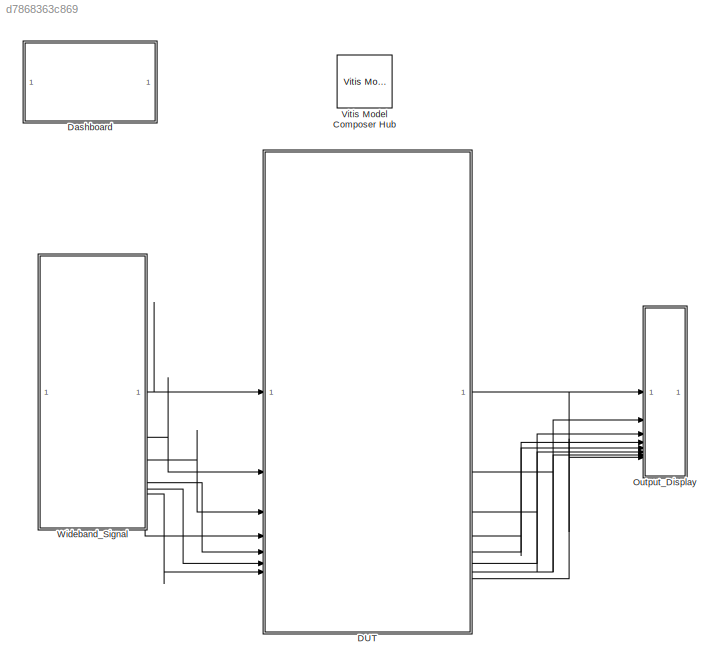
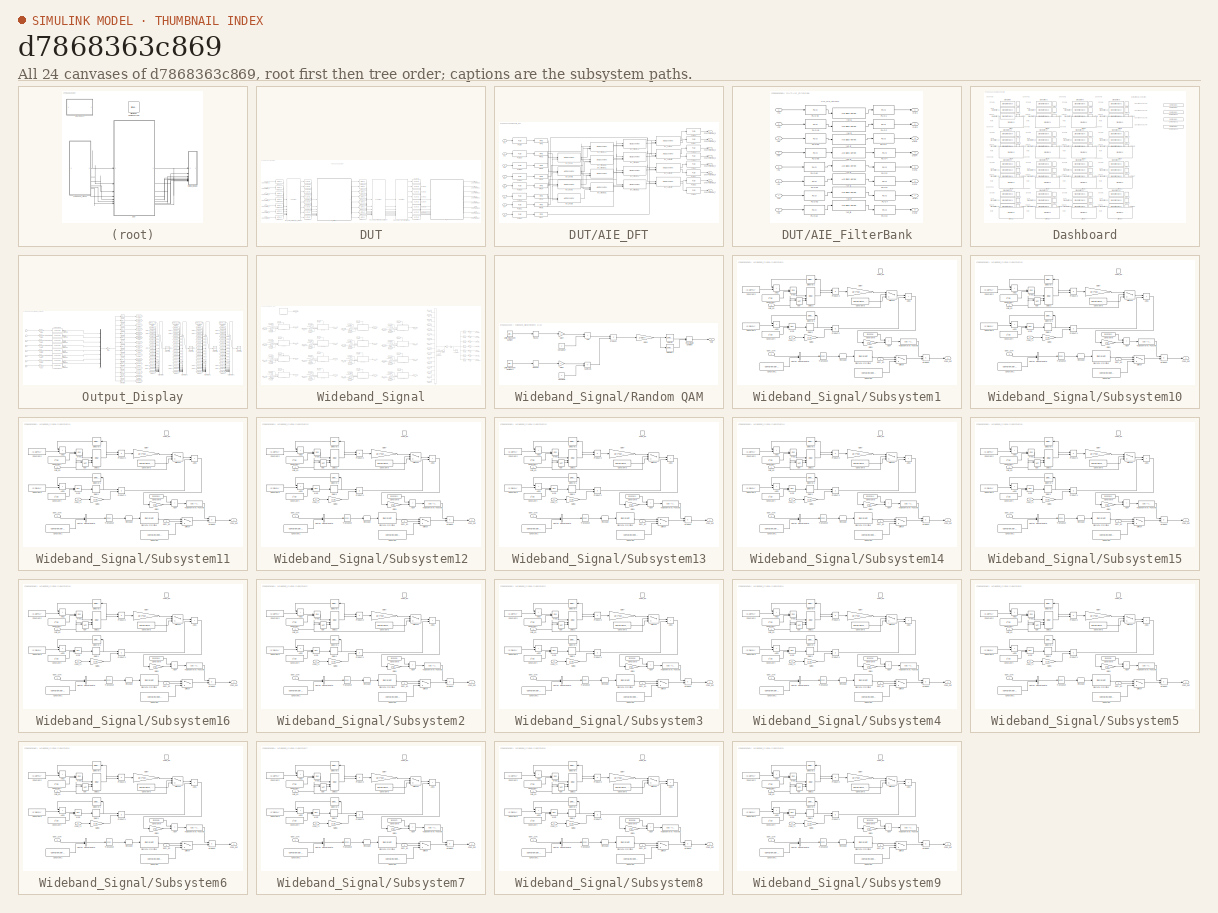
[diagram: thumbnail index - all 24 canvases of the model, root first then tree order]
MODEL slx_d7868363c869
KIND model
CONFIG AbsTol = auto
CONFIG EnableMultiTasking = off
CONFIG FixedStep = auto
CONFIG InitFcn = init;
CONFIG MaxStep = auto
CONFIG MinStep = auto
CONFIG RelTol = 1e-3
CONFIG SampleTimeConstraint = Unconstrained
CONFIG SolverName = VariableStepAuto
CONFIG StartTime = 0.0
CONFIG StopTime = 8192
BLOCK [SubSystem] DUT
BLOCK [Reference] DUT/AIE to HLS  REF=aieUtilities/AIE to HLS
  SourceBlock = aieUtilities/AIE to HLS
  SourceType = AIE to HLS
BLOCK [Reference] DUT/AIE to HLS1  REF=aieUtilities/AIE to HLS
  SourceBlock = aieUtilities/AIE to HLS
  SourceType = AIE to HLS
BLOCK [Reference] DUT/AIE to HLS10  REF=aieUtilities/AIE to HLS
  SourceBlock = aieUtilities/AIE to HLS
  SourceType = AIE to HLS
BLOCK [Reference] DUT/AIE to HLS11  REF=aieUtilities/AIE to HLS
  SourceBlock = aieUtilities/AIE to HLS
  SourceType = AIE to HLS
BLOCK [Reference] DUT/AIE to HLS12  REF=aieUtilities/AIE to HLS
  SourceBlock = aieUtilities/AIE to HLS
  SourceType = AIE to HLS
BLOCK [Reference] DUT/AIE to HLS13  REF=aieUtilities/AIE to HLS
  SourceBlock = aieUtilities/AIE to HLS
  SourceType = AIE to HLS
BLOCK [Reference] DUT/AIE to HLS14  REF=aieUtilities/AIE to HLS
  SourceBlock = aieUtilities/AIE to HLS
  SourceType = AIE to HLS
BLOCK [Reference] DUT/AIE to HLS2  REF=aieUtilities/AIE to HLS
  SourceBlock = aieUtilities/AIE to HLS
  SourceType = AIE to HLS
BLOCK [Reference] DUT/AIE to HLS3  REF=aieUtilities/AIE to HLS
  SourceBlock = aieUtilities/AIE to HLS
  SourceType = AIE to HLS
BLOCK [Reference] DUT/AIE to HLS4  REF=aieUtilities/AIE to HLS
  SourceBlock = aieUtilities/AIE to HLS
  SourceType = AIE to HLS
BLOCK [Reference] DUT/AIE to HLS5  REF=aieUtilities/AIE to HLS
  SourceBlock = aieUtilities/AIE to HLS
  SourceType = AIE to HLS
BLOCK [Reference] DUT/AIE to HLS6  REF=aieUtilities/AIE to HLS
  SourceBlock = aieUtilities/AIE to HLS
  SourceType = AIE to HLS
BLOCK [Reference] DUT/AIE to HLS7  REF=aieUtilities/AIE to HLS
  SourceBlock = aieUtilities/AIE to HLS
  SourceType = AIE to HLS
BLOCK [Reference] DUT/AIE to HLS8  REF=aieUtilities/AIE to HLS
  SourceBlock = aieUtilities/AIE to HLS
  SourceType = AIE to HLS
BLOCK [Reference] DUT/AIE to HLS9  REF=aieUtilities/AIE to HLS
  SourceBlock = aieUtilities/AIE to HLS
  SourceType = AIE to HLS
BLOCK [SubSystem] DUT/AIE_DFT
BLOCK [Outport] DUT/AIE_DFT/ChannelizerOut_0
BLOCK [Outport] DUT/AIE_DFT/ChannelizerOut_1
  Port = 2
BLOCK [Outport] DUT/AIE_DFT/ChannelizerOut_2
  Port = 3
BLOCK [Outport] DUT/AIE_DFT/ChannelizerOut_3
  Port = 4
BLOCK [Outport] DUT/AIE_DFT/ChannelizerOut_4
  Port = 5
BLOCK [Outport] DUT/AIE_DFT/ChannelizerOut_5
  Port = 6
BLOCK [Outport] DUT/AIE_DFT/ChannelizerOut_6
  Port = 7
BLOCK [Outport] DUT/AIE_DFT/ChannelizerOut_7
  Port = 8
BLOCK [Reference] DUT/AIE_DFT/FIFO  REF=aieBasic/FIFO
  SourceBlock = aieBasic/FIFO
  SourceType = FIFO
BLOCK [Reference] DUT/AIE_DFT/FIFO1  REF=aieBasic/FIFO
  SourceBlock = aieBasic/FIFO
  SourceType = FIFO
BLOCK [Reference] DUT/AIE_DFT/FIFO2  REF=aieBasic/FIFO
  SourceBlock = aieBasic/FIFO
  SourceType = FIFO
BLOCK [Reference] DUT/AIE_DFT/FIFO3  REF=aieBasic/FIFO
  SourceBlock = aieBasic/FIFO
  SourceType = FIFO
BLOCK [Reference] DUT/AIE_DFT/FIFO4  REF=aieBasic/FIFO
  SourceBlock = aieBasic/FIFO
  SourceType = FIFO
BLOCK [Reference] DUT/AIE_DFT/FIFO5  REF=aieBasic/FIFO
  SourceBlock = aieBasic/FIFO
  SourceType = FIFO
BLOCK [Reference] DUT/AIE_DFT/FIFO6  REF=aieBasic/FIFO
  SourceBlock = aieBasic/FIFO
  SourceType = FIFO
BLOCK [Reference] DUT/AIE_DFT/FIFO7  REF=aieBasic/FIFO
  SourceBlock = aieBasic/FIFO
  SourceType = FIFO
BLOCK [Inport] DUT/AIE_DFT/In1
BLOCK [Inport] DUT/AIE_DFT/In2
  Port = 2
BLOCK [Inport] DUT/AIE_DFT/In3
  Port = 3
BLOCK [Inport] DUT/AIE_DFT/In4
  Port = 4
BLOCK [Inport] DUT/AIE_DFT/In5
  Port = 5
BLOCK [Inport] DUT/AIE_DFT/In6
  Port = 6
BLOCK [Inport] DUT/AIE_DFT/In7
  Port = 7
BLOCK [Inport] DUT/AIE_DFT/In8
  Port = 8
BLOCK [Reference] DUT/AIE_DFT/PLIO10  REF=aieBasic/PLIO
  SourceBlock = aieBasic/PLIO
  SourceType = PLIO
BLOCK [Reference] DUT/AIE_DFT/PLIO11  REF=aieBasic/PLIO
  SourceBlock = aieBasic/PLIO
  SourceType = PLIO
BLOCK [Reference] DUT/AIE_DFT/PLIO12  REF=aieBasic/PLIO
  SourceBlock = aieBasic/PLIO
  SourceType = PLIO
BLOCK [Reference] DUT/AIE_DFT/PLIO13  REF=aieBasic/PLIO
  SourceBlock = aieBasic/PLIO
  SourceType = PLIO
BLOCK [Reference] DUT/AIE_DFT/PLIO14  REF=aieBasic/PLIO
  SourceBlock = aieBasic/PLIO
  SourceType = PLIO
BLOCK [Reference] DUT/AIE_DFT/PLIO15  REF=aieBasic/PLIO
  SourceBlock = aieBasic/PLIO
  SourceType = PLIO
BLOCK [Reference] DUT/AIE_DFT/PLIO16  REF=aieBasic/PLIO
  SourceBlock = aieBasic/PLIO
  SourceType = PLIO
BLOCK [Reference] DUT/AIE_DFT/PLIO17  REF=aieBasic/PLIO
  SourceBlock = aieBasic/PLIO
  SourceType = PLIO
BLOCK [Reference] DUT/AIE_DFT/PLIO18  REF=aieBasic/PLIO
  SourceBlock = aieBasic/PLIO
  SourceType = PLIO
BLOCK [Reference] DUT/AIE_DFT/PLIO19  REF=aieBasic/PLIO
  SourceBlock = aieBasic/PLIO
  SourceType = PLIO
BLOCK [Reference] DUT/AIE_DFT/PLIO20  REF=aieBasic/PLIO
  SourceBlock = aieBasic/PLIO
  SourceType = PLIO
BLOCK [Reference] DUT/AIE_DFT/PLIO21  REF=aieBasic/PLIO
  SourceBlock = aieBasic/PLIO
  SourceType = PLIO
BLOCK [Reference] DUT/AIE_DFT/PLIO22  REF=aieBasic/PLIO
  SourceBlock = aieBasic/PLIO
  SourceType = PLIO
BLOCK [Reference] DUT/AIE_DFT/PLIO23  REF=aieBasic/PLIO
  SourceBlock = aieBasic/PLIO
  SourceType = PLIO
BLOCK [Reference] DUT/AIE_DFT/PLIO24  REF=aieBasic/PLIO
  SourceBlock = aieBasic/PLIO
  SourceType = PLIO
BLOCK [Reference] DUT/AIE_DFT/PLIO9  REF=aieBasic/PLIO
  SourceBlock = aieBasic/PLIO
  SourceType = PLIO
BLOCK [Reference] DUT/AIE_DFT/run_inputA  REF=aieBasic/AIE Class Kernel
  SourceBlock = aieBasic/AIE Class Kernel
  SourceType = AIE Class Kernel Function
BLOCK [Reference] DUT/AIE_DFT/run_inputB  REF=aieBasic/AIE Class Kernel
  SourceBlock = aieBasic/AIE Class Kernel
  SourceType = AIE Class Kernel Function
BLOCK [Reference] DUT/AIE_DFT/run_inputC  REF=aieBasic/AIE Class Kernel
  SourceBlock = aieBasic/AIE Class Kernel
  SourceType = AIE Class Kernel Function
BLOCK [Reference] DUT/AIE_DFT/run_inputD  REF=aieBasic/AIE Class Kernel
  SourceBlock = aieBasic/AIE Class Kernel
  SourceType = AIE Class Kernel Function
BLOCK [Reference] DUT/AIE_DFT/run_middleA1  REF=aieBasic/AIE Class Kernel
  SourceBlock = aieBasic/AIE Class Kernel
  SourceType = AIE Class Kernel Function
BLOCK [Reference] DUT/AIE_DFT/run_middleA2  REF=aieBasic/AIE Class Kernel
  SourceBlock = aieBasic/AIE Class Kernel
  SourceType = AIE Class Kernel Function
BLOCK [Reference] DUT/AIE_DFT/run_middleB1  REF=aieBasic/AIE Class Kernel
  SourceBlock = aieBasic/AIE Class Kernel
  SourceType = AIE Class Kernel Function
BLOCK [Reference] DUT/AIE_DFT/run_middleB2  REF=aieBasic/AIE Class Kernel
  SourceBlock = aieBasic/AIE Class Kernel
  SourceType = AIE Class Kernel Function
BLOCK [Reference] DUT/AIE_DFT/run_middleC1  REF=aieBasic/AIE Class Kernel
  SourceBlock = aieBasic/AIE Class Kernel
  SourceType = AIE Class Kernel Function
BLOCK [Reference] DUT/AIE_DFT/run_middleC2  REF=aieBasic/AIE Class Kernel
  SourceBlock = aieBasic/AIE Class Kernel
  SourceType = AIE Class Kernel Function
BLOCK [Reference] DUT/AIE_DFT/run_middleD1  REF=aieBasic/AIE Class Kernel
  SourceBlock = aieBasic/AIE Class Kernel
  SourceType = AIE Class Kernel Function
BLOCK [Reference] DUT/AIE_DFT/run_middleD2  REF=aieBasic/AIE Class Kernel
  SourceBlock = aieBasic/AIE Class Kernel
  SourceType = AIE Class Kernel Function
BLOCK [Reference] DUT/AIE_DFT/run_outputA  REF=aieBasic/AIE Class Kernel
  SourceBlock = aieBasic/AIE Class Kernel
  SourceType = AIE Class Kernel Function
BLOCK [Reference] DUT/AIE_DFT/run_outputB  REF=aieBasic/AIE Class Kernel
  SourceBlock = aieBasic/AIE Class Kernel
  SourceType = AIE Class Kernel Function
BLOCK [Reference] DUT/AIE_DFT/run_outputC  REF=aieBasic/AIE Class Kernel
  SourceBlock = aieBasic/AIE Class Kernel
  SourceType = AIE Class Kernel Function
BLOCK [Reference] DUT/AIE_DFT/run_outputD  REF=aieBasic/AIE Class Kernel
  SourceBlock = aieBasic/AIE Class Kernel
  SourceType = AIE Class Kernel Function
BLOCK [SubSystem] DUT/AIE_FilterBank
BLOCK [Inport] DUT/AIE_FilterBank/In1
BLOCK [Inport] DUT/AIE_FilterBank/In2
  Port = 2
BLOCK [Inport] DUT/AIE_FilterBank/In3
  Port = 3
BLOCK [Inport] DUT/AIE_FilterBank/In4
  Port = 4
BLOCK [Inport] DUT/AIE_FilterBank/In5
  Port = 5
BLOCK [Inport] DUT/AIE_FilterBank/In6
  Port = 6
BLOCK [Inport] DUT/AIE_FilterBank/In7
  Port = 7
BLOCK [Inport] DUT/AIE_FilterBank/In8
  Port = 8
BLOCK [Outport] DUT/AIE_FilterBank/Out1
BLOCK [Outport] DUT/AIE_FilterBank/Out2
  Port = 2
BLOCK [Outport] DUT/AIE_FilterBank/Out3
  Port = 3
BLOCK [Outport] DUT/AIE_FilterBank/Out4
  Port = 4
BLOCK [Outport] DUT/AIE_FilterBank/Out5
  Port = 5
BLOCK [Outport] DUT/AIE_FilterBank/Out6
  Port = 6
BLOCK [Outport] DUT/AIE_FilterBank/Out7
  Port = 7
BLOCK [Outport] DUT/AIE_FilterBank/Out8
  Port = 8
BLOCK [Reference] DUT/AIE_FilterBank/PLIO1  REF=aieBasic/PLIO
  SourceBlock = aieBasic/PLIO
  SourceType = PLIO
BLOCK [Reference] DUT/AIE_FilterBank/PLIO2  REF=aieBasic/PLIO
  SourceBlock = aieBasic/PLIO
  SourceType = PLIO
BLOCK [Reference] DUT/AIE_FilterBank/PLIO3  REF=aieBasic/PLIO
  SourceBlock = aieBasic/PLIO
  SourceType = PLIO
BLOCK [Reference] DUT/AIE_FilterBank/PLIO4  REF=aieBasic/PLIO
  SourceBlock = aieBasic/PLIO
  SourceType = PLIO
BLOCK [Reference] DUT/AIE_FilterBank/PLIO48  REF=aieBasic/PLIO
  SourceBlock = aieBasic/PLIO
  SourceType = PLIO
BLOCK [Reference] DUT/AIE_FilterBank/PLIO49  REF=aieBasic/PLIO
  SourceBlock = aieBasic/PLIO
  SourceType = PLIO
BLOCK [Reference] DUT/AIE_FilterBank/PLIO5  REF=aieBasic/PLIO
  SourceBlock = aieBasic/PLIO
  SourceType = PLIO
BLOCK [Reference] DUT/AIE_FilterBank/PLIO52  REF=aieBasic/PLIO
  SourceBlock = aieBasic/PLIO
  SourceType = PLIO
BLOCK [Reference] DUT/AIE_FilterBank/PLIO59  REF=aieBasic/PLIO
  SourceBlock = aieBasic/PLIO
  SourceType = PLIO
BLOCK [Reference] DUT/AIE_FilterBank/PLIO6  REF=aieBasic/PLIO
  SourceBlock = aieBasic/PLIO
  SourceType = PLIO
BLOCK [Reference] DUT/AIE_FilterBank/PLIO60  REF=aieBasic/PLIO
  SourceBlock = aieBasic/PLIO
  SourceType = PLIO
BLOCK [Reference] DUT/AIE_FilterBank/PLIO61  REF=aieBasic/PLIO
  SourceBlock = aieBasic/PLIO
  SourceType = PLIO
BLOCK [Reference] DUT/AIE_FilterBank/PLIO62  REF=aieBasic/PLIO
  SourceBlock = aieBasic/PLIO
  SourceType = PLIO
BLOCK [Reference] DUT/AIE_FilterBank/PLIO63  REF=aieBasic/PLIO
  SourceBlock = aieBasic/PLIO
  SourceType = PLIO
BLOCK [Reference] DUT/AIE_FilterBank/PLIO7  REF=aieBasic/PLIO
  SourceBlock = aieBasic/PLIO
  SourceType = PLIO
BLOCK [Reference] DUT/AIE_FilterBank/PLIO8  REF=aieBasic/PLIO
  SourceBlock = aieBasic/PLIO
  SourceType = PLIO
BLOCK [Reference] DUT/AIE_FilterBank/run_i1  REF=aieBasic/AIE Class Kernel
  SourceBlock = aieBasic/AIE Class Kernel
  SourceType = AIE Class Kernel Function
BLOCK [Reference] DUT/AIE_FilterBank/run_i2  REF=aieBasic/AIE Class Kernel
  SourceBlock = aieBasic/AIE Class Kernel
  SourceType = AIE Class Kernel Function
BLOCK [Reference] DUT/AIE_FilterBank/run_i3  REF=aieBasic/AIE Class Kernel
  SourceBlock = aieBasic/AIE Class Kernel
  SourceType = AIE Class Kernel Function
BLOCK [Reference] DUT/AIE_FilterBank/run_i4  REF=aieBasic/AIE Class Kernel
  SourceBlock = aieBasic/AIE Class Kernel
  SourceType = AIE Class Kernel Function
BLOCK [Reference] DUT/AIE_FilterBank/run_i5  REF=aieBasic/AIE Class Kernel
  SourceBlock = aieBasic/AIE Class Kernel
  SourceType = AIE Class Kernel Function
BLOCK [Reference] DUT/AIE_FilterBank/run_i6  REF=aieBasic/AIE Class Kernel
  SourceBlock = aieBasic/AIE Class Kernel
  SourceType = AIE Class Kernel Function
BLOCK [Reference] DUT/AIE_FilterBank/run_i7  REF=aieBasic/AIE Class Kernel
  SourceBlock = aieBasic/AIE Class Kernel
  SourceType = AIE Class Kernel Function
BLOCK [Reference] DUT/AIE_FilterBank/run_i8  REF=aieBasic/AIE Class Kernel
  SourceBlock = aieBasic/AIE Class Kernel
  SourceType = AIE Class Kernel Function
BLOCK [Inport] DUT/ChannelizerIn_0
BLOCK [Inport] DUT/ChannelizerIn_1
  Port = 2
BLOCK [Inport] DUT/ChannelizerIn_2
  Port = 3
BLOCK [Inport] DUT/ChannelizerIn_3
  Port = 4
BLOCK [Inport] DUT/ChannelizerIn_4
  Port = 5
BLOCK [Inport] DUT/ChannelizerIn_5
  Port = 6
BLOCK [Inport] DUT/ChannelizerIn_6
  Port = 7
BLOCK [Outport] DUT/ChannelizerOut_0
BLOCK [Outport] DUT/ChannelizerOut_1
  Port = 2
BLOCK [Outport] DUT/ChannelizerOut_2
  Port = 3
BLOCK [Outport] DUT/ChannelizerOut_3
  Port = 4
BLOCK [Outport] DUT/ChannelizerOut_4
  Port = 5
BLOCK [Outport] DUT/ChannelizerOut_5
  Port = 6
BLOCK [Outport] DUT/ChannelizerOut_6
  Port = 7
BLOCK [Outport] DUT/ChannelizerOut_7
  Port = 8
BLOCK [Reference] DUT/HLS to AIE  REF=aieUtilities/HLS to AIE
  SourceBlock = aieUtilities/HLS to AIE
  SourceType = HLS to AIE
BLOCK [Reference] DUT/HLS to AIE1  REF=aieUtilities/HLS to AIE
  SourceBlock = aieUtilities/HLS to AIE
  SourceType = HLS to AIE
BLOCK [Reference] DUT/HLS to AIE10  REF=aieUtilities/HLS to AIE
  SourceBlock = aieUtilities/HLS to AIE
  SourceType = HLS to AIE
BLOCK [Reference] DUT/HLS to AIE11  REF=aieUtilities/HLS to AIE
  SourceBlock = aieUtilities/HLS to AIE
  SourceType = HLS to AIE
BLOCK [Reference] DUT/HLS to AIE12  REF=aieUtilities/HLS to AIE
  SourceBlock = aieUtilities/HLS to AIE
  SourceType = HLS to AIE
BLOCK [Reference] DUT/HLS to AIE13  REF=aieUtilities/HLS to AIE
  SourceBlock = aieUtilities/HLS to AIE
  SourceType = HLS to AIE
BLOCK [Reference] DUT/HLS to AIE14  REF=aieUtilities/HLS to AIE
  SourceBlock = aieUtilities/HLS to AIE
  SourceType = HLS to AIE
BLOCK [Reference] DUT/HLS to AIE15  REF=aieUtilities/HLS to AIE
  SourceBlock = aieUtilities/HLS to AIE
  SourceType = HLS to AIE
BLOCK [Reference] DUT/HLS to AIE2  REF=aieUtilities/HLS to AIE
  SourceBlock = aieUtilities/HLS to AIE
  SourceType = HLS to AIE
BLOCK [Reference] DUT/HLS to AIE3  REF=aieUtilities/HLS to AIE
  SourceBlock = aieUtilities/HLS to AIE
  SourceType = HLS to AIE
BLOCK [Reference] DUT/HLS to AIE4  REF=aieUtilities/HLS to AIE
  SourceBlock = aieUtilities/HLS to AIE
  SourceType = HLS to AIE
BLOCK [Reference] DUT/HLS to AIE5  REF=aieUtilities/HLS to AIE
  SourceBlock = aieUtilities/HLS to AIE
  SourceType = HLS to AIE
BLOCK [Reference] DUT/HLS to AIE6  REF=aieUtilities/HLS to AIE
  SourceBlock = aieUtilities/HLS to AIE
  SourceType = HLS to AIE
BLOCK [Reference] DUT/HLS to AIE7  REF=aieUtilities/HLS to AIE
  SourceBlock = aieUtilities/HLS to AIE
  SourceType = HLS to AIE
BLOCK [Reference] DUT/HLS to AIE8  REF=aieUtilities/HLS to AIE
  SourceBlock = aieUtilities/HLS to AIE
  SourceType = HLS to AIE
BLOCK [Reference] DUT/HLS to AIE9  REF=aieUtilities/HLS to AIE
  SourceBlock = aieUtilities/HLS to AIE
  SourceType = HLS to AIE
BLOCK [Reference] DUT/m16_ssr8_cyclic_shift_wrapper  REF=hlsBasic/HLS Kernel
  SourceBlock = hlsBasic/HLS Kernel
  SourceType = HLS Kernel Function
BLOCK [Reference] DUT/m16_ssr8_permute_fb_i_wrapper  REF=hlsBasic/HLS Kernel
  SourceBlock = hlsBasic/HLS Kernel
  SourceType = HLS Kernel Function
BLOCK [Reference] DUT/m16_ssr8_permute_fb_o_wrapper  REF=hlsBasic/HLS Kernel
  SourceBlock = hlsBasic/HLS Kernel
  SourceType = HLS Kernel Function
BLOCK [SubSystem] Dashboard
  Permissions = ReadOnly
BLOCK [ComboBox] Dashboard/Combo Box
  LabelPosition = Hide
  SelectedLabel = Channel 1
BLOCK [ComboBox] Dashboard/Combo Box1
  LabelPosition = Hide
  SelectedLabel = Channel 2
BLOCK [ComboBox] Dashboard/Combo Box2
  LabelPosition = Hide
  SelectedLabel = Channel 5
BLOCK [ComboBox] Dashboard/Combo Box3
  LabelPosition = Hide
  SelectedLabel = Channel 6
BLOCK [LampBlock] Dashboard/Lamp
  LabelPosition = Hide
BLOCK [LampBlock] Dashboard/Lamp1
  LabelPosition = Hide
BLOCK [LampBlock] Dashboard/Lamp10
  LabelPosition = Hide
BLOCK [LampBlock] Dashboard/Lamp11
  LabelPosition = Hide
BLOCK [LampBlock] Dashboard/Lamp12
  LabelPosition = Hide
BLOCK [LampBlock] Dashboard/Lamp13
  LabelPosition = Hide
BLOCK [LampBlock] Dashboard/Lamp14
  LabelPosition = Hide
BLOCK [LampBlock] Dashboard/Lamp15
  LabelPosition = Hide
BLOCK [LampBlock] Dashboard/Lamp16
  LabelPosition = Hide
BLOCK [LampBlock] Dashboard/Lamp17
  LabelPosition = Hide
BLOCK [LampBlock] Dashboard/Lamp18
  LabelPosition = Hide
BLOCK [LampBlock] Dashboard/Lamp19
  LabelPosition = Hide
BLOCK [LampBlock] Dashboard/Lamp2
  LabelPosition = Hide
BLOCK [LampBlock] Dashboard/Lamp20
  LabelPosition = Hide
BLOCK [LampBlock] Dashboard/Lamp21
  LabelPosition = Hide
BLOCK [LampBlock] Dashboard/Lamp22
  LabelPosition = Hide
BLOCK [LampBlock] Dashboard/Lamp23
  LabelPosition = Hide
BLOCK [LampBlock] Dashboard/Lamp24
  LabelPosition = Hide
BLOCK [LampBlock] Dashboard/Lamp25
  LabelPosition = Hide
BLOCK [LampBlock] Dashboard/Lamp26
  LabelPosition = Hide
BLOCK [LampBlock] Dashboard/Lamp27
  LabelPosition = Hide
BLOCK [LampBlock] Dashboard/Lamp28
  LabelPosition = Hide
BLOCK [LampBlock] Dashboard/Lamp29
  LabelPosition = Hide
BLOCK [LampBlock] Dashboard/Lamp3
  LabelPosition = Hide
BLOCK [LampBlock] Dashboard/Lamp30
  LabelPosition = Hide
BLOCK [LampBlock] Dashboard/Lamp31
  LabelPosition = Hide
BLOCK [LampBlock] Dashboard/Lamp32
  LabelPosition = Hide
BLOCK [LampBlock] Dashboard/Lamp33
  LabelPosition = Hide
BLOCK [LampBlock] Dashboard/Lamp34
  LabelPosition = Hide
BLOCK [LampBlock] Dashboard/Lamp35
  LabelPosition = Hide
BLOCK [LampBlock] Dashboard/Lamp36
  LabelPosition = Hide
BLOCK [LampBlock] Dashboard/Lamp37
  LabelPosition = Hide
BLOCK [LampBlock] Dashboard/Lamp38
  LabelPosition = Hide
BLOCK [LampBlock] Dashboard/Lamp39
  LabelPosition = Hide
BLOCK [LampBlock] Dashboard/Lamp4
  LabelPosition = Hide
BLOCK [LampBlock] Dashboard/Lamp40
  LabelPosition = Hide
BLOCK [LampBlock] Dashboard/Lamp41
  LabelPosition = Hide
BLOCK [LampBlock] Dashboard/Lamp42
  LabelPosition = Hide
BLOCK [LampBlock] Dashboard/Lamp43
  LabelPosition = Hide
BLOCK [LampBlock] Dashboard/Lamp44
  LabelPosition = Hide
BLOCK [LampBlock] Dashboard/Lamp45
  LabelPosition = Hide
BLOCK [LampBlock] Dashboard/Lamp46
  LabelPosition = Hide
BLOCK [LampBlock] Dashboard/Lamp47
  LabelPosition = Hide
BLOCK [LampBlock] Dashboard/Lamp5
  LabelPosition = Hide
BLOCK [LampBlock] Dashboard/Lamp6
  LabelPosition = Hide
BLOCK [LampBlock] Dashboard/Lamp7
  LabelPosition = Hide
BLOCK [LampBlock] Dashboard/Lamp8
  LabelPosition = Hide
BLOCK [LampBlock] Dashboard/Lamp9
  LabelPosition = Hide
BLOCK [SliderBlock] Dashboard/Slider
  LabelPosition = Hide
  ScaleMax = 1
  ScaleMin = -1
BLOCK [SliderSwitchBlock] Dashboard/Slider Switch
  LabelPosition = Hide
BLOCK [SliderSwitchBlock] Dashboard/Slider Switch1
  LabelPosition = Hide
BLOCK [SliderSwitchBlock] Dashboard/Slider Switch10
  LabelPosition = Hide
BLOCK [SliderSwitchBlock] Dashboard/Slider Switch11
  LabelPosition = Hide
BLOCK [SliderSwitchBlock] Dashboard/Slider Switch12
  LabelPosition = Hide
BLOCK [SliderSwitchBlock] Dashboard/Slider Switch13
  LabelPosition = Hide
BLOCK [SliderSwitchBlock] Dashboard/Slider Switch14
  LabelPosition = Hide
BLOCK [SliderSwitchBlock] Dashboard/Slider Switch15
  LabelPosition = Hide
BLOCK [SliderSwitchBlock] Dashboard/Slider Switch16
  LabelPosition = Hide
BLOCK [SliderSwitchBlock] Dashboard/Slider Switch17
  LabelPosition = Hide
BLOCK [SliderSwitchBlock] Dashboard/Slider Switch18
  LabelPosition = Hide
BLOCK [SliderSwitchBlock] Dashboard/Slider Switch19
  LabelPosition = Hide
BLOCK [SliderSwitchBlock] Dashboard/Slider Switch2
  LabelPosition = Hide
BLOCK [SliderSwitchBlock] Dashboard/Slider Switch20
  LabelPosition = Hide
BLOCK [SliderSwitchBlock] Dashboard/Slider Switch21
  LabelPosition = Hide
BLOCK [SliderSwitchBlock] Dashboard/Slider Switch22
  LabelPosition = Hide
BLOCK [SliderSwitchBlock] Dashboard/Slider Switch23
  LabelPosition = Hide
BLOCK [SliderSwitchBlock] Dashboard/Slider Switch24
  LabelPosition = Hide
BLOCK [SliderSwitchBlock] Dashboard/Slider Switch25
  LabelPosition = Hide
BLOCK [SliderSwitchBlock] Dashboard/Slider Switch26
  LabelPosition = Hide
BLOCK [SliderSwitchBlock] Dashboard/Slider Switch27
  LabelPosition = Hide
BLOCK [SliderSwitchBlock] Dashboard/Slider Switch28
  LabelPosition = Hide
BLOCK [SliderSwitchBlock] Dashboard/Slider Switch29
  LabelPosition = Hide
BLOCK [SliderSwitchBlock] Dashboard/Slider Switch3
  LabelPosition = Hide
BLOCK [SliderSwitchBlock] Dashboard/Slider Switch30
  LabelPosition = Hide
BLOCK [SliderSwitchBlock] Dashboard/Slider Switch31
  LabelPosition = Hide
BLOCK [SliderSwitchBlock] Dashboard/Slider Switch32
  LabelPosition = Hide
BLOCK [SliderSwitchBlock] Dashboard/Slider Switch33
  LabelPosition = Hide
BLOCK [SliderSwitchBlock] Dashboard/Slider Switch34
  LabelPosition = Hide
BLOCK [SliderSwitchBlock] Dashboard/Slider Switch35
  LabelPosition = Hide
BLOCK [SliderSwitchBlock] Dashboard/Slider Switch36
  LabelPosition = Hide
BLOCK [SliderSwitchBlock] Dashboard/Slider Switch37
  LabelPosition = Hide
BLOCK [SliderSwitchBlock] Dashboard/Slider Switch38
  LabelPosition = Hide
BLOCK [SliderSwitchBlock] Dashboard/Slider Switch39
  LabelPosition = Hide
BLOCK [SliderSwitchBlock] Dashboard/Slider Switch4
  LabelPosition = Hide
BLOCK [SliderSwitchBlock] Dashboard/Slider Switch40
  LabelPosition = Hide
BLOCK [SliderSwitchBlock] Dashboard/Slider Switch41
  LabelPosition = Hide
BLOCK [SliderSwitchBlock] Dashboard/Slider Switch42
  LabelPosition = Hide
BLOCK [SliderSwitchBlock] Dashboard/Slider Switch43
  LabelPosition = Hide
BLOCK [SliderSwitchBlock] Dashboard/Slider Switch44
  LabelPosition = Hide
BLOCK [SliderSwitchBlock] Dashboard/Slider Switch45
  LabelPosition = Hide
BLOCK [SliderSwitchBlock] Dashboard/Slider Switch46
  LabelPosition = Hide
BLOCK [SliderSwitchBlock] Dashboard/Slider Switch47
  LabelPosition = Hide
BLOCK [SliderSwitchBlock] Dashboard/Slider Switch5
  LabelPosition = Hide
BLOCK [SliderSwitchBlock] Dashboard/Slider Switch6
  LabelPosition = Hide
BLOCK [SliderSwitchBlock] Dashboard/Slider Switch7
  LabelPosition = Hide
BLOCK [SliderSwitchBlock] Dashboard/Slider Switch8
  LabelPosition = Hide
BLOCK [SliderSwitchBlock] Dashboard/Slider Switch9
  LabelPosition = Hide
BLOCK [SliderBlock] Dashboard/Slider1
  LabelPosition = Hide
  ScaleMax = 1
  ScaleMin = -1
BLOCK [SliderBlock] Dashboard/Slider10
  LabelPosition = Hide
  ScaleMax = 1
  ScaleMin = -1
BLOCK [SliderBlock] Dashboard/Slider11
  LabelPosition = Hide
  ScaleMax = 1
  ScaleMin = -1
BLOCK [SliderBlock] Dashboard/Slider12
  LabelPosition = Hide
  ScaleMax = 1
  ScaleMin = -1
BLOCK [SliderBlock] Dashboard/Slider13
  LabelPosition = Hide
  ScaleMax = 1
  ScaleMin = -1
BLOCK [SliderBlock] Dashboard/Slider14
  LabelPosition = Hide
  ScaleMax = 1
  ScaleMin = -1
BLOCK [SliderBlock] Dashboard/Slider15
  LabelPosition = Hide
  ScaleMax = 1
  ScaleMin = -1
BLOCK [SliderBlock] Dashboard/Slider2
  LabelPosition = Hide
  ScaleMax = 1
  ScaleMin = -1
BLOCK [SliderBlock] Dashboard/Slider3
  LabelPosition = Hide
  ScaleMax = 1
  ScaleMin = -1
BLOCK [SliderBlock] Dashboard/Slider4
  LabelPosition = Hide
  ScaleMax = 1
  ScaleMin = -1
BLOCK [SliderBlock] Dashboard/Slider5
  LabelPosition = Hide
  ScaleMax = 1
  ScaleMin = -1
BLOCK [SliderBlock] Dashboard/Slider6
  LabelPosition = Hide
  ScaleMax = 1
  ScaleMin = -1
BLOCK [SliderBlock] Dashboard/Slider7
  LabelPosition = Hide
  ScaleMax = 1
  ScaleMin = -1
BLOCK [SliderBlock] Dashboard/Slider8
  LabelPosition = Hide
  ScaleMax = 1
  ScaleMin = -1
BLOCK [SliderBlock] Dashboard/Slider9
  LabelPosition = Hide
  ScaleMax = 1
  ScaleMin = -1
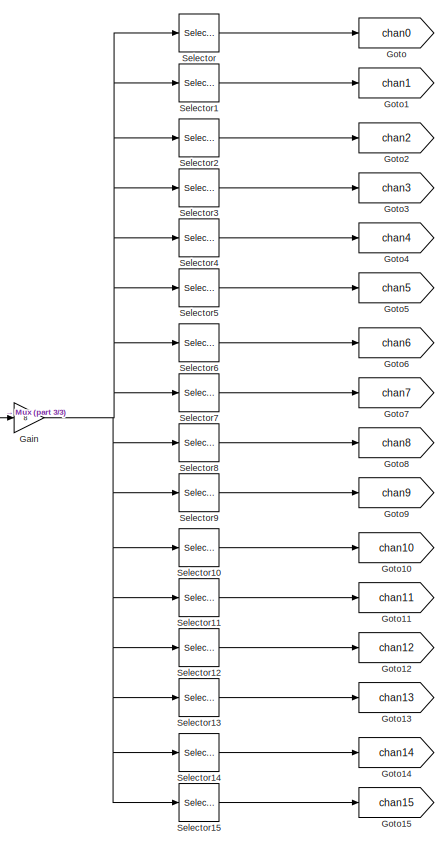
[diagram: Output_Display - part 1/3, center side, full height]
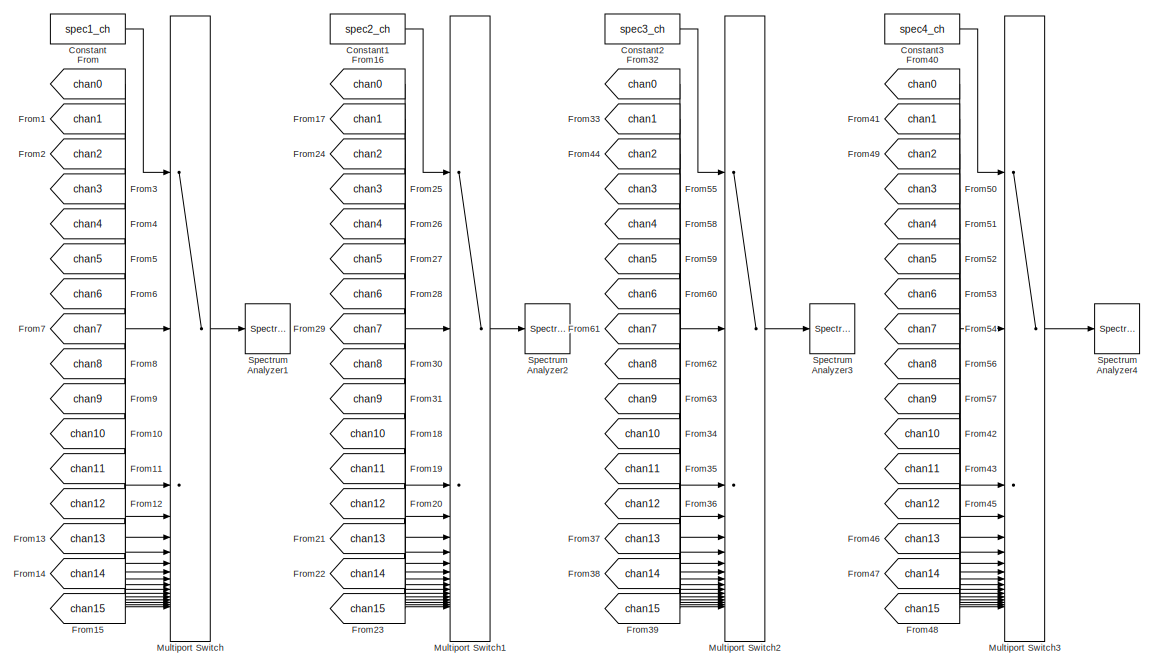
[diagram: Output_Display - part 2/3, right side, full height]
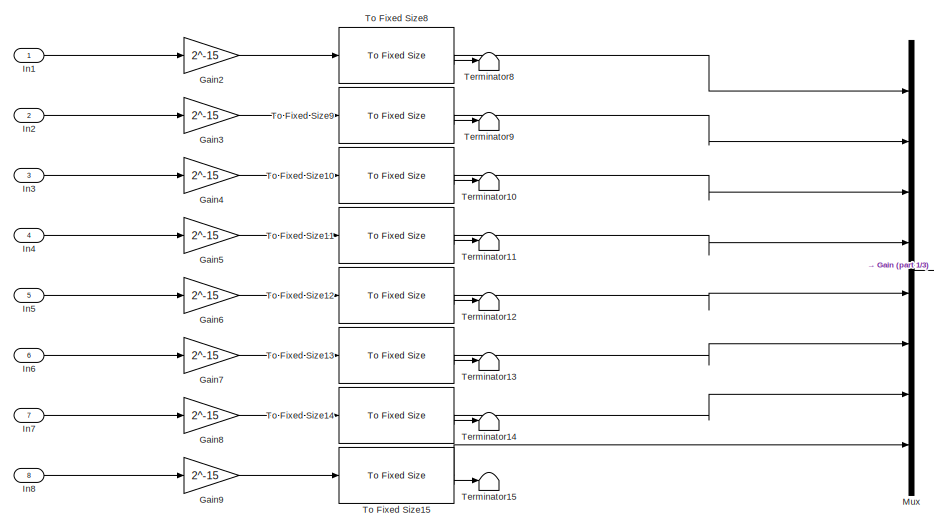
[diagram: Output_Display - part 3/3, middle left region]
BLOCK [SubSystem] Output_Display
BLOCK [Constant] Output_Display/Constant
  SampleTime = -1
  Value = spec1_ch
BLOCK [Constant] Output_Display/Constant1
  SampleTime = -1
  Value = spec2_ch
BLOCK [Constant] Output_Display/Constant2
  SampleTime = -1
  Value = spec3_ch
BLOCK [Constant] Output_Display/Constant3
  SampleTime = -1
  Value = spec4_ch
BLOCK [From] Output_Display/From
  GotoTag = chan0
BLOCK [From] Output_Display/From1
  GotoTag = chan1
BLOCK [From] Output_Display/From10
  GotoTag = chan10
BLOCK [From] Output_Display/From11
  GotoTag = chan11
BLOCK [From] Output_Display/From12
  GotoTag = chan12
BLOCK [From] Output_Display/From13
  GotoTag = chan13
BLOCK [From] Output_Display/From14
  GotoTag = chan14
BLOCK [From] Output_Display/From15
  GotoTag = chan15
BLOCK [From] Output_Display/From16
  GotoTag = chan0
BLOCK [From] Output_Display/From17
  GotoTag = chan1
BLOCK [From] Output_Display/From18
  GotoTag = chan10
BLOCK [From] Output_Display/From19
  GotoTag = chan11
BLOCK [From] Output_Display/From2
  GotoTag = chan2
BLOCK [From] Output_Display/From20
  GotoTag = chan12
BLOCK [From] Output_Display/From21
  GotoTag = chan13
BLOCK [From] Output_Display/From22
  GotoTag = chan14
BLOCK [From] Output_Display/From23
  GotoTag = chan15
BLOCK [From] Output_Display/From24
  GotoTag = chan2
BLOCK [From] Output_Display/From25
  GotoTag = chan3
BLOCK [From] Output_Display/From26
  GotoTag = chan4
BLOCK [From] Output_Display/From27
  GotoTag = chan5
BLOCK [From] Output_Display/From28
  GotoTag = chan6
BLOCK [From] Output_Display/From29
  GotoTag = chan7
BLOCK [From] Output_Display/From3
  GotoTag = chan3
BLOCK [From] Output_Display/From30
  GotoTag = chan8
BLOCK [From] Output_Display/From31
  GotoTag = chan9
BLOCK [From] Output_Display/From32
  GotoTag = chan0
BLOCK [From] Output_Display/From33
  GotoTag = chan1
BLOCK [From] Output_Display/From34
  GotoTag = chan10
BLOCK [From] Output_Display/From35
  GotoTag = chan11
BLOCK [From] Output_Display/From36
  GotoTag = chan12
BLOCK [From] Output_Display/From37
  GotoTag = chan13
BLOCK [From] Output_Display/From38
  GotoTag = chan14
BLOCK [From] Output_Display/From39
  GotoTag = chan15
BLOCK [From] Output_Display/From4
  GotoTag = chan4
BLOCK [From] Output_Display/From40
  GotoTag = chan0
BLOCK [From] Output_Display/From41
  GotoTag = chan1
BLOCK [From] Output_Display/From42
  GotoTag = chan10
BLOCK [From] Output_Display/From43
  GotoTag = chan11
BLOCK [From] Output_Display/From44
  GotoTag = chan2
BLOCK [From] Output_Display/From45
  GotoTag = chan12
BLOCK [From] Output_Display/From46
  GotoTag = chan13
BLOCK [From] Output_Display/From47
  GotoTag = chan14
BLOCK [From] Output_Display/From48
  GotoTag = chan15
BLOCK [From] Output_Display/From49
  GotoTag = chan2
BLOCK [From] Output_Display/From5
  GotoTag = chan5
BLOCK [From] Output_Display/From50
  GotoTag = chan3
BLOCK [From] Output_Display/From51
  GotoTag = chan4
BLOCK [From] Output_Display/From52
  GotoTag = chan5
BLOCK [From] Output_Display/From53
  GotoTag = chan6
BLOCK [From] Output_Display/From54
  GotoTag = chan7
BLOCK [From] Output_Display/From55
  GotoTag = chan3
BLOCK [From] Output_Display/From56
  GotoTag = chan8
BLOCK [From] Output_Display/From57
  GotoTag = chan9
BLOCK [From] Output_Display/From58
  GotoTag = chan4
BLOCK [From] Output_Display/From59
  GotoTag = chan5
BLOCK [From] Output_Display/From6
  GotoTag = chan6
BLOCK [From] Output_Display/From60
  GotoTag = chan6
BLOCK [From] Output_Display/From61
  GotoTag = chan7
BLOCK [From] Output_Display/From62
  GotoTag = chan8
BLOCK [From] Output_Display/From63
  GotoTag = chan9
BLOCK [From] Output_Display/From7
  GotoTag = chan7
BLOCK [From] Output_Display/From8
  GotoTag = chan8
BLOCK [From] Output_Display/From9
  GotoTag = chan9
BLOCK [Gain] Output_Display/Gain
  Gain = 8
BLOCK [Gain] Output_Display/Gain2
  Gain = 2^-15
  OutDataTypeStr = double
BLOCK [Gain] Output_Display/Gain3
  Gain = 2^-15
  OutDataTypeStr = double
BLOCK [Gain] Output_Display/Gain4
  Gain = 2^-15
  OutDataTypeStr = double
BLOCK [Gain] Output_Display/Gain5
  Gain = 2^-15
  OutDataTypeStr = double
BLOCK [Gain] Output_Display/Gain6
  Gain = 2^-15
  OutDataTypeStr = double
BLOCK [Gain] Output_Display/Gain7
  Gain = 2^-15
  OutDataTypeStr = double
BLOCK [Gain] Output_Display/Gain8
  Gain = 2^-15
  OutDataTypeStr = double
BLOCK [Gain] Output_Display/Gain9
  Gain = 2^-15
  OutDataTypeStr = double
BLOCK [Goto] Output_Display/Goto
  GotoTag = chan0
BLOCK [Goto] Output_Display/Goto1
  GotoTag = chan1
BLOCK [Goto] Output_Display/Goto10
  GotoTag = chan10
BLOCK [Goto] Output_Display/Goto11
  GotoTag = chan11
BLOCK [Goto] Output_Display/Goto12
  GotoTag = chan12
BLOCK [Goto] Output_Display/Goto13
  GotoTag = chan13
BLOCK [Goto] Output_Display/Goto14
  GotoTag = chan14
BLOCK [Goto] Output_Display/Goto15
  GotoTag = chan15
BLOCK [Goto] Output_Display/Goto2
  GotoTag = chan2
BLOCK [Goto] Output_Display/Goto3
  GotoTag = chan3
BLOCK [Goto] Output_Display/Goto4
  GotoTag = chan4
BLOCK [Goto] Output_Display/Goto5
  GotoTag = chan5
BLOCK [Goto] Output_Display/Goto6
  GotoTag = chan6
BLOCK [Goto] Output_Display/Goto7
  GotoTag = chan7
BLOCK [Goto] Output_Display/Goto8
  GotoTag = chan8
BLOCK [Goto] Output_Display/Goto9
  GotoTag = chan9
BLOCK [Inport] Output_Display/In1
BLOCK [Inport] Output_Display/In2
  Port = 2
BLOCK [Inport] Output_Display/In3
  Port = 3
BLOCK [Inport] Output_Display/In4
  Port = 4
BLOCK [Inport] Output_Display/In5
  Port = 5
BLOCK [Inport] Output_Display/In6
  Port = 6
BLOCK [Inport] Output_Display/In7
  Port = 7
BLOCK [Inport] Output_Display/In8
  Port = 8
BLOCK [MultiPortSwitch] Output_Display/Multiport Switch
  DataPortOrder = Zero-based contiguous
  InputSameDT = off
  Inputs = 16
  SaturateOnIntegerOverflow = off
  zeroidx = on
BLOCK [MultiPortSwitch] Output_Display/Multiport Switch1
  DataPortOrder = Zero-based contiguous
  InputSameDT = off
  Inputs = 16
  SaturateOnIntegerOverflow = off
  zeroidx = on
BLOCK [MultiPortSwitch] Output_Display/Multiport Switch2
  DataPortOrder = Zero-based contiguous
  InputSameDT = off
  Inputs = 16
  SaturateOnIntegerOverflow = off
  zeroidx = on
BLOCK [MultiPortSwitch] Output_Display/Multiport Switch3
  DataPortOrder = Zero-based contiguous
  InputSameDT = off
  Inputs = 16
  SaturateOnIntegerOverflow = off
  zeroidx = on
BLOCK [Mux] Output_Display/Mux
  DisplayOption = bar
  Inputs = 8
BLOCK [Selector] Output_Display/Selector
  IndexOptions = Index vector (dialog)
  Indices = reshape([(1:4:(4*N))' ((4*N+1):4:(8*N))']',2*N,1)
  InputPortWidth = 32*N
  OutputSizes = 1
BLOCK [Selector] Output_Display/Selector1
  IndexOptions = Index vector (dialog)
  Indices = reshape([(2:4:(4*N))' ((4*N+2):4:(8*N))']',2*N,1)
  InputPortWidth = 32*N
  OutputSizes = 1
BLOCK [Selector] Output_Display/Selector10
  IndexOptions = Index vector (dialog)
  Indices = reshape([((16*N+3):4:(20*N))' ((20*N+3):4:(24*N))']',2*N,1)
  InputPortWidth = 32*N
  OutputSizes = 1
BLOCK [Selector] Output_Display/Selector11
  IndexOptions = Index vector (dialog)
  Indices = reshape([((16*N+4):4:(20*N))' ((20*N+4):4:(24*N))']',2*N,1)
  InputPortWidth = 32*N
  OutputSizes = 1
BLOCK [Selector] Output_Display/Selector12
  IndexOptions = Index vector (dialog)
  Indices = reshape([((24*N+1):4:(28*N))' ((28*N+1):4:(32*N))']',2*N,1)
  InputPortWidth = 32*N
  OutputSizes = 1
BLOCK [Selector] Output_Display/Selector13
  IndexOptions = Index vector (dialog)
  Indices = reshape([((24*N+2):4:(28*N))' ((28*N+2):4:(32*N))']',2*N,1)
  InputPortWidth = 32*N
  OutputSizes = 1
BLOCK [Selector] Output_Display/Selector14
  IndexOptions = Index vector (dialog)
  Indices = reshape([((24*N+3):4:(28*N))' ((28*N+3):4:(32*N))']',2*N,1)
  InputPortWidth = 32*N
  OutputSizes = 1
BLOCK [Selector] Output_Display/Selector15
  IndexOptions = Index vector (dialog)
  Indices = reshape([((24*N+4):4:(28*N))' ((28*N+4):4:(32*N))']',2*N,1)
  InputPortWidth = 32*N
  OutputSizes = 1
BLOCK [Selector] Output_Display/Selector2
  IndexOptions = Index vector (dialog)
  Indices = reshape([(3:4:(4*N))' ((4*N+3):4:(8*N))']',2*N,1)
  InputPortWidth = 32*N
  OutputSizes = 1
BLOCK [Selector] Output_Display/Selector3
  IndexOptions = Index vector (dialog)
  Indices = reshape([(4:4:(4*N))' ((4*N+4):4:(8*N))']',2*N,1)
  InputPortWidth = 32*N
  OutputSizes = 1
BLOCK [Selector] Output_Display/Selector4
  IndexOptions = Index vector (dialog)
  Indices = reshape([((8*N+1):4:(12*N))' ((12*N+1):4:(16*N))']',2*N,1)
  InputPortWidth = 32*N
  OutputSizes = 1
BLOCK [Selector] Output_Display/Selector5
  IndexOptions = Index vector (dialog)
  Indices = reshape([((8*N+2):4:(12*N))' ((12*N+2):4:(16*N))']',2*N,1)
  InputPortWidth = 32*N
  OutputSizes = 1
BLOCK [Selector] Output_Display/Selector6
  IndexOptions = Index vector (dialog)
  Indices = reshape([((8*N+3):4:(12*N))' ((12*N+3):4:(16*N))']',2*N,1)
  InputPortWidth = 32*N
  OutputSizes = 1
BLOCK [Selector] Output_Display/Selector7
  IndexOptions = Index vector (dialog)
  Indices = reshape([((8*N+4):4:(12*N))' ((12*N+4):4:(16*N))']',2*N,1)
  InputPortWidth = 32*N
  OutputSizes = 1
BLOCK [Selector] Output_Display/Selector8
  IndexOptions = Index vector (dialog)
  Indices = reshape([((16*N+1):4:(20*N))' ((20*N+1):4:(24*N))']',2*N,1)
  InputPortWidth = 32*N
  OutputSizes = 1
BLOCK [Selector] Output_Display/Selector9
  IndexOptions = Index vector (dialog)
  Indices = reshape([((16*N+2):4:(20*N))' ((20*N+2):4:(24*N))']',2*N,1)
  InputPortWidth = 32*N
  OutputSizes = 1
BLOCK [SpectrumAnalyzer] Output_Display/Spectrum Analyzer1
  AllowFFTLengthLessThanSamplesPerUpdate = on
  AveragingMethod = Exponential
  AxesScaling = Manual
  ChannelNames = [""]
  DefaultConfigurationName = spbscopes.SpectrumAnalyzerBlockCfg
  GraphicalSettings = {"GraphicalSettings":{"Style":{"BackgroundColor":[0.12941176470588237,0.12941176470588237,0.12941176470588237],"AxesColor":[0.070588235294117646,0.070588235294117646,0.070588235294117646],"LabelsColor":[0.85098039215686272,0.85098039215686272,0.85098039215686272],"PreserveColors":false,"Visible":true,"LineStyle":["-"],"LineWidth":1.5,"BarWidth":0.9,"LineColor":[1,0.90980392156862744,0.392156862745...<+1021ch>  <repeated x5 — deduplicated; at blocks: Spectrum Analyzer1, Spectrum Analyzer2, Spectrum Analyzer3, Spectrum Analyzer4, Channelizer Input>
  ScopeFrameLocation = window
  ScopeSpecificationString = spbscopes.SpectrumAnalyzerBlockCfg('CurrentConfiguration', extmgr.ConfigurationSet(extmgr.Configuration('Core','General UI',true,'FigureColor',[0.16        0.16        0.16]),extmgr.Configuration('Visuals','Spectrum',true,'Title','','YLabel','','MinYLim','-52.5693','MaxYLim','41.6323','Legend',false,'AxesProperties',struct('XGrid',{'on','on'},'YGrid',{'on','on'},'ZGrid',{'on','on'},'Color',{[0.070...<+2383ch>
  Span = 625000000
  StartFrequency = -312500000
  StopFrequency = 312500000
  Visible = on
  WasSavedAsWebScope = on
  WindowPosition = [416.000000,326.000000,568.000000,295.000000,]
  YLimits = [-41.57354089,34.98021919]
BLOCK [SpectrumAnalyzer] Output_Display/Spectrum Analyzer2
  AllowFFTLengthLessThanSamplesPerUpdate = on
  AveragingMethod = Exponential
  AxesScaling = Manual
  ChannelNames = [""]
  DefaultConfigurationName = spbscopes.SpectrumAnalyzerBlockCfg
  ScopeFrameLocation = window
  ScopeSpecificationString = spbscopes.SpectrumAnalyzerBlockCfg('CurrentConfiguration', extmgr.ConfigurationSet(extmgr.Configuration('Core','General UI',true,'FigureColor',[0.16        0.16        0.16]),extmgr.Configuration('Visuals','Spectrum',true,'Title','','YLabel','','MinYLim','-52.5693','MaxYLim','41.6323','Legend',false,'AxesProperties',struct('XGrid',{'on','on'},'YGrid',{'on','on'},'ZGrid',{'on','on'},'Color',{[0.070...<+2383ch>
  Span = 625000000
  StartFrequency = -312500000
  StopFrequency = 312500000
  Visible = on
  WasSavedAsWebScope = on
  WindowPosition = [1310.000000,235.000000,567.000000,285.000000,]
  YLimits = [-43.59374281,36.64610385]
BLOCK [SpectrumAnalyzer] Output_Display/Spectrum Analyzer3
  AllowFFTLengthLessThanSamplesPerUpdate = on
  AveragingMethod = Exponential
  AxesScaling = Manual
  ChannelNames = [""]
  DefaultConfigurationName = spbscopes.SpectrumAnalyzerBlockCfg
  ScopeFrameLocation = window
  ScopeSpecificationString = spbscopes.SpectrumAnalyzerBlockCfg('CurrentConfiguration', extmgr.ConfigurationSet(extmgr.Configuration('Core','General UI',true,'FigureColor',[0.16        0.16        0.16]),extmgr.Configuration('Visuals','Spectrum',true,'Title','','YLabel','','MinYLim','-52.5693','MaxYLim','41.6323','Legend',false,'AxesProperties',struct('XGrid',{'on','on'},'YGrid',{'on','on'},'ZGrid',{'on','on'},'Color',{[0.070...<+2382ch>
  Span = 625000000
  StartFrequency = -312500000
  StopFrequency = 312500000
  Visible = on
  WasSavedAsWebScope = on
  WindowPosition = [1176.000000,157.000000,569.000000,310.000000,]
BLOCK [SpectrumAnalyzer] Output_Display/Spectrum Analyzer4
  AllowFFTLengthLessThanSamplesPerUpdate = on
  AveragingMethod = Exponential
  AxesScaling = Manual
  ChannelNames = [""]
  DefaultConfigurationName = spbscopes.SpectrumAnalyzerBlockCfg
  ScopeFrameLocation = window
  ScopeSpecificationString = spbscopes.SpectrumAnalyzerBlockCfg('CurrentConfiguration', extmgr.ConfigurationSet(extmgr.Configuration('Core','General UI',true,'FigureColor',[0.16        0.16        0.16]),extmgr.Configuration('Visuals','Spectrum',true,'Title','','YLabel','','MinYLim','-52.5693','MaxYLim','41.6323','Legend',false,'AxesProperties',struct('XGrid',{'on','on'},'YGrid',{'on','on'},'ZGrid',{'on','on'},'Color',{[0.070...<+2382ch>
  Span = 625000000
  StartFrequency = -312500000
  StopFrequency = 312500000
  Visible = on
  WasSavedAsWebScope = on
  WindowPosition = [1012.000000,218.000000,574.000000,367.000000,]
BLOCK [Terminator] Output_Display/Terminator10
BLOCK [Terminator] Output_Display/Terminator11
BLOCK [Terminator] Output_Display/Terminator12
BLOCK [Terminator] Output_Display/Terminator13
BLOCK [Terminator] Output_Display/Terminator14
BLOCK [Terminator] Output_Display/Terminator15
BLOCK [Terminator] Output_Display/Terminator8
BLOCK [Terminator] Output_Display/Terminator9
BLOCK [Reference] Output_Display/To Fixed Size10  REF=aieUtilities/To Fixed Size
  SourceBlock = aieUtilities/To Fixed Size
  SourceType = To Fixed Size
BLOCK [Reference] Output_Display/To Fixed Size11  REF=aieUtilities/To Fixed Size
  SourceBlock = aieUtilities/To Fixed Size
  SourceType = To Fixed Size
BLOCK [Reference] Output_Display/To Fixed Size12  REF=aieUtilities/To Fixed Size
  SourceBlock = aieUtilities/To Fixed Size
  SourceType = To Fixed Size
BLOCK [Reference] Output_Display/To Fixed Size13  REF=aieUtilities/To Fixed Size
  SourceBlock = aieUtilities/To Fixed Size
  SourceType = To Fixed Size
BLOCK [Reference] Output_Display/To Fixed Size14  REF=aieUtilities/To Fixed Size
  SourceBlock = aieUtilities/To Fixed Size
  SourceType = To Fixed Size
BLOCK [Reference] Output_Display/To Fixed Size15  REF=aieUtilities/To Fixed Size
  SourceBlock = aieUtilities/To Fixed Size
  SourceType = To Fixed Size
BLOCK [Reference] Output_Display/To Fixed Size8  REF=aieUtilities/To Fixed Size
  SourceBlock = aieUtilities/To Fixed Size
  SourceType = To Fixed Size
BLOCK [Reference] Output_Display/To Fixed Size9  REF=aieUtilities/To Fixed Size
  SourceBlock = aieUtilities/To Fixed Size
  SourceType = To Fixed Size
BLOCK [Reference] Vitis Model Composer Hub  REF=vmcUtilities/Vitis Model Composer Hub
  SourceBlock = vmcUtilities/Vitis Model Composer Hub
  SourceType = VMC Hub
  Tag = genX
  UserDataPersistent = on
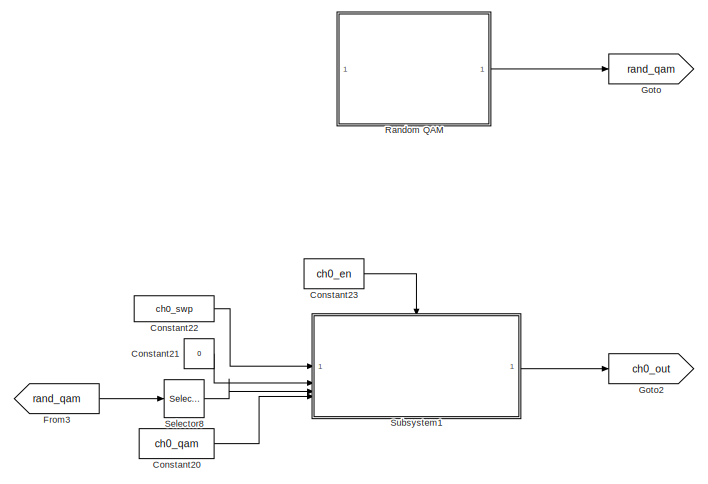
[diagram: Wideband_Signal - part 1/8, top left region]
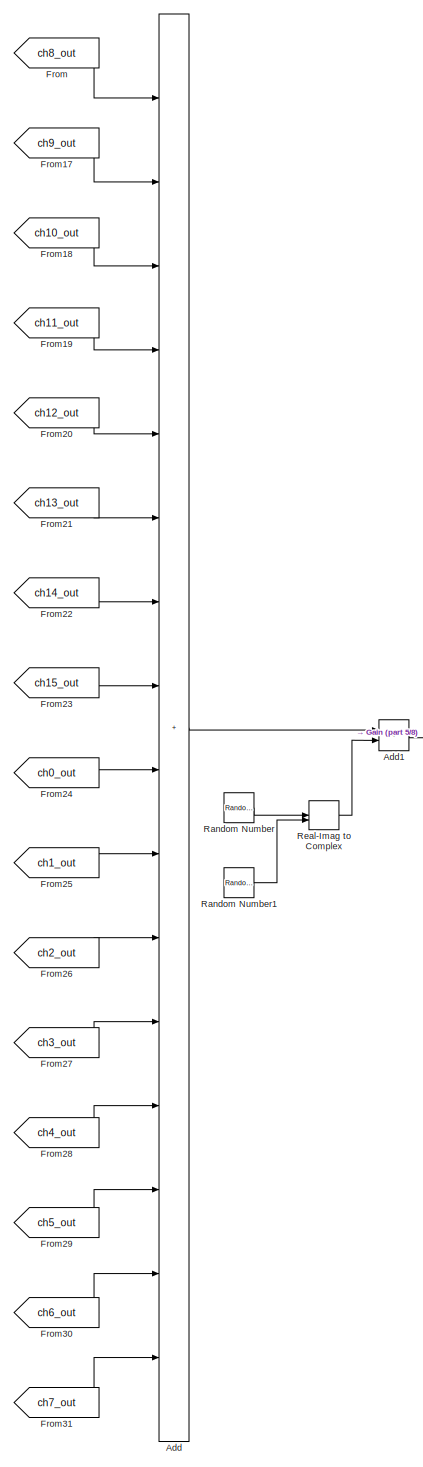
[diagram: Wideband_Signal - part 2/8, right side, full height]
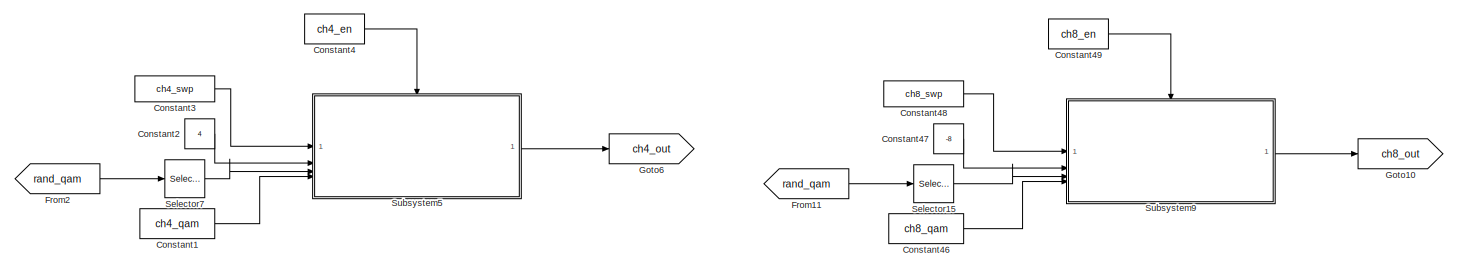
[diagram: Wideband_Signal - part 3/8, top center region]
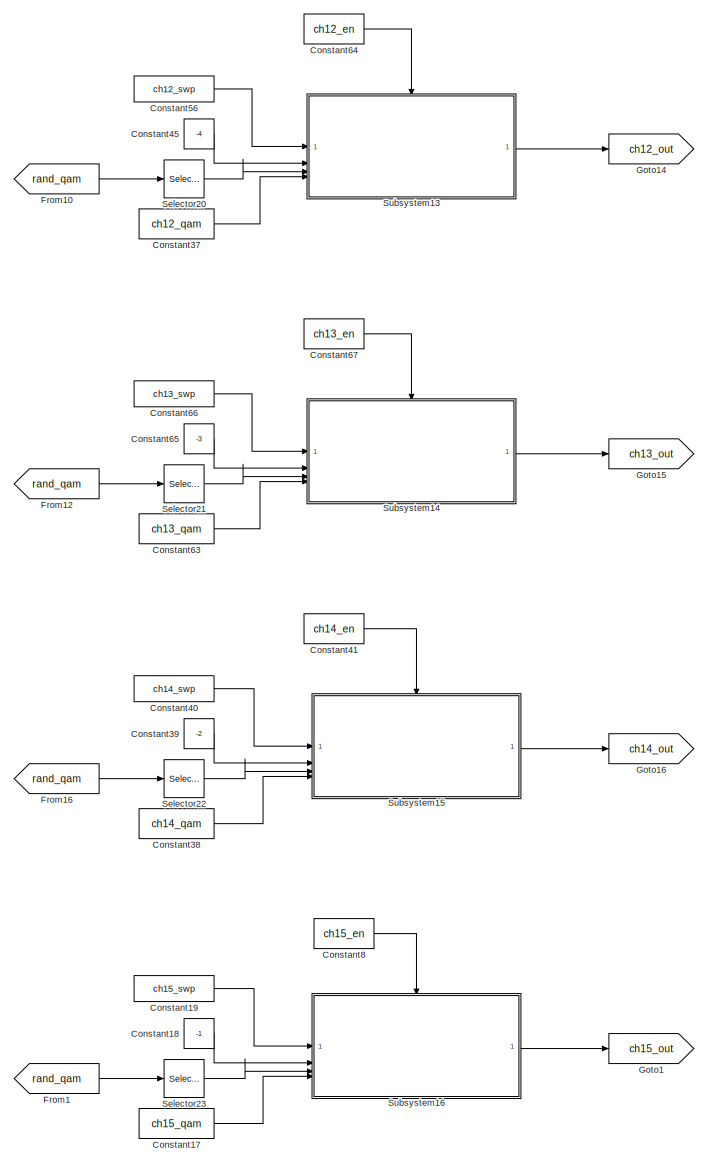
[diagram: Wideband_Signal - part 4/8, center side, full height]
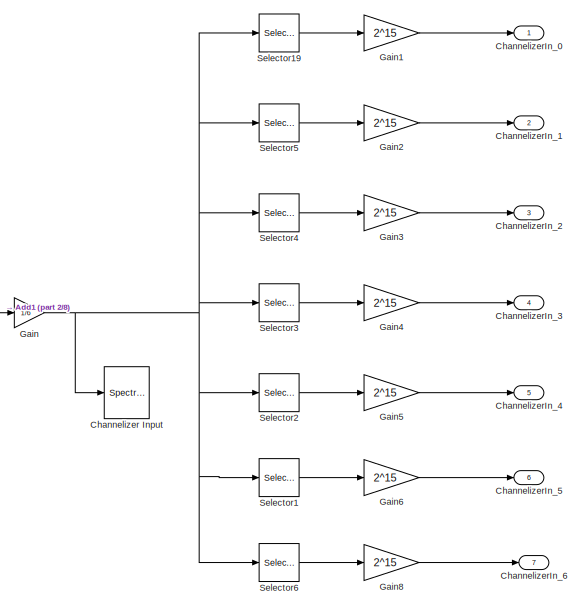
[diagram: Wideband_Signal - part 5/8, middle right region]
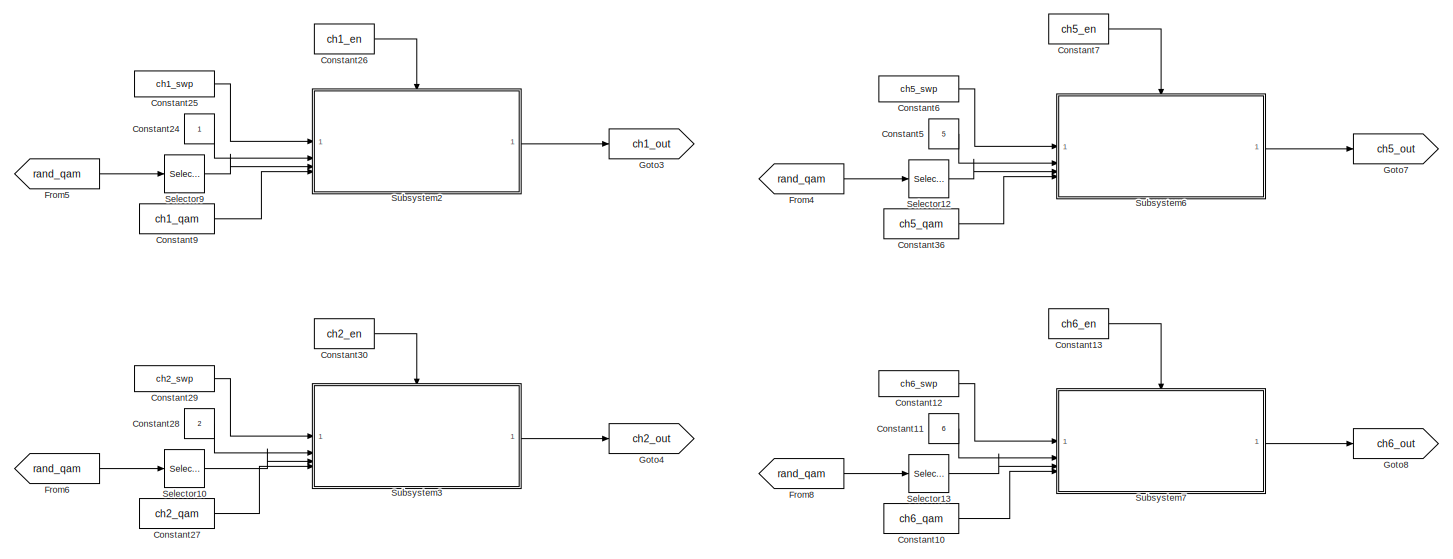
[diagram: Wideband_Signal - part 6/8, middle left region]
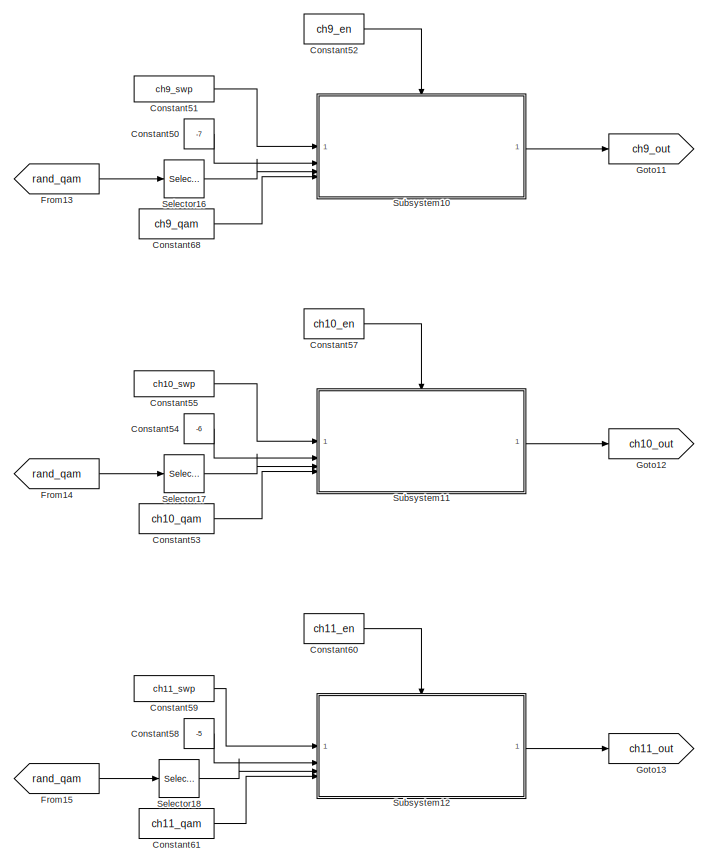
[diagram: Wideband_Signal - part 7/8, central region]
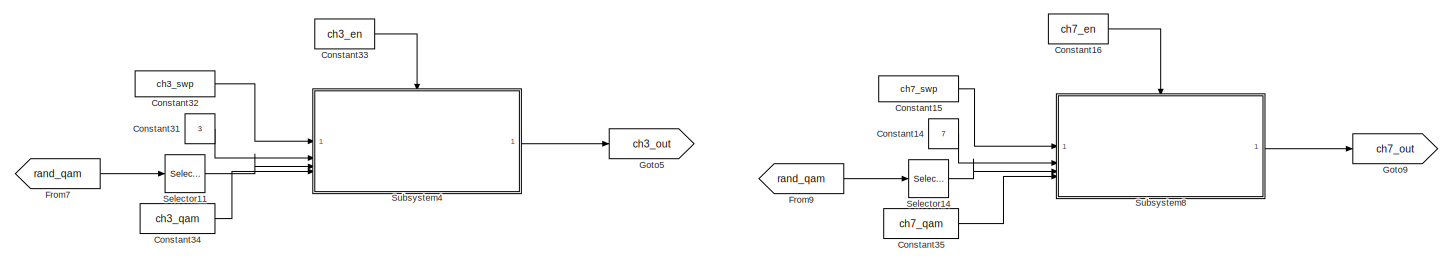
[diagram: Wideband_Signal - part 8/8, bottom left region]
BLOCK [SubSystem] Wideband_Signal
BLOCK [Sum] Wideband_Signal/Add
  IconShape = rectangular
  Inputs = ++++++++++++++++
BLOCK [Sum] Wideband_Signal/Add1
  IconShape = rectangular
BLOCK [SpectrumAnalyzer] Wideband_Signal/Channelizer Input
  AllowFFTLengthLessThanSamplesPerUpdate = on
  AveragingMethod = Running
  ChannelNames = [""]
  DefaultConfigurationName = spbscopes.SpectrumAnalyzerBlockCfg
  ForgettingFactor = 0.4
  ScopeFrameLocation = window
  ScopeSpecificationString = spbscopes.SpectrumAnalyzerBlockCfg('CurrentConfiguration', extmgr.ConfigurationSet(extmgr.Configuration('Core','General UI',true,'FigureColor',[0.12941     0.12941     0.12941]),extmgr.Configuration('Visuals','Spectrum',true,'Title','','YLabel','','MinYLim','-69.5701','MaxYLim','23.7555','Legend',false,'AxesProperties',struct('XGrid',{'on','on'},'YGrid',{'on','on'},'ZGrid',{'on','on'},'Color',{[0 ...<+2401ch>
  Span = 8750000000
  StartFrequency = -4375000000
  StopFrequency = 4375000000
  Visible = on
  WasSavedAsWebScope = on
  WindowPosition = [532.000000,52.000000,800.000000,381.000000,]
  YLimits = [-67.826 23.6268]
BLOCK [Outport] Wideband_Signal/ChannelizerIn_0
BLOCK [Outport] Wideband_Signal/ChannelizerIn_1
  Port = 2
BLOCK [Outport] Wideband_Signal/ChannelizerIn_2
  Port = 3
BLOCK [Outport] Wideband_Signal/ChannelizerIn_3
  Port = 4
BLOCK [Outport] Wideband_Signal/ChannelizerIn_4
  Port = 5
BLOCK [Outport] Wideband_Signal/ChannelizerIn_5
  Port = 6
BLOCK [Outport] Wideband_Signal/ChannelizerIn_6
  Port = 7
BLOCK [Constant] Wideband_Signal/Constant1
  SampleTime = -1
  Value = ch4_qam
BLOCK [Constant] Wideband_Signal/Constant10
  SampleTime = -1
  Value = ch6_qam
BLOCK [Constant] Wideband_Signal/Constant11
  SampleTime = -1
  Value = 6
BLOCK [Constant] Wideband_Signal/Constant12
  SampleTime = -1
  Value = ch6_swp
BLOCK [Constant] Wideband_Signal/Constant13
  SampleTime = -1
  Value = ch6_en
BLOCK [Constant] Wideband_Signal/Constant14
  SampleTime = -1
  Value = 7
BLOCK [Constant] Wideband_Signal/Constant15
  SampleTime = -1
  Value = ch7_swp
BLOCK [Constant] Wideband_Signal/Constant16
  SampleTime = -1
  Value = ch7_en
BLOCK [Constant] Wideband_Signal/Constant17
  SampleTime = -1
  Value = ch15_qam
BLOCK [Constant] Wideband_Signal/Constant18
  SampleTime = -1
  Value = -1
BLOCK [Constant] Wideband_Signal/Constant19
  SampleTime = -1
  Value = ch15_swp
BLOCK [Constant] Wideband_Signal/Constant2
  SampleTime = -1
  Value = 4
BLOCK [Constant] Wideband_Signal/Constant20
  SampleTime = -1
  Value = ch0_qam
BLOCK [Constant] Wideband_Signal/Constant21
  SampleTime = -1
  Value = 0
BLOCK [Constant] Wideband_Signal/Constant22
  SampleTime = -1
  Value = ch0_swp
BLOCK [Constant] Wideband_Signal/Constant23
  SampleTime = -1
  Value = ch0_en
BLOCK [Constant] Wideband_Signal/Constant24
  SampleTime = -1
BLOCK [Constant] Wideband_Signal/Constant25
  SampleTime = -1
  Value = ch1_swp
BLOCK [Constant] Wideband_Signal/Constant26
  SampleTime = -1
  Value = ch1_en
BLOCK [Constant] Wideband_Signal/Constant27
  SampleTime = -1
  Value = ch2_qam
BLOCK [Constant] Wideband_Signal/Constant28
  SampleTime = -1
  Value = 2
BLOCK [Constant] Wideband_Signal/Constant29
  SampleTime = -1
  Value = ch2_swp
BLOCK [Constant] Wideband_Signal/Constant3
  SampleTime = -1
  Value = ch4_swp
BLOCK [Constant] Wideband_Signal/Constant30
  SampleTime = -1
  Value = ch2_en
BLOCK [Constant] Wideband_Signal/Constant31
  SampleTime = -1
  Value = 3
BLOCK [Constant] Wideband_Signal/Constant32
  SampleTime = -1
  Value = ch3_swp
BLOCK [Constant] Wideband_Signal/Constant33
  SampleTime = -1
  Value = ch3_en
BLOCK [Constant] Wideband_Signal/Constant34
  SampleTime = -1
  Value = ch3_qam
BLOCK [Constant] Wideband_Signal/Constant35
  SampleTime = -1
  Value = ch7_qam
BLOCK [Constant] Wideband_Signal/Constant36
  SampleTime = -1
  Value = ch5_qam
BLOCK [Constant] Wideband_Signal/Constant37
  SampleTime = -1
  Value = ch12_qam
BLOCK [Constant] Wideband_Signal/Constant38
  SampleTime = -1
  Value = ch14_qam
BLOCK [Constant] Wideband_Signal/Constant39
  SampleTime = -1
  Value = -2
BLOCK [Constant] Wideband_Signal/Constant4
  SampleTime = -1
  Value = ch4_en
BLOCK [Constant] Wideband_Signal/Constant40
  SampleTime = -1
  Value = ch14_swp
BLOCK [Constant] Wideband_Signal/Constant41
  SampleTime = -1
  Value = ch14_en
BLOCK [Constant] Wideband_Signal/Constant45
  SampleTime = -1
  Value = -4
BLOCK [Constant] Wideband_Signal/Constant46
  SampleTime = -1
  Value = ch8_qam
BLOCK [Constant] Wideband_Signal/Constant47
  SampleTime = -1
  Value = -8
BLOCK [Constant] Wideband_Signal/Constant48
  SampleTime = -1
  Value = ch8_swp
BLOCK [Constant] Wideband_Signal/Constant49
  SampleTime = -1
  Value = ch8_en
BLOCK [Constant] Wideband_Signal/Constant5
  SampleTime = -1
  Value = 5
BLOCK [Constant] Wideband_Signal/Constant50
  SampleTime = -1
  Value = -7
BLOCK [Constant] Wideband_Signal/Constant51
  SampleTime = -1
  Value = ch9_swp
BLOCK [Constant] Wideband_Signal/Constant52
  SampleTime = -1
  Value = ch9_en
BLOCK [Constant] Wideband_Signal/Constant53
  SampleTime = -1
  Value = ch10_qam
BLOCK [Constant] Wideband_Signal/Constant54
  SampleTime = -1
  Value = -6
BLOCK [Constant] Wideband_Signal/Constant55
  SampleTime = -1
  Value = ch10_swp
BLOCK [Constant] Wideband_Signal/Constant56
  SampleTime = -1
  Value = ch12_swp
BLOCK [Constant] Wideband_Signal/Constant57
  SampleTime = -1
  Value = ch10_en
BLOCK [Constant] Wideband_Signal/Constant58
  SampleTime = -1
  Value = -5
BLOCK [Constant] Wideband_Signal/Constant59
  SampleTime = -1
  Value = ch11_swp
BLOCK [Constant] Wideband_Signal/Constant6
  SampleTime = -1
  Value = ch5_swp
BLOCK [Constant] Wideband_Signal/Constant60
  SampleTime = -1
  Value = ch11_en
BLOCK [Constant] Wideband_Signal/Constant61
  SampleTime = -1
  Value = ch11_qam
BLOCK [Constant] Wideband_Signal/Constant63
  SampleTime = -1
  Value = ch13_qam
BLOCK [Constant] Wideband_Signal/Constant64
  SampleTime = -1
  Value = ch12_en
BLOCK [Constant] Wideband_Signal/Constant65
  SampleTime = -1
  Value = -3
BLOCK [Constant] Wideband_Signal/Constant66
  SampleTime = -1
  Value = ch13_swp
BLOCK [Constant] Wideband_Signal/Constant67
  SampleTime = -1
  Value = ch13_en
BLOCK [Constant] Wideband_Signal/Constant68
  SampleTime = -1
  Value = ch9_qam
BLOCK [Constant] Wideband_Signal/Constant7
  SampleTime = -1
  Value = ch5_en
BLOCK [Constant] Wideband_Signal/Constant8
  SampleTime = -1
  Value = ch15_en
BLOCK [Constant] Wideband_Signal/Constant9
  SampleTime = -1
  Value = ch1_qam
BLOCK [From] Wideband_Signal/From
  GotoTag = ch8_out
BLOCK [From] Wideband_Signal/From1
  GotoTag = rand_qam
BLOCK [From] Wideband_Signal/From10
  GotoTag = rand_qam
BLOCK [From] Wideband_Signal/From11
  GotoTag = rand_qam
BLOCK [From] Wideband_Signal/From12
  GotoTag = rand_qam
BLOCK [From] Wideband_Signal/From13
  GotoTag = rand_qam
BLOCK [From] Wideband_Signal/From14
  GotoTag = rand_qam
BLOCK [From] Wideband_Signal/From15
  GotoTag = rand_qam
BLOCK [From] Wideband_Signal/From16
  GotoTag = rand_qam
BLOCK [From] Wideband_Signal/From17
  GotoTag = ch9_out
BLOCK [From] Wideband_Signal/From18
  GotoTag = ch10_out
BLOCK [From] Wideband_Signal/From19
  GotoTag = ch11_out
BLOCK [From] Wideband_Signal/From2
  GotoTag = rand_qam
BLOCK [From] Wideband_Signal/From20
  GotoTag = ch12_out
BLOCK [From] Wideband_Signal/From21
  GotoTag = ch13_out
BLOCK [From] Wideband_Signal/From22
  GotoTag = ch14_out
BLOCK [From] Wideband_Signal/From23
  GotoTag = ch15_out
BLOCK [From] Wideband_Signal/From24
  GotoTag = ch0_out
BLOCK [From] Wideband_Signal/From25
  GotoTag = ch1_out
BLOCK [From] Wideband_Signal/From26
  GotoTag = ch2_out
BLOCK [From] Wideband_Signal/From27
  GotoTag = ch3_out
BLOCK [From] Wideband_Signal/From28
  GotoTag = ch4_out
BLOCK [From] Wideband_Signal/From29
  GotoTag = ch5_out
BLOCK [From] Wideband_Signal/From3
  GotoTag = rand_qam
BLOCK [From] Wideband_Signal/From30
  GotoTag = ch6_out
BLOCK [From] Wideband_Signal/From31
  GotoTag = ch7_out
BLOCK [From] Wideband_Signal/From4
  GotoTag = rand_qam
BLOCK [From] Wideband_Signal/From5
  GotoTag = rand_qam
BLOCK [From] Wideband_Signal/From6
  GotoTag = rand_qam
BLOCK [From] Wideband_Signal/From7
  GotoTag = rand_qam
BLOCK [From] Wideband_Signal/From8
  GotoTag = rand_qam
BLOCK [From] Wideband_Signal/From9
  GotoTag = rand_qam
BLOCK [Gain] Wideband_Signal/Gain
  Gain = 1/6
BLOCK [Gain] Wideband_Signal/Gain1
  Gain = 2^15
  OutDataTypeStr = int16
BLOCK [Gain] Wideband_Signal/Gain2
  Gain = 2^15
  OutDataTypeStr = int16
BLOCK [Gain] Wideband_Signal/Gain3
  Gain = 2^15
  OutDataTypeStr = int16
BLOCK [Gain] Wideband_Signal/Gain4
  Gain = 2^15
  OutDataTypeStr = int16
BLOCK [Gain] Wideband_Signal/Gain5
  Gain = 2^15
  OutDataTypeStr = int16
BLOCK [Gain] Wideband_Signal/Gain6
  Gain = 2^15
  OutDataTypeStr = int16
BLOCK [Gain] Wideband_Signal/Gain8
  Gain = 2^15
  OutDataTypeStr = int16
BLOCK [Goto] Wideband_Signal/Goto
  GotoTag = rand_qam
BLOCK [Goto] Wideband_Signal/Goto1
  GotoTag = ch15_out
BLOCK [Goto] Wideband_Signal/Goto10
  GotoTag = ch8_out
BLOCK [Goto] Wideband_Signal/Goto11
  GotoTag = ch9_out
BLOCK [Goto] Wideband_Signal/Goto12
  GotoTag = ch10_out
BLOCK [Goto] Wideband_Signal/Goto13
  GotoTag = ch11_out
BLOCK [Goto] Wideband_Signal/Goto14
  GotoTag = ch12_out
BLOCK [Goto] Wideband_Signal/Goto15
  GotoTag = ch13_out
BLOCK [Goto] Wideband_Signal/Goto16
  GotoTag = ch14_out
BLOCK [Goto] Wideband_Signal/Goto2
  GotoTag = ch0_out
BLOCK [Goto] Wideband_Signal/Goto3
  GotoTag = ch1_out
BLOCK [Goto] Wideband_Signal/Goto4
  GotoTag = ch2_out
BLOCK [Goto] Wideband_Signal/Goto5
  GotoTag = ch3_out
BLOCK [Goto] Wideband_Signal/Goto6
  GotoTag = ch4_out
BLOCK [Goto] Wideband_Signal/Goto7
  GotoTag = ch5_out
BLOCK [Goto] Wideband_Signal/Goto8
  GotoTag = ch6_out
BLOCK [Goto] Wideband_Signal/Goto9
  GotoTag = ch7_out
BLOCK [RandomNumber] Wideband_Signal/Random Number
  SampleTime = Ts*N
  Seed = 1234*(1:28*N)'
  Variance = nvar
  VectorParams1D = off
BLOCK [RandomNumber] Wideband_Signal/Random Number1
  SampleTime = Ts*N
  Seed = 543*(1:28*N)'
  Variance = nvar
  VectorParams1D = off
BLOCK [SubSystem] Wideband_Signal/Random QAM
BLOCK [Sum] Wideband_Signal/Random QAM/Add
  IconShape = rectangular
BLOCK [Constant] Wideband_Signal/Random QAM/Constant1
  SampleTime = -1
BLOCK [Constant] Wideband_Signal/Random QAM/Constant17
  SampleTime = -1
BLOCK [Gain] Wideband_Signal/Random QAM/Gain1
  Gain = 2
BLOCK [Gain] Wideband_Signal/Random QAM/Gain7
  Gain = 2
BLOCK [Gain] Wideband_Signal/Random QAM/Gain9
  Gain = 1/sqrt(10)
BLOCK [Outport] Wideband_Signal/Random QAM/Out1
BLOCK [Product] Wideband_Signal/Random QAM/Product
BLOCK [RealImagToComplex] Wideband_Signal/Random QAM/Real-Imag to Complex
BLOCK [Rounding] Wideband_Signal/Random QAM/Round
  Operator = round
BLOCK [Rounding] Wideband_Signal/Random QAM/Round1
  Operator = round
BLOCK [Selector] Wideband_Signal/Random QAM/Selector
  IndexOptions = Index vector (dialog)
  Indices = 1:2:32*N
  InputPortWidth = 32*N
  OutputSizes = 1
BLOCK [Selector] Wideband_Signal/Random QAM/Selector1
  IndexOptions = Index vector (dialog)
  Indices = 2:2:32*N
  InputPortWidth = 32*N
  OutputSizes = 1
BLOCK [Sum] Wideband_Signal/Random QAM/Subtract1
  IconShape = rectangular
  Inputs = +-
BLOCK [UniformRandomNumber] Wideband_Signal/Random QAM/Uniform Random Number
  Minimum = 0
  SampleTime = Ts*N
  Seed = round(2^32*rand(32*N,1))
  VectorParams1D = off
BLOCK [UniformRandomNumber] Wideband_Signal/Random QAM/Uniform Random Number2
  Minimum = 0
  SampleTime = Ts*N
  Seed = round(2^32*rand(32*N,1))
  VectorParams1D = off
BLOCK [RealImagToComplex] Wideband_Signal/Real-Imag to Complex
BLOCK [Selector] Wideband_Signal/Selector1
  IndexOptions = Index vector (dialog)
  Indices = reshape([(9:14:28*N)' (2:14:28*N)']',4*N,1)
  InputPortWidth = 28*N
  OutputSizes = 1
BLOCK [Selector] Wideband_Signal/Selector10
  IndexOptions = Index vector (dialog)
  Indices = 3:16:16*N
  InputPortWidth = 16*N
  OutputSizes = 1
BLOCK [Selector] Wideband_Signal/Selector11
  IndexOptions = Index vector (dialog)
  Indices = 4:16:16*N
  InputPortWidth = 16*N
  OutputSizes = 1
BLOCK [Selector] Wideband_Signal/Selector12
  IndexOptions = Index vector (dialog)
  Indices = 6:16:16*N
  InputPortWidth = 16*N
  OutputSizes = 1
BLOCK [Selector] Wideband_Signal/Selector13
  IndexOptions = Index vector (dialog)
  Indices = 7:16:16*N
  InputPortWidth = 16*N
  OutputSizes = 1
BLOCK [Selector] Wideband_Signal/Selector14
  IndexOptions = Index vector (dialog)
  Indices = 8:16:16*N
  InputPortWidth = 16*N
  OutputSizes = 1
BLOCK [Selector] Wideband_Signal/Selector15
  IndexOptions = Index vector (dialog)
  Indices = 9:16:16*N
  InputPortWidth = 16*N
  OutputSizes = 1
BLOCK [Selector] Wideband_Signal/Selector16
  IndexOptions = Index vector (dialog)
  Indices = 10:16:16*N
  InputPortWidth = 16*N
  OutputSizes = 1
BLOCK [Selector] Wideband_Signal/Selector17
  IndexOptions = Index vector (dialog)
  Indices = 11:16:16*N
  InputPortWidth = 16*N
  OutputSizes = 1
BLOCK [Selector] Wideband_Signal/Selector18
  IndexOptions = Index vector (dialog)
  Indices = 12:16:16*N
  InputPortWidth = 16*N
  OutputSizes = 1
BLOCK [Selector] Wideband_Signal/Selector19
  IndexOptions = Index vector (dialog)
  Indices = reshape([(14:14:28*N)' (7:14:28*N)']',4*N,1)
  InputPortWidth = 28*N
  OutputSizes = 1
BLOCK [Selector] Wideband_Signal/Selector2
  IndexOptions = Index vector (dialog)
  Indices = reshape([(10:14:28*N)' (3:14:28*N)']',4*N,1)
  InputPortWidth = 28*N
  OutputSizes = 1
BLOCK [Selector] Wideband_Signal/Selector20
  IndexOptions = Index vector (dialog)
  Indices = 13:16:16*N
  InputPortWidth = 16*N
  OutputSizes = 1
BLOCK [Selector] Wideband_Signal/Selector21
  IndexOptions = Index vector (dialog)
  Indices = 14:16:16*N
  InputPortWidth = 16*N
  OutputSizes = 1
BLOCK [Selector] Wideband_Signal/Selector22
  IndexOptions = Index vector (dialog)
  Indices = 15:16:16*N
  InputPortWidth = 16*N
  OutputSizes = 1
BLOCK [Selector] Wideband_Signal/Selector23
  IndexOptions = Index vector (dialog)
  Indices = 16:16:16*N
  InputPortWidth = 16*N
  OutputSizes = 1
BLOCK [Selector] Wideband_Signal/Selector3
  IndexOptions = Index vector (dialog)
  Indices = reshape([(11:14:28*N)' (4:14:28*N)']',4*N,1)
  InputPortWidth = 28*N
  OutputSizes = 1
BLOCK [Selector] Wideband_Signal/Selector4
  IndexOptions = Index vector (dialog)
  Indices = reshape([(12:14:28*N)' (5:14:28*N)']',4*N,1)
  InputPortWidth = 28*N
  OutputSizes = 1
BLOCK [Selector] Wideband_Signal/Selector5
  IndexOptions = Index vector (dialog)
  Indices = reshape([(13:14:28*N)' (6:14:28*N)']',4*N,1)
  InputPortWidth = 28*N
  OutputSizes = 1
BLOCK [Selector] Wideband_Signal/Selector6
  IndexOptions = Index vector (dialog)
  Indices = reshape([(8:14:28*N)' (1:14:28*N)']',4*N,1)
  InputPortWidth = 28*N
  OutputSizes = 1
BLOCK [Selector] Wideband_Signal/Selector7
  IndexOptions = Index vector (dialog)
  Indices = 5:16:16*N
  InputPortWidth = 16*N
  OutputSizes = 1
BLOCK [Selector] Wideband_Signal/Selector8
  IndexOptions = Index vector (dialog)
  Indices = 1:16:16*N
  InputPortWidth = 16*N
  OutputSizes = 1
BLOCK [Selector] Wideband_Signal/Selector9
  IndexOptions = Index vector (dialog)
  Indices = 2:16:16*N
  InputPortWidth = 16*N
  OutputSizes = 1
BLOCK [SubSystem] Wideband_Signal/Subsystem1
BLOCK [Sum] Wideband_Signal/Subsystem1/Add1
  IconShape = rectangular
BLOCK [Sum] Wideband_Signal/Subsystem1/Add2
  IconShape = rectangular
BLOCK [Sum] Wideband_Signal/Subsystem1/Add3
  IconShape = rectangular
BLOCK [Sum] Wideband_Signal/Subsystem1/Add4
  IconShape = rectangular
BLOCK [Constant] Wideband_Signal/Subsystem1/Constant
  SampleTime = -1
  Value = complex(ones(28*N,1))
BLOCK [Constant] Wideband_Signal/Subsystem1/Constant1
  SampleTime = -1
  Value = complex(zeros(N,27))
  VectorParams1D = off
BLOCK [Constant] Wideband_Signal/Subsystem1/Constant2
  SampleTime = -1
  Value = (1:28*N)'
BLOCK [Constant] Wideband_Signal/Subsystem1/Constant3
  SampleTime = -1
  Value = (1:28*N)'
BLOCK [Constant] Wideband_Signal/Subsystem1/Constant4
  SampleTime = -1
  Value = 2^32
BLOCK [Constant] Wideband_Signal/Subsystem1/Constant5
  SampleTime = -1
  Value = zeros(28*N,1)
BLOCK [Constant] Wideband_Signal/Subsystem1/Constant6
  SampleTime = -1
  Value = randph(1)
BLOCK [Constant] Wideband_Signal/Subsystem1/Constant7
  SampleTime = -1
  Value = 2^32
BLOCK [Delay] Wideband_Signal/Subsystem1/Delay1
  DelayLength = 1
  InitialCondition = (0:28*N-1)'
  InputPortMap = u0
BLOCK [Delay] Wideband_Signal/Subsystem1/Delay2
  DelayLength = 1
  ExternalReset = Falling
  InitialCondition = (1:28*N)'
  InputPortMap = u0,e6,r5
  ShowEnablePort = on
BLOCK [DiscreteFir] Wideband_Signal/Subsystem1/Discrete FIR Filter
  Coefficients = ch_filt_coef
  InputPortMap = u0
  InputProcessing = Columns as channels (frame based)
  OutputPortMap = o0
BLOCK [Gain] Wideband_Signal/Subsystem1/Gain1
  Gain = 2*pi
  OutDataTypeStr = double
BLOCK [Gain] Wideband_Signal/Subsystem1/Gain7
  Gain = 1e-7*swp_rate0
  OutDataTypeStr = double
  ParamDataTypeStr = double
  SaturateOnIntegerOverflow = on
BLOCK [Gain] Wideband_Signal/Subsystem1/Gain8
  Gain = 1/16
  OutDataTypeStr = double
BLOCK [Math] Wideband_Signal/Subsystem1/Mod
  Operator = mod
BLOCK [Math] Wideband_Signal/Subsystem1/Mod1
  Operator = mod
BLOCK [Logic] Wideband_Signal/Subsystem1/NOT
  AllPortsSameDT = off
  IconShape = distinctive
  Operator = NOT
  OutDataTypeStr = boolean
BLOCK [Product] Wideband_Signal/Subsystem1/Product
BLOCK [Product] Wideband_Signal/Subsystem1/Product1
BLOCK [Product] Wideband_Signal/Subsystem1/Product2
BLOCK [Reshape] Wideband_Signal/Subsystem1/Reshape
BLOCK [Selector] Wideband_Signal/Subsystem1/Selector1
  IndexOptions = Index vector (dialog)
  Indices = 28*N
  InputPortWidth = 28*N
  OutputSizes = 1
BLOCK [Selector] Wideband_Signal/Subsystem1/Selector2
  IndexOptions = Index vector (dialog)
  Indices = 28*N
  InputPortWidth = 28*N
  OutputSizes = 1
BLOCK [Switch] Wideband_Signal/Subsystem1/Switch
  Criteria = u2 > Threshold
  InputSameDT = off
  SaturateOnIntegerOverflow = off
BLOCK [Switch] Wideband_Signal/Subsystem1/Switch1
  Criteria = u2 > Threshold
  InputSameDT = off
  SaturateOnIntegerOverflow = off
BLOCK [Math] Wideband_Signal/Subsystem1/Transpose
  Operator = transpose
BLOCK [Trigonometry] Wideband_Signal/Subsystem1/Trigonometric Function
  Operator = cos + jsin
BLOCK [Concatenate] Wideband_Signal/Subsystem1/Vector Concatenate
  ConcatenateDimension = 2
  Mode = Multidimensional array
BLOCK [EnablePort] Wideband_Signal/Subsystem1/chan_en
BLOCK [Inport] Wideband_Signal/Subsystem1/chan_fc
  Port = 2
BLOCK [Outport] Wideband_Signal/Subsystem1/chan_out
  InitialOutput = zeros(28*N,1)
  OutputWhenDisabled = reset
BLOCK [Inport] Wideband_Signal/Subsystem1/qam_en
  Port = 4
BLOCK [Inport] Wideband_Signal/Subsystem1/qam_sym
  Port = 3
BLOCK [Inport] Wideband_Signal/Subsystem1/swp_en
BLOCK [SubSystem] Wideband_Signal/Subsystem10
BLOCK [Sum] Wideband_Signal/Subsystem10/Add1
  IconShape = rectangular
BLOCK [Sum] Wideband_Signal/Subsystem10/Add2
  IconShape = rectangular
BLOCK [Sum] Wideband_Signal/Subsystem10/Add3
  IconShape = rectangular
BLOCK [Sum] Wideband_Signal/Subsystem10/Add4
  IconShape = rectangular
BLOCK [Constant] Wideband_Signal/Subsystem10/Constant
  SampleTime = -1
  Value = complex(ones(28*N,1))
BLOCK [Constant] Wideband_Signal/Subsystem10/Constant1
  SampleTime = -1
  Value = complex(zeros(N,27))
  VectorParams1D = off
BLOCK [Constant] Wideband_Signal/Subsystem10/Constant2
  SampleTime = -1
  Value = (1:28*N)'
BLOCK [Constant] Wideband_Signal/Subsystem10/Constant3
  SampleTime = -1
  Value = (1:28*N)'
BLOCK [Constant] Wideband_Signal/Subsystem10/Constant4
  SampleTime = -1
  Value = 2^32
BLOCK [Constant] Wideband_Signal/Subsystem10/Constant5
  SampleTime = -1
  Value = zeros(28*N,1)
BLOCK [Constant] Wideband_Signal/Subsystem10/Constant6
  SampleTime = -1
  Value = randph(10)
BLOCK [Constant] Wideband_Signal/Subsystem10/Constant7
  SampleTime = -1
  Value = 2^32
BLOCK [Delay] Wideband_Signal/Subsystem10/Delay1
  DelayLength = 1
  InitialCondition = (0:28*N-1)'
  InputPortMap = u0
BLOCK [Delay] Wideband_Signal/Subsystem10/Delay2
  DelayLength = 1
  ExternalReset = Falling
  InitialCondition = (1:28*N)'
  InputPortMap = u0,e6,r5
  ShowEnablePort = on
BLOCK [DiscreteFir] Wideband_Signal/Subsystem10/Discrete FIR Filter
  Coefficients = ch_filt_coef
  InputPortMap = u0
  InputProcessing = Columns as channels (frame based)
  OutputPortMap = o0
BLOCK [Gain] Wideband_Signal/Subsystem10/Gain1
  Gain = 2*pi
  OutDataTypeStr = double
BLOCK [Gain] Wideband_Signal/Subsystem10/Gain7
  Gain = 1e-7*swp_rate9
  OutDataTypeStr = double
  ParamDataTypeStr = double
  SaturateOnIntegerOverflow = on
BLOCK [Gain] Wideband_Signal/Subsystem10/Gain8
  Gain = 1/16
  OutDataTypeStr = double
BLOCK [Math] Wideband_Signal/Subsystem10/Mod
  Operator = mod
BLOCK [Math] Wideband_Signal/Subsystem10/Mod1
  Operator = mod
BLOCK [Logic] Wideband_Signal/Subsystem10/NOT
  AllPortsSameDT = off
  IconShape = distinctive
  Operator = NOT
  OutDataTypeStr = boolean
BLOCK [Product] Wideband_Signal/Subsystem10/Product
BLOCK [Product] Wideband_Signal/Subsystem10/Product1
BLOCK [Product] Wideband_Signal/Subsystem10/Product2
BLOCK [Reshape] Wideband_Signal/Subsystem10/Reshape
BLOCK [Selector] Wideband_Signal/Subsystem10/Selector1
  IndexOptions = Index vector (dialog)
  Indices = 28*N
  InputPortWidth = 28*N
  OutputSizes = 1
BLOCK [Selector] Wideband_Signal/Subsystem10/Selector2
  IndexOptions = Index vector (dialog)
  Indices = 28*N
  InputPortWidth = 28*N
  OutputSizes = 1
BLOCK [Switch] Wideband_Signal/Subsystem10/Switch
  Criteria = u2 > Threshold
  InputSameDT = off
  SaturateOnIntegerOverflow = off
BLOCK [Switch] Wideband_Signal/Subsystem10/Switch1
  Criteria = u2 > Threshold
  InputSameDT = off
  SaturateOnIntegerOverflow = off
BLOCK [Math] Wideband_Signal/Subsystem10/Transpose
  Operator = transpose
BLOCK [Trigonometry] Wideband_Signal/Subsystem10/Trigonometric Function
  Operator = cos + jsin
BLOCK [Concatenate] Wideband_Signal/Subsystem10/Vector Concatenate
  ConcatenateDimension = 2
  Mode = Multidimensional array
BLOCK [EnablePort] Wideband_Signal/Subsystem10/chan_en
BLOCK [Inport] Wideband_Signal/Subsystem10/chan_fc
  Port = 2
BLOCK [Outport] Wideband_Signal/Subsystem10/chan_out
  InitialOutput = zeros(28*N,1)
  OutputWhenDisabled = reset
BLOCK [Inport] Wideband_Signal/Subsystem10/qam_en
  Port = 4
BLOCK [Inport] Wideband_Signal/Subsystem10/qam_sym
  Port = 3
BLOCK [Inport] Wideband_Signal/Subsystem10/swp_en
BLOCK [SubSystem] Wideband_Signal/Subsystem11
BLOCK [Sum] Wideband_Signal/Subsystem11/Add1
  IconShape = rectangular
BLOCK [Sum] Wideband_Signal/Subsystem11/Add2
  IconShape = rectangular
BLOCK [Sum] Wideband_Signal/Subsystem11/Add3
  IconShape = rectangular
BLOCK [Sum] Wideband_Signal/Subsystem11/Add4
  IconShape = rectangular
BLOCK [Constant] Wideband_Signal/Subsystem11/Constant
  SampleTime = -1
  Value = complex(ones(28*N,1))
BLOCK [Constant] Wideband_Signal/Subsystem11/Constant1
  SampleTime = -1
  Value = complex(zeros(N,27))
  VectorParams1D = off
BLOCK [Constant] Wideband_Signal/Subsystem11/Constant2
  SampleTime = -1
  Value = (1:28*N)'
BLOCK [Constant] Wideband_Signal/Subsystem11/Constant3
  SampleTime = -1
  Value = (1:28*N)'
BLOCK [Constant] Wideband_Signal/Subsystem11/Constant4
  SampleTime = -1
  Value = 2^32
BLOCK [Constant] Wideband_Signal/Subsystem11/Constant5
  SampleTime = -1
  Value = zeros(28*N,1)
BLOCK [Constant] Wideband_Signal/Subsystem11/Constant6
  SampleTime = -1
  Value = randph(11)
BLOCK [Constant] Wideband_Signal/Subsystem11/Constant7
  SampleTime = -1
  Value = 2^32
BLOCK [Delay] Wideband_Signal/Subsystem11/Delay1
  DelayLength = 1
  InitialCondition = (0:28*N-1)'
  InputPortMap = u0
BLOCK [Delay] Wideband_Signal/Subsystem11/Delay2
  DelayLength = 1
  ExternalReset = Falling
  InitialCondition = (1:28*N)'
  InputPortMap = u0,e6,r5
  ShowEnablePort = on
BLOCK [DiscreteFir] Wideband_Signal/Subsystem11/Discrete FIR Filter
  Coefficients = ch_filt_coef
  InputPortMap = u0
  InputProcessing = Columns as channels (frame based)
  OutputPortMap = o0
BLOCK [Gain] Wideband_Signal/Subsystem11/Gain1
  Gain = 2*pi
  OutDataTypeStr = double
BLOCK [Gain] Wideband_Signal/Subsystem11/Gain7
  Gain = 1e-7*swp_rate10
  OutDataTypeStr = double
  ParamDataTypeStr = double
  SaturateOnIntegerOverflow = on
BLOCK [Gain] Wideband_Signal/Subsystem11/Gain8
  Gain = 1/16
  OutDataTypeStr = double
BLOCK [Math] Wideband_Signal/Subsystem11/Mod
  Operator = mod
BLOCK [Math] Wideband_Signal/Subsystem11/Mod1
  Operator = mod
BLOCK [Logic] Wideband_Signal/Subsystem11/NOT
  AllPortsSameDT = off
  IconShape = distinctive
  Operator = NOT
  OutDataTypeStr = boolean
BLOCK [Product] Wideband_Signal/Subsystem11/Product
BLOCK [Product] Wideband_Signal/Subsystem11/Product1
BLOCK [Product] Wideband_Signal/Subsystem11/Product2
BLOCK [Reshape] Wideband_Signal/Subsystem11/Reshape
BLOCK [Selector] Wideband_Signal/Subsystem11/Selector1
  IndexOptions = Index vector (dialog)
  Indices = 28*N
  InputPortWidth = 28*N
  OutputSizes = 1
BLOCK [Selector] Wideband_Signal/Subsystem11/Selector2
  IndexOptions = Index vector (dialog)
  Indices = 28*N
  InputPortWidth = 28*N
  OutputSizes = 1
BLOCK [Switch] Wideband_Signal/Subsystem11/Switch
  Criteria = u2 > Threshold
  InputSameDT = off
  SaturateOnIntegerOverflow = off
BLOCK [Switch] Wideband_Signal/Subsystem11/Switch1
  Criteria = u2 > Threshold
  InputSameDT = off
  SaturateOnIntegerOverflow = off
BLOCK [Math] Wideband_Signal/Subsystem11/Transpose
  Operator = transpose
BLOCK [Trigonometry] Wideband_Signal/Subsystem11/Trigonometric Function
  Operator = cos + jsin
BLOCK [Concatenate] Wideband_Signal/Subsystem11/Vector Concatenate
  ConcatenateDimension = 2
  Mode = Multidimensional array
BLOCK [EnablePort] Wideband_Signal/Subsystem11/chan_en
BLOCK [Inport] Wideband_Signal/Subsystem11/chan_fc
  Port = 2
BLOCK [Outport] Wideband_Signal/Subsystem11/chan_out
  InitialOutput = zeros(28*N,1)
  OutputWhenDisabled = reset
BLOCK [Inport] Wideband_Signal/Subsystem11/qam_en
  Port = 4
BLOCK [Inport] Wideband_Signal/Subsystem11/qam_sym
  Port = 3
BLOCK [Inport] Wideband_Signal/Subsystem11/swp_en
BLOCK [SubSystem] Wideband_Signal/Subsystem12
BLOCK [Sum] Wideband_Signal/Subsystem12/Add1
  IconShape = rectangular
BLOCK [Sum] Wideband_Signal/Subsystem12/Add2
  IconShape = rectangular
BLOCK [Sum] Wideband_Signal/Subsystem12/Add3
  IconShape = rectangular
BLOCK [Sum] Wideband_Signal/Subsystem12/Add4
  IconShape = rectangular
BLOCK [Constant] Wideband_Signal/Subsystem12/Constant
  SampleTime = -1
  Value = complex(ones(28*N,1))
BLOCK [Constant] Wideband_Signal/Subsystem12/Constant1
  SampleTime = -1
  Value = complex(zeros(N,27))
  VectorParams1D = off
BLOCK [Constant] Wideband_Signal/Subsystem12/Constant2
  SampleTime = -1
  Value = (1:28*N)'
BLOCK [Constant] Wideband_Signal/Subsystem12/Constant3
  SampleTime = -1
  Value = (1:28*N)'
BLOCK [Constant] Wideband_Signal/Subsystem12/Constant4
  SampleTime = -1
  Value = 2^32
BLOCK [Constant] Wideband_Signal/Subsystem12/Constant5
  SampleTime = -1
  Value = zeros(28*N,1)
BLOCK [Constant] Wideband_Signal/Subsystem12/Constant6
  SampleTime = -1
  Value = randph(12)
BLOCK [Constant] Wideband_Signal/Subsystem12/Constant7
  SampleTime = -1
  Value = 2^32
BLOCK [Delay] Wideband_Signal/Subsystem12/Delay1
  DelayLength = 1
  InitialCondition = (0:28*N-1)'
  InputPortMap = u0
BLOCK [Delay] Wideband_Signal/Subsystem12/Delay2
  DelayLength = 1
  ExternalReset = Falling
  InitialCondition = (1:28*N)'
  InputPortMap = u0,e6,r5
  ShowEnablePort = on
BLOCK [DiscreteFir] Wideband_Signal/Subsystem12/Discrete FIR Filter
  Coefficients = ch_filt_coef
  InputPortMap = u0
  InputProcessing = Columns as channels (frame based)
  OutputPortMap = o0
BLOCK [Gain] Wideband_Signal/Subsystem12/Gain1
  Gain = 2*pi
  OutDataTypeStr = double
BLOCK [Gain] Wideband_Signal/Subsystem12/Gain7
  Gain = 1e-7*swp_rate11
  OutDataTypeStr = double
  ParamDataTypeStr = double
  SaturateOnIntegerOverflow = on
BLOCK [Gain] Wideband_Signal/Subsystem12/Gain8
  Gain = 1/16
  OutDataTypeStr = double
BLOCK [Math] Wideband_Signal/Subsystem12/Mod
  Operator = mod
BLOCK [Math] Wideband_Signal/Subsystem12/Mod1
  Operator = mod
BLOCK [Logic] Wideband_Signal/Subsystem12/NOT
  AllPortsSameDT = off
  IconShape = distinctive
  Operator = NOT
  OutDataTypeStr = boolean
BLOCK [Product] Wideband_Signal/Subsystem12/Product
BLOCK [Product] Wideband_Signal/Subsystem12/Product1
BLOCK [Product] Wideband_Signal/Subsystem12/Product2
BLOCK [Reshape] Wideband_Signal/Subsystem12/Reshape
BLOCK [Selector] Wideband_Signal/Subsystem12/Selector1
  IndexOptions = Index vector (dialog)
  Indices = 28*N
  InputPortWidth = 28*N
  OutputSizes = 1
BLOCK [Selector] Wideband_Signal/Subsystem12/Selector2
  IndexOptions = Index vector (dialog)
  Indices = 28*N
  InputPortWidth = 28*N
  OutputSizes = 1
BLOCK [Switch] Wideband_Signal/Subsystem12/Switch
  Criteria = u2 > Threshold
  InputSameDT = off
  SaturateOnIntegerOverflow = off
BLOCK [Switch] Wideband_Signal/Subsystem12/Switch1
  Criteria = u2 > Threshold
  InputSameDT = off
  SaturateOnIntegerOverflow = off
BLOCK [Math] Wideband_Signal/Subsystem12/Transpose
  Operator = transpose
BLOCK [Trigonometry] Wideband_Signal/Subsystem12/Trigonometric Function
  Operator = cos + jsin
BLOCK [Concatenate] Wideband_Signal/Subsystem12/Vector Concatenate
  ConcatenateDimension = 2
  Mode = Multidimensional array
BLOCK [EnablePort] Wideband_Signal/Subsystem12/chan_en
BLOCK [Inport] Wideband_Signal/Subsystem12/chan_fc
  Port = 2
BLOCK [Outport] Wideband_Signal/Subsystem12/chan_out
  InitialOutput = zeros(28*N,1)
  OutputWhenDisabled = reset
BLOCK [Inport] Wideband_Signal/Subsystem12/qam_en
  Port = 4
BLOCK [Inport] Wideband_Signal/Subsystem12/qam_sym
  Port = 3
BLOCK [Inport] Wideband_Signal/Subsystem12/swp_en
BLOCK [SubSystem] Wideband_Signal/Subsystem13
BLOCK [Sum] Wideband_Signal/Subsystem13/Add1
  IconShape = rectangular
BLOCK [Sum] Wideband_Signal/Subsystem13/Add2
  IconShape = rectangular
BLOCK [Sum] Wideband_Signal/Subsystem13/Add3
  IconShape = rectangular
BLOCK [Sum] Wideband_Signal/Subsystem13/Add4
  IconShape = rectangular
BLOCK [Constant] Wideband_Signal/Subsystem13/Constant
  SampleTime = -1
  Value = complex(ones(28*N,1))
BLOCK [Constant] Wideband_Signal/Subsystem13/Constant1
  SampleTime = -1
  Value = complex(zeros(N,27))
  VectorParams1D = off
BLOCK [Constant] Wideband_Signal/Subsystem13/Constant2
  SampleTime = -1
  Value = (1:28*N)'
BLOCK [Constant] Wideband_Signal/Subsystem13/Constant3
  SampleTime = -1
  Value = (1:28*N)'
BLOCK [Constant] Wideband_Signal/Subsystem13/Constant4
  SampleTime = -1
  Value = 2^32
BLOCK [Constant] Wideband_Signal/Subsystem13/Constant5
  SampleTime = -1
  Value = zeros(28*N,1)
BLOCK [Constant] Wideband_Signal/Subsystem13/Constant6
  SampleTime = -1
  Value = randph(13)
BLOCK [Constant] Wideband_Signal/Subsystem13/Constant7
  SampleTime = -1
  Value = 2^32
BLOCK [Delay] Wideband_Signal/Subsystem13/Delay1
  DelayLength = 1
  InitialCondition = (0:28*N-1)'
  InputPortMap = u0
BLOCK [Delay] Wideband_Signal/Subsystem13/Delay2
  DelayLength = 1
  ExternalReset = Falling
  InitialCondition = (1:28*N)'
  InputPortMap = u0,e6,r5
  ShowEnablePort = on
BLOCK [DiscreteFir] Wideband_Signal/Subsystem13/Discrete FIR Filter
  Coefficients = ch_filt_coef
  InputPortMap = u0
  InputProcessing = Columns as channels (frame based)
  OutputPortMap = o0
BLOCK [Gain] Wideband_Signal/Subsystem13/Gain1
  Gain = 2*pi
  OutDataTypeStr = double
BLOCK [Gain] Wideband_Signal/Subsystem13/Gain7
  Gain = 1e-7*swp_rate12
  OutDataTypeStr = double
  ParamDataTypeStr = double
  SaturateOnIntegerOverflow = on
BLOCK [Gain] Wideband_Signal/Subsystem13/Gain8
  Gain = 1/16
  OutDataTypeStr = double
BLOCK [Math] Wideband_Signal/Subsystem13/Mod
  Operator = mod
BLOCK [Math] Wideband_Signal/Subsystem13/Mod1
  Operator = mod
BLOCK [Logic] Wideband_Signal/Subsystem13/NOT
  AllPortsSameDT = off
  IconShape = distinctive
  Operator = NOT
  OutDataTypeStr = boolean
BLOCK [Product] Wideband_Signal/Subsystem13/Product
BLOCK [Product] Wideband_Signal/Subsystem13/Product1
BLOCK [Product] Wideband_Signal/Subsystem13/Product2
BLOCK [Reshape] Wideband_Signal/Subsystem13/Reshape
BLOCK [Selector] Wideband_Signal/Subsystem13/Selector1
  IndexOptions = Index vector (dialog)
  Indices = 28*N
  InputPortWidth = 28*N
  OutputSizes = 1
BLOCK [Selector] Wideband_Signal/Subsystem13/Selector2
  IndexOptions = Index vector (dialog)
  Indices = 28*N
  InputPortWidth = 28*N
  OutputSizes = 1
BLOCK [Switch] Wideband_Signal/Subsystem13/Switch
  Criteria = u2 > Threshold
  InputSameDT = off
  SaturateOnIntegerOverflow = off
BLOCK [Switch] Wideband_Signal/Subsystem13/Switch1
  Criteria = u2 > Threshold
  InputSameDT = off
  SaturateOnIntegerOverflow = off
BLOCK [Math] Wideband_Signal/Subsystem13/Transpose
  Operator = transpose
BLOCK [Trigonometry] Wideband_Signal/Subsystem13/Trigonometric Function
  Operator = cos + jsin
BLOCK [Concatenate] Wideband_Signal/Subsystem13/Vector Concatenate
  ConcatenateDimension = 2
  Mode = Multidimensional array
BLOCK [EnablePort] Wideband_Signal/Subsystem13/chan_en
BLOCK [Inport] Wideband_Signal/Subsystem13/chan_fc
  Port = 2
BLOCK [Outport] Wideband_Signal/Subsystem13/chan_out
  InitialOutput = zeros(28*N,1)
  OutputWhenDisabled = reset
BLOCK [Inport] Wideband_Signal/Subsystem13/qam_en
  Port = 4
BLOCK [Inport] Wideband_Signal/Subsystem13/qam_sym
  Port = 3
BLOCK [Inport] Wideband_Signal/Subsystem13/swp_en
BLOCK [SubSystem] Wideband_Signal/Subsystem14
BLOCK [Sum] Wideband_Signal/Subsystem14/Add1
  IconShape = rectangular
BLOCK [Sum] Wideband_Signal/Subsystem14/Add2
  IconShape = rectangular
BLOCK [Sum] Wideband_Signal/Subsystem14/Add3
  IconShape = rectangular
BLOCK [Sum] Wideband_Signal/Subsystem14/Add4
  IconShape = rectangular
BLOCK [Constant] Wideband_Signal/Subsystem14/Constant
  SampleTime = -1
  Value = complex(ones(28*N,1))
BLOCK [Constant] Wideband_Signal/Subsystem14/Constant1
  SampleTime = -1
  Value = complex(zeros(N,27))
  VectorParams1D = off
BLOCK [Constant] Wideband_Signal/Subsystem14/Constant2
  SampleTime = -1
  Value = (1:28*N)'
BLOCK [Constant] Wideband_Signal/Subsystem14/Constant3
  SampleTime = -1
  Value = (1:28*N)'
BLOCK [Constant] Wideband_Signal/Subsystem14/Constant4
  SampleTime = -1
  Value = 2^32
BLOCK [Constant] Wideband_Signal/Subsystem14/Constant5
  SampleTime = -1
  Value = zeros(28*N,1)
BLOCK [Constant] Wideband_Signal/Subsystem14/Constant6
  SampleTime = -1
  Value = randph(14)
BLOCK [Constant] Wideband_Signal/Subsystem14/Constant7
  SampleTime = -1
  Value = 2^32
BLOCK [Delay] Wideband_Signal/Subsystem14/Delay1
  DelayLength = 1
  InitialCondition = (0:28*N-1)'
  InputPortMap = u0
BLOCK [Delay] Wideband_Signal/Subsystem14/Delay2
  DelayLength = 1
  ExternalReset = Falling
  InitialCondition = (1:28*N)'
  InputPortMap = u0,e6,r5
  ShowEnablePort = on
BLOCK [DiscreteFir] Wideband_Signal/Subsystem14/Discrete FIR Filter
  Coefficients = ch_filt_coef
  InputPortMap = u0
  InputProcessing = Columns as channels (frame based)
  OutputPortMap = o0
BLOCK [Gain] Wideband_Signal/Subsystem14/Gain1
  Gain = 2*pi
  OutDataTypeStr = double
BLOCK [Gain] Wideband_Signal/Subsystem14/Gain7
  Gain = 1e-7*swp_rate13
  OutDataTypeStr = double
  ParamDataTypeStr = double
  SaturateOnIntegerOverflow = on
BLOCK [Gain] Wideband_Signal/Subsystem14/Gain8
  Gain = 1/16
  OutDataTypeStr = double
BLOCK [Math] Wideband_Signal/Subsystem14/Mod
  Operator = mod
BLOCK [Math] Wideband_Signal/Subsystem14/Mod1
  Operator = mod
BLOCK [Logic] Wideband_Signal/Subsystem14/NOT
  AllPortsSameDT = off
  IconShape = distinctive
  Operator = NOT
  OutDataTypeStr = boolean
BLOCK [Product] Wideband_Signal/Subsystem14/Product
BLOCK [Product] Wideband_Signal/Subsystem14/Product1
BLOCK [Product] Wideband_Signal/Subsystem14/Product2
BLOCK [Reshape] Wideband_Signal/Subsystem14/Reshape
BLOCK [Selector] Wideband_Signal/Subsystem14/Selector1
  IndexOptions = Index vector (dialog)
  Indices = 28*N
  InputPortWidth = 28*N
  OutputSizes = 1
BLOCK [Selector] Wideband_Signal/Subsystem14/Selector2
  IndexOptions = Index vector (dialog)
  Indices = 28*N
  InputPortWidth = 28*N
  OutputSizes = 1
BLOCK [Switch] Wideband_Signal/Subsystem14/Switch
  Criteria = u2 > Threshold
  InputSameDT = off
  SaturateOnIntegerOverflow = off
BLOCK [Switch] Wideband_Signal/Subsystem14/Switch1
  Criteria = u2 > Threshold
  InputSameDT = off
  SaturateOnIntegerOverflow = off
BLOCK [Math] Wideband_Signal/Subsystem14/Transpose
  Operator = transpose
BLOCK [Trigonometry] Wideband_Signal/Subsystem14/Trigonometric Function
  Operator = cos + jsin
BLOCK [Concatenate] Wideband_Signal/Subsystem14/Vector Concatenate
  ConcatenateDimension = 2
  Mode = Multidimensional array
BLOCK [EnablePort] Wideband_Signal/Subsystem14/chan_en
BLOCK [Inport] Wideband_Signal/Subsystem14/chan_fc
  Port = 2
BLOCK [Outport] Wideband_Signal/Subsystem14/chan_out
  InitialOutput = zeros(28*N,1)
  OutputWhenDisabled = reset
BLOCK [Inport] Wideband_Signal/Subsystem14/qam_en
  Port = 4
BLOCK [Inport] Wideband_Signal/Subsystem14/qam_sym
  Port = 3
BLOCK [Inport] Wideband_Signal/Subsystem14/swp_en
BLOCK [SubSystem] Wideband_Signal/Subsystem15
BLOCK [Sum] Wideband_Signal/Subsystem15/Add1
  IconShape = rectangular
BLOCK [Sum] Wideband_Signal/Subsystem15/Add2
  IconShape = rectangular
BLOCK [Sum] Wideband_Signal/Subsystem15/Add3
  IconShape = rectangular
BLOCK [Sum] Wideband_Signal/Subsystem15/Add4
  IconShape = rectangular
BLOCK [Constant] Wideband_Signal/Subsystem15/Constant
  SampleTime = -1
  Value = complex(ones(28*N,1))
BLOCK [Constant] Wideband_Signal/Subsystem15/Constant1
  SampleTime = -1
  Value = complex(zeros(N,27))
  VectorParams1D = off
BLOCK [Constant] Wideband_Signal/Subsystem15/Constant2
  SampleTime = -1
  Value = (1:28*N)'
BLOCK [Constant] Wideband_Signal/Subsystem15/Constant3
  SampleTime = -1
  Value = (1:28*N)'
BLOCK [Constant] Wideband_Signal/Subsystem15/Constant4
  SampleTime = -1
  Value = 2^32
BLOCK [Constant] Wideband_Signal/Subsystem15/Constant5
  SampleTime = -1
  Value = zeros(28*N,1)
BLOCK [Constant] Wideband_Signal/Subsystem15/Constant6
  SampleTime = -1
  Value = randph(15)
BLOCK [Constant] Wideband_Signal/Subsystem15/Constant7
  SampleTime = -1
  Value = 2^32
BLOCK [Delay] Wideband_Signal/Subsystem15/Delay1
  DelayLength = 1
  InitialCondition = (0:28*N-1)'
  InputPortMap = u0
BLOCK [Delay] Wideband_Signal/Subsystem15/Delay2
  DelayLength = 1
  ExternalReset = Falling
  InitialCondition = (1:28*N)'
  InputPortMap = u0,e6,r5
  ShowEnablePort = on
BLOCK [DiscreteFir] Wideband_Signal/Subsystem15/Discrete FIR Filter
  Coefficients = ch_filt_coef
  InputPortMap = u0
  InputProcessing = Columns as channels (frame based)
  OutputPortMap = o0
BLOCK [Gain] Wideband_Signal/Subsystem15/Gain1
  Gain = 2*pi
  OutDataTypeStr = double
BLOCK [Gain] Wideband_Signal/Subsystem15/Gain7
  Gain = 1e-7*swp_rate14
  OutDataTypeStr = double
  ParamDataTypeStr = double
  SaturateOnIntegerOverflow = on
BLOCK [Gain] Wideband_Signal/Subsystem15/Gain8
  Gain = 1/16
  OutDataTypeStr = double
BLOCK [Math] Wideband_Signal/Subsystem15/Mod
  Operator = mod
BLOCK [Math] Wideband_Signal/Subsystem15/Mod1
  Operator = mod
BLOCK [Logic] Wideband_Signal/Subsystem15/NOT
  AllPortsSameDT = off
  IconShape = distinctive
  Operator = NOT
  OutDataTypeStr = boolean
BLOCK [Product] Wideband_Signal/Subsystem15/Product
BLOCK [Product] Wideband_Signal/Subsystem15/Product1
BLOCK [Product] Wideband_Signal/Subsystem15/Product2
BLOCK [Reshape] Wideband_Signal/Subsystem15/Reshape
BLOCK [Selector] Wideband_Signal/Subsystem15/Selector1
  IndexOptions = Index vector (dialog)
  Indices = 28*N
  InputPortWidth = 28*N
  OutputSizes = 1
BLOCK [Selector] Wideband_Signal/Subsystem15/Selector2
  IndexOptions = Index vector (dialog)
  Indices = 28*N
  InputPortWidth = 28*N
  OutputSizes = 1
BLOCK [Switch] Wideband_Signal/Subsystem15/Switch
  Criteria = u2 > Threshold
  InputSameDT = off
  SaturateOnIntegerOverflow = off
BLOCK [Switch] Wideband_Signal/Subsystem15/Switch1
  Criteria = u2 > Threshold
  InputSameDT = off
  SaturateOnIntegerOverflow = off
BLOCK [Math] Wideband_Signal/Subsystem15/Transpose
  Operator = transpose
BLOCK [Trigonometry] Wideband_Signal/Subsystem15/Trigonometric Function
  Operator = cos + jsin
BLOCK [Concatenate] Wideband_Signal/Subsystem15/Vector Concatenate
  ConcatenateDimension = 2
  Mode = Multidimensional array
BLOCK [EnablePort] Wideband_Signal/Subsystem15/chan_en
BLOCK [Inport] Wideband_Signal/Subsystem15/chan_fc
  Port = 2
BLOCK [Outport] Wideband_Signal/Subsystem15/chan_out
  InitialOutput = zeros(28*N,1)
  OutputWhenDisabled = reset
BLOCK [Inport] Wideband_Signal/Subsystem15/qam_en
  Port = 4
BLOCK [Inport] Wideband_Signal/Subsystem15/qam_sym
  Port = 3
BLOCK [Inport] Wideband_Signal/Subsystem15/swp_en
BLOCK [SubSystem] Wideband_Signal/Subsystem16
BLOCK [Sum] Wideband_Signal/Subsystem16/Add1
  IconShape = rectangular
BLOCK [Sum] Wideband_Signal/Subsystem16/Add2
  IconShape = rectangular
BLOCK [Sum] Wideband_Signal/Subsystem16/Add3
  IconShape = rectangular
BLOCK [Sum] Wideband_Signal/Subsystem16/Add4
  IconShape = rectangular
BLOCK [Constant] Wideband_Signal/Subsystem16/Constant
  SampleTime = -1
  Value = complex(ones(28*N,1))
BLOCK [Constant] Wideband_Signal/Subsystem16/Constant1
  SampleTime = -1
  Value = complex(zeros(N,27))
  VectorParams1D = off
BLOCK [Constant] Wideband_Signal/Subsystem16/Constant2
  SampleTime = -1
  Value = (1:28*N)'
BLOCK [Constant] Wideband_Signal/Subsystem16/Constant3
  SampleTime = -1
  Value = (1:28*N)'
BLOCK [Constant] Wideband_Signal/Subsystem16/Constant4
  SampleTime = -1
  Value = 2^32
BLOCK [Constant] Wideband_Signal/Subsystem16/Constant5
  SampleTime = -1
  Value = zeros(28*N,1)
BLOCK [Constant] Wideband_Signal/Subsystem16/Constant6
  SampleTime = -1
  Value = randph(16)
BLOCK [Constant] Wideband_Signal/Subsystem16/Constant7
  SampleTime = -1
  Value = 2^32
BLOCK [Delay] Wideband_Signal/Subsystem16/Delay1
  DelayLength = 1
  InitialCondition = (0:28*N-1)'
  InputPortMap = u0
BLOCK [Delay] Wideband_Signal/Subsystem16/Delay2
  DelayLength = 1
  ExternalReset = Falling
  InitialCondition = (1:28*N)'
  InputPortMap = u0,e6,r5
  ShowEnablePort = on
BLOCK [DiscreteFir] Wideband_Signal/Subsystem16/Discrete FIR Filter
  Coefficients = ch_filt_coef
  InputPortMap = u0
  InputProcessing = Columns as channels (frame based)
  OutputPortMap = o0
BLOCK [Gain] Wideband_Signal/Subsystem16/Gain1
  Gain = 2*pi
  OutDataTypeStr = double
BLOCK [Gain] Wideband_Signal/Subsystem16/Gain7
  Gain = 1e-7*swp_rate15
  OutDataTypeStr = double
  ParamDataTypeStr = double
  SaturateOnIntegerOverflow = on
BLOCK [Gain] Wideband_Signal/Subsystem16/Gain8
  Gain = 1/16
  OutDataTypeStr = double
BLOCK [Math] Wideband_Signal/Subsystem16/Mod
  Operator = mod
BLOCK [Math] Wideband_Signal/Subsystem16/Mod1
  Operator = mod
BLOCK [Logic] Wideband_Signal/Subsystem16/NOT
  AllPortsSameDT = off
  IconShape = distinctive
  Operator = NOT
  OutDataTypeStr = boolean
BLOCK [Product] Wideband_Signal/Subsystem16/Product
BLOCK [Product] Wideband_Signal/Subsystem16/Product1
BLOCK [Product] Wideband_Signal/Subsystem16/Product2
BLOCK [Reshape] Wideband_Signal/Subsystem16/Reshape
BLOCK [Selector] Wideband_Signal/Subsystem16/Selector1
  IndexOptions = Index vector (dialog)
  Indices = 28*N
  InputPortWidth = 28*N
  OutputSizes = 1
BLOCK [Selector] Wideband_Signal/Subsystem16/Selector2
  IndexOptions = Index vector (dialog)
  Indices = 28*N
  InputPortWidth = 28*N
  OutputSizes = 1
BLOCK [Switch] Wideband_Signal/Subsystem16/Switch
  Criteria = u2 > Threshold
  InputSameDT = off
  SaturateOnIntegerOverflow = off
BLOCK [Switch] Wideband_Signal/Subsystem16/Switch1
  Criteria = u2 > Threshold
  InputSameDT = off
  SaturateOnIntegerOverflow = off
BLOCK [Math] Wideband_Signal/Subsystem16/Transpose
  Operator = transpose
BLOCK [Trigonometry] Wideband_Signal/Subsystem16/Trigonometric Function
  Operator = cos + jsin
BLOCK [Concatenate] Wideband_Signal/Subsystem16/Vector Concatenate
  ConcatenateDimension = 2
  Mode = Multidimensional array
BLOCK [EnablePort] Wideband_Signal/Subsystem16/chan_en
BLOCK [Inport] Wideband_Signal/Subsystem16/chan_fc
  Port = 2
BLOCK [Outport] Wideband_Signal/Subsystem16/chan_out
  InitialOutput = zeros(28*N,1)
  OutputWhenDisabled = reset
BLOCK [Inport] Wideband_Signal/Subsystem16/qam_en
  Port = 4
BLOCK [Inport] Wideband_Signal/Subsystem16/qam_sym
  Port = 3
BLOCK [Inport] Wideband_Signal/Subsystem16/swp_en
BLOCK [SubSystem] Wideband_Signal/Subsystem2
BLOCK [Sum] Wideband_Signal/Subsystem2/Add1
  IconShape = rectangular
BLOCK [Sum] Wideband_Signal/Subsystem2/Add2
  IconShape = rectangular
BLOCK [Sum] Wideband_Signal/Subsystem2/Add3
  IconShape = rectangular
BLOCK [Sum] Wideband_Signal/Subsystem2/Add4
  IconShape = rectangular
BLOCK [Constant] Wideband_Signal/Subsystem2/Constant
  SampleTime = -1
  Value = complex(ones(28*N,1))
BLOCK [Constant] Wideband_Signal/Subsystem2/Constant1
  SampleTime = -1
  Value = complex(zeros(N,27))
  VectorParams1D = off
BLOCK [Constant] Wideband_Signal/Subsystem2/Constant2
  SampleTime = -1
  Value = (1:28*N)'
BLOCK [Constant] Wideband_Signal/Subsystem2/Constant3
  SampleTime = -1
  Value = (1:28*N)'
BLOCK [Constant] Wideband_Signal/Subsystem2/Constant4
  SampleTime = -1
  Value = 2^32
BLOCK [Constant] Wideband_Signal/Subsystem2/Constant5
  SampleTime = -1
  Value = zeros(28*N,1)
BLOCK [Constant] Wideband_Signal/Subsystem2/Constant6
  SampleTime = -1
  Value = randph(2)
BLOCK [Constant] Wideband_Signal/Subsystem2/Constant7
  SampleTime = -1
  Value = 2^32
BLOCK [Delay] Wideband_Signal/Subsystem2/Delay1
  DelayLength = 1
  InitialCondition = (0:28*N-1)'
  InputPortMap = u0
BLOCK [Delay] Wideband_Signal/Subsystem2/Delay2
  DelayLength = 1
  ExternalReset = Falling
  InitialCondition = (1:28*N)'
  InputPortMap = u0,e6,r5
  ShowEnablePort = on
BLOCK [DiscreteFir] Wideband_Signal/Subsystem2/Discrete FIR Filter
  Coefficients = ch_filt_coef
  InputPortMap = u0
  InputProcessing = Columns as channels (frame based)
  OutputPortMap = o0
BLOCK [Gain] Wideband_Signal/Subsystem2/Gain1
  Gain = 2*pi
  OutDataTypeStr = double
BLOCK [Gain] Wideband_Signal/Subsystem2/Gain7
  Gain = 1e-7*swp_rate1
  OutDataTypeStr = double
  ParamDataTypeStr = double
  SaturateOnIntegerOverflow = on
BLOCK [Gain] Wideband_Signal/Subsystem2/Gain8
  Gain = 1/16
  OutDataTypeStr = double
BLOCK [Math] Wideband_Signal/Subsystem2/Mod
  Operator = mod
BLOCK [Math] Wideband_Signal/Subsystem2/Mod1
  Operator = mod
BLOCK [Logic] Wideband_Signal/Subsystem2/NOT
  AllPortsSameDT = off
  IconShape = distinctive
  Operator = NOT
  OutDataTypeStr = boolean
BLOCK [Product] Wideband_Signal/Subsystem2/Product
BLOCK [Product] Wideband_Signal/Subsystem2/Product1
BLOCK [Product] Wideband_Signal/Subsystem2/Product2
BLOCK [Reshape] Wideband_Signal/Subsystem2/Reshape
BLOCK [Selector] Wideband_Signal/Subsystem2/Selector1
  IndexOptions = Index vector (dialog)
  Indices = 28*N
  InputPortWidth = 28*N
  OutputSizes = 1
BLOCK [Selector] Wideband_Signal/Subsystem2/Selector2
  IndexOptions = Index vector (dialog)
  Indices = 28*N
  InputPortWidth = 28*N
  OutputSizes = 1
BLOCK [Switch] Wideband_Signal/Subsystem2/Switch
  Criteria = u2 > Threshold
  InputSameDT = off
  SaturateOnIntegerOverflow = off
BLOCK [Switch] Wideband_Signal/Subsystem2/Switch1
  Criteria = u2 > Threshold
  InputSameDT = off
  SaturateOnIntegerOverflow = off
BLOCK [Math] Wideband_Signal/Subsystem2/Transpose
  Operator = transpose
BLOCK [Trigonometry] Wideband_Signal/Subsystem2/Trigonometric Function
  Operator = cos + jsin
BLOCK [Concatenate] Wideband_Signal/Subsystem2/Vector Concatenate
  ConcatenateDimension = 2
  Mode = Multidimensional array
BLOCK [EnablePort] Wideband_Signal/Subsystem2/chan_en
BLOCK [Inport] Wideband_Signal/Subsystem2/chan_fc
  Port = 2
BLOCK [Outport] Wideband_Signal/Subsystem2/chan_out
  InitialOutput = zeros(28*N,1)
  OutputWhenDisabled = reset
BLOCK [Inport] Wideband_Signal/Subsystem2/qam_en
  Port = 4
BLOCK [Inport] Wideband_Signal/Subsystem2/qam_sym
  Port = 3
BLOCK [Inport] Wideband_Signal/Subsystem2/swp_en
BLOCK [SubSystem] Wideband_Signal/Subsystem3
BLOCK [Sum] Wideband_Signal/Subsystem3/Add1
  IconShape = rectangular
BLOCK [Sum] Wideband_Signal/Subsystem3/Add2
  IconShape = rectangular
BLOCK [Sum] Wideband_Signal/Subsystem3/Add3
  IconShape = rectangular
BLOCK [Sum] Wideband_Signal/Subsystem3/Add4
  IconShape = rectangular
BLOCK [Constant] Wideband_Signal/Subsystem3/Constant
  SampleTime = -1
  Value = complex(ones(28*N,1))
BLOCK [Constant] Wideband_Signal/Subsystem3/Constant1
  SampleTime = -1
  Value = complex(zeros(N,27))
  VectorParams1D = off
BLOCK [Constant] Wideband_Signal/Subsystem3/Constant2
  SampleTime = -1
  Value = (1:28*N)'
BLOCK [Constant] Wideband_Signal/Subsystem3/Constant3
  SampleTime = -1
  Value = (1:28*N)'
BLOCK [Constant] Wideband_Signal/Subsystem3/Constant4
  SampleTime = -1
  Value = 2^32
BLOCK [Constant] Wideband_Signal/Subsystem3/Constant5
  SampleTime = -1
  Value = zeros(28*N,1)
BLOCK [Constant] Wideband_Signal/Subsystem3/Constant6
  SampleTime = -1
  Value = randph(3)
BLOCK [Constant] Wideband_Signal/Subsystem3/Constant7
  SampleTime = -1
  Value = 2^32
BLOCK [Delay] Wideband_Signal/Subsystem3/Delay1
  DelayLength = 1
  InitialCondition = (0:28*N-1)'
  InputPortMap = u0
BLOCK [Delay] Wideband_Signal/Subsystem3/Delay2
  DelayLength = 1
  ExternalReset = Falling
  InitialCondition = (1:28*N)'
  InputPortMap = u0,e6,r5
  ShowEnablePort = on
BLOCK [DiscreteFir] Wideband_Signal/Subsystem3/Discrete FIR Filter
  Coefficients = ch_filt_coef
  InputPortMap = u0
  InputProcessing = Columns as channels (frame based)
  OutputPortMap = o0
BLOCK [Gain] Wideband_Signal/Subsystem3/Gain1
  Gain = 2*pi
  OutDataTypeStr = double
BLOCK [Gain] Wideband_Signal/Subsystem3/Gain7
  Gain = 1e-7*swp_rate2
  OutDataTypeStr = double
  ParamDataTypeStr = double
  SaturateOnIntegerOverflow = on
BLOCK [Gain] Wideband_Signal/Subsystem3/Gain8
  Gain = 1/16
  OutDataTypeStr = double
BLOCK [Math] Wideband_Signal/Subsystem3/Mod
  Operator = mod
BLOCK [Math] Wideband_Signal/Subsystem3/Mod1
  Operator = mod
BLOCK [Logic] Wideband_Signal/Subsystem3/NOT
  AllPortsSameDT = off
  IconShape = distinctive
  Operator = NOT
  OutDataTypeStr = boolean
BLOCK [Product] Wideband_Signal/Subsystem3/Product
BLOCK [Product] Wideband_Signal/Subsystem3/Product1
BLOCK [Product] Wideband_Signal/Subsystem3/Product2
BLOCK [Reshape] Wideband_Signal/Subsystem3/Reshape
BLOCK [Selector] Wideband_Signal/Subsystem3/Selector1
  IndexOptions = Index vector (dialog)
  Indices = 28*N
  InputPortWidth = 28*N
  OutputSizes = 1
BLOCK [Selector] Wideband_Signal/Subsystem3/Selector2
  IndexOptions = Index vector (dialog)
  Indices = 28*N
  InputPortWidth = 28*N
  OutputSizes = 1
BLOCK [Switch] Wideband_Signal/Subsystem3/Switch
  Criteria = u2 > Threshold
  InputSameDT = off
  SaturateOnIntegerOverflow = off
BLOCK [Switch] Wideband_Signal/Subsystem3/Switch1
  Criteria = u2 > Threshold
  InputSameDT = off
  SaturateOnIntegerOverflow = off
BLOCK [Math] Wideband_Signal/Subsystem3/Transpose
  Operator = transpose
BLOCK [Trigonometry] Wideband_Signal/Subsystem3/Trigonometric Function
  Operator = cos + jsin
BLOCK [Concatenate] Wideband_Signal/Subsystem3/Vector Concatenate
  ConcatenateDimension = 2
  Mode = Multidimensional array
BLOCK [EnablePort] Wideband_Signal/Subsystem3/chan_en
BLOCK [Inport] Wideband_Signal/Subsystem3/chan_fc
  Port = 2
BLOCK [Outport] Wideband_Signal/Subsystem3/chan_out
  InitialOutput = zeros(28*N,1)
  OutputWhenDisabled = reset
BLOCK [Inport] Wideband_Signal/Subsystem3/qam_en
  Port = 4
BLOCK [Inport] Wideband_Signal/Subsystem3/qam_sym
  Port = 3
BLOCK [Inport] Wideband_Signal/Subsystem3/swp_en
BLOCK [SubSystem] Wideband_Signal/Subsystem4
BLOCK [Sum] Wideband_Signal/Subsystem4/Add1
  IconShape = rectangular
BLOCK [Sum] Wideband_Signal/Subsystem4/Add2
  IconShape = rectangular
BLOCK [Sum] Wideband_Signal/Subsystem4/Add3
  IconShape = rectangular
BLOCK [Sum] Wideband_Signal/Subsystem4/Add4
  IconShape = rectangular
BLOCK [Constant] Wideband_Signal/Subsystem4/Constant
  SampleTime = -1
  Value = complex(ones(28*N,1))
BLOCK [Constant] Wideband_Signal/Subsystem4/Constant1
  SampleTime = -1
  Value = complex(zeros(N,27))
  VectorParams1D = off
BLOCK [Constant] Wideband_Signal/Subsystem4/Constant2
  SampleTime = -1
  Value = (1:28*N)'
BLOCK [Constant] Wideband_Signal/Subsystem4/Constant3
  SampleTime = -1
  Value = (1:28*N)'
BLOCK [Constant] Wideband_Signal/Subsystem4/Constant4
  SampleTime = -1
  Value = 2^32
BLOCK [Constant] Wideband_Signal/Subsystem4/Constant5
  SampleTime = -1
  Value = zeros(28*N,1)
BLOCK [Constant] Wideband_Signal/Subsystem4/Constant6
  SampleTime = -1
  Value = randph(4)
BLOCK [Constant] Wideband_Signal/Subsystem4/Constant7
  SampleTime = -1
  Value = 2^32
BLOCK [Delay] Wideband_Signal/Subsystem4/Delay1
  DelayLength = 1
  InitialCondition = (0:28*N-1)'
  InputPortMap = u0
BLOCK [Delay] Wideband_Signal/Subsystem4/Delay2
  DelayLength = 1
  ExternalReset = Falling
  InitialCondition = (1:28*N)'
  InputPortMap = u0,e6,r5
  ShowEnablePort = on
BLOCK [DiscreteFir] Wideband_Signal/Subsystem4/Discrete FIR Filter
  Coefficients = ch_filt_coef
  InputPortMap = u0
  InputProcessing = Columns as channels (frame based)
  OutputPortMap = o0
BLOCK [Gain] Wideband_Signal/Subsystem4/Gain1
  Gain = 2*pi
  OutDataTypeStr = double
BLOCK [Gain] Wideband_Signal/Subsystem4/Gain7
  Gain = 1e-7*swp_rate3
  OutDataTypeStr = double
  ParamDataTypeStr = double
  SaturateOnIntegerOverflow = on
BLOCK [Gain] Wideband_Signal/Subsystem4/Gain8
  Gain = 1/16
  OutDataTypeStr = double
BLOCK [Math] Wideband_Signal/Subsystem4/Mod
  Operator = mod
BLOCK [Math] Wideband_Signal/Subsystem4/Mod1
  Operator = mod
BLOCK [Logic] Wideband_Signal/Subsystem4/NOT
  AllPortsSameDT = off
  IconShape = distinctive
  Operator = NOT
  OutDataTypeStr = boolean
BLOCK [Product] Wideband_Signal/Subsystem4/Product
BLOCK [Product] Wideband_Signal/Subsystem4/Product1
BLOCK [Product] Wideband_Signal/Subsystem4/Product2
BLOCK [Reshape] Wideband_Signal/Subsystem4/Reshape
BLOCK [Selector] Wideband_Signal/Subsystem4/Selector1
  IndexOptions = Index vector (dialog)
  Indices = 28*N
  InputPortWidth = 28*N
  OutputSizes = 1
BLOCK [Selector] Wideband_Signal/Subsystem4/Selector2
  IndexOptions = Index vector (dialog)
  Indices = 28*N
  InputPortWidth = 28*N
  OutputSizes = 1
BLOCK [Switch] Wideband_Signal/Subsystem4/Switch
  Criteria = u2 > Threshold
  InputSameDT = off
  SaturateOnIntegerOverflow = off
BLOCK [Switch] Wideband_Signal/Subsystem4/Switch1
  Criteria = u2 > Threshold
  InputSameDT = off
  SaturateOnIntegerOverflow = off
BLOCK [Math] Wideband_Signal/Subsystem4/Transpose
  Operator = transpose
BLOCK [Trigonometry] Wideband_Signal/Subsystem4/Trigonometric Function
  Operator = cos + jsin
BLOCK [Concatenate] Wideband_Signal/Subsystem4/Vector Concatenate
  ConcatenateDimension = 2
  Mode = Multidimensional array
BLOCK [EnablePort] Wideband_Signal/Subsystem4/chan_en
BLOCK [Inport] Wideband_Signal/Subsystem4/chan_fc
  Port = 2
BLOCK [Outport] Wideband_Signal/Subsystem4/chan_out
  InitialOutput = zeros(28*N,1)
  OutputWhenDisabled = reset
BLOCK [Inport] Wideband_Signal/Subsystem4/qam_en
  Port = 4
BLOCK [Inport] Wideband_Signal/Subsystem4/qam_sym
  Port = 3
BLOCK [Inport] Wideband_Signal/Subsystem4/swp_en
BLOCK [SubSystem] Wideband_Signal/Subsystem5
BLOCK [Sum] Wideband_Signal/Subsystem5/Add1
  IconShape = rectangular
BLOCK [Sum] Wideband_Signal/Subsystem5/Add2
  IconShape = rectangular
BLOCK [Sum] Wideband_Signal/Subsystem5/Add3
  IconShape = rectangular
BLOCK [Sum] Wideband_Signal/Subsystem5/Add4
  IconShape = rectangular
BLOCK [Constant] Wideband_Signal/Subsystem5/Constant
  SampleTime = -1
  Value = complex(ones(28*N,1))
BLOCK [Constant] Wideband_Signal/Subsystem5/Constant1
  SampleTime = -1
  Value = complex(zeros(N,27))
  VectorParams1D = off
BLOCK [Constant] Wideband_Signal/Subsystem5/Constant2
  SampleTime = -1
  Value = (1:28*N)'
BLOCK [Constant] Wideband_Signal/Subsystem5/Constant3
  SampleTime = -1
  Value = (1:28*N)'
BLOCK [Constant] Wideband_Signal/Subsystem5/Constant4
  SampleTime = -1
  Value = 2^32
BLOCK [Constant] Wideband_Signal/Subsystem5/Constant5
  SampleTime = -1
  Value = zeros(28*N,1)
BLOCK [Constant] Wideband_Signal/Subsystem5/Constant6
  SampleTime = -1
  Value = randph(5)
BLOCK [Constant] Wideband_Signal/Subsystem5/Constant7
  SampleTime = -1
  Value = 2^32
BLOCK [Delay] Wideband_Signal/Subsystem5/Delay1
  DelayLength = 1
  InitialCondition = (0:28*N-1)'
  InputPortMap = u0
BLOCK [Delay] Wideband_Signal/Subsystem5/Delay2
  DelayLength = 1
  ExternalReset = Falling
  InitialCondition = (1:28*N)'
  InputPortMap = u0,e6,r5
  ShowEnablePort = on
BLOCK [DiscreteFir] Wideband_Signal/Subsystem5/Discrete FIR Filter
  Coefficients = ch_filt_coef
  InputPortMap = u0
  InputProcessing = Columns as channels (frame based)
  OutputPortMap = o0
BLOCK [Gain] Wideband_Signal/Subsystem5/Gain1
  Gain = 2*pi
  OutDataTypeStr = double
BLOCK [Gain] Wideband_Signal/Subsystem5/Gain7
  Gain = 1e-7*swp_rate4
  OutDataTypeStr = double
  ParamDataTypeStr = double
  SaturateOnIntegerOverflow = on
BLOCK [Gain] Wideband_Signal/Subsystem5/Gain8
  Gain = 1/16
  OutDataTypeStr = double
BLOCK [Math] Wideband_Signal/Subsystem5/Mod
  Operator = mod
BLOCK [Math] Wideband_Signal/Subsystem5/Mod1
  Operator = mod
BLOCK [Logic] Wideband_Signal/Subsystem5/NOT
  AllPortsSameDT = off
  IconShape = distinctive
  Operator = NOT
  OutDataTypeStr = boolean
BLOCK [Product] Wideband_Signal/Subsystem5/Product
BLOCK [Product] Wideband_Signal/Subsystem5/Product1
BLOCK [Product] Wideband_Signal/Subsystem5/Product2
BLOCK [Reshape] Wideband_Signal/Subsystem5/Reshape
BLOCK [Selector] Wideband_Signal/Subsystem5/Selector1
  IndexOptions = Index vector (dialog)
  Indices = 28*N
  InputPortWidth = 28*N
  OutputSizes = 1
BLOCK [Selector] Wideband_Signal/Subsystem5/Selector2
  IndexOptions = Index vector (dialog)
  Indices = 28*N
  InputPortWidth = 28*N
  OutputSizes = 1
BLOCK [Switch] Wideband_Signal/Subsystem5/Switch
  Criteria = u2 > Threshold
  InputSameDT = off
  SaturateOnIntegerOverflow = off
BLOCK [Switch] Wideband_Signal/Subsystem5/Switch1
  Criteria = u2 > Threshold
  InputSameDT = off
  SaturateOnIntegerOverflow = off
BLOCK [Math] Wideband_Signal/Subsystem5/Transpose
  Operator = transpose
BLOCK [Trigonometry] Wideband_Signal/Subsystem5/Trigonometric Function
  Operator = cos + jsin
BLOCK [Concatenate] Wideband_Signal/Subsystem5/Vector Concatenate
  ConcatenateDimension = 2
  Mode = Multidimensional array
BLOCK [EnablePort] Wideband_Signal/Subsystem5/chan_en
BLOCK [Inport] Wideband_Signal/Subsystem5/chan_fc
  Port = 2
BLOCK [Outport] Wideband_Signal/Subsystem5/chan_out
  InitialOutput = zeros(28*N,1)
  OutputWhenDisabled = reset
BLOCK [Inport] Wideband_Signal/Subsystem5/qam_en
  Port = 4
BLOCK [Inport] Wideband_Signal/Subsystem5/qam_sym
  Port = 3
BLOCK [Inport] Wideband_Signal/Subsystem5/swp_en
BLOCK [SubSystem] Wideband_Signal/Subsystem6
BLOCK [Sum] Wideband_Signal/Subsystem6/Add1
  IconShape = rectangular
BLOCK [Sum] Wideband_Signal/Subsystem6/Add2
  IconShape = rectangular
BLOCK [Sum] Wideband_Signal/Subsystem6/Add3
  IconShape = rectangular
BLOCK [Sum] Wideband_Signal/Subsystem6/Add4
  IconShape = rectangular
BLOCK [Constant] Wideband_Signal/Subsystem6/Constant
  SampleTime = -1
  Value = complex(ones(28*N,1))
BLOCK [Constant] Wideband_Signal/Subsystem6/Constant1
  SampleTime = -1
  Value = complex(zeros(N,27))
  VectorParams1D = off
BLOCK [Constant] Wideband_Signal/Subsystem6/Constant2
  SampleTime = -1
  Value = (1:28*N)'
BLOCK [Constant] Wideband_Signal/Subsystem6/Constant3
  SampleTime = -1
  Value = (1:28*N)'
BLOCK [Constant] Wideband_Signal/Subsystem6/Constant4
  SampleTime = -1
  Value = 2^32
BLOCK [Constant] Wideband_Signal/Subsystem6/Constant5
  SampleTime = -1
  Value = zeros(28*N,1)
BLOCK [Constant] Wideband_Signal/Subsystem6/Constant6
  SampleTime = -1
  Value = randph(6)
BLOCK [Constant] Wideband_Signal/Subsystem6/Constant7
  SampleTime = -1
  Value = 2^32
BLOCK [Delay] Wideband_Signal/Subsystem6/Delay1
  DelayLength = 1
  InitialCondition = (0:28*N-1)'
  InputPortMap = u0
BLOCK [Delay] Wideband_Signal/Subsystem6/Delay2
  DelayLength = 1
  ExternalReset = Falling
  InitialCondition = (1:28*N)'
  InputPortMap = u0,e6,r5
  ShowEnablePort = on
BLOCK [DiscreteFir] Wideband_Signal/Subsystem6/Discrete FIR Filter
  Coefficients = ch_filt_coef
  InputPortMap = u0
  InputProcessing = Columns as channels (frame based)
  OutputPortMap = o0
BLOCK [Gain] Wideband_Signal/Subsystem6/Gain1
  Gain = 2*pi
  OutDataTypeStr = double
BLOCK [Gain] Wideband_Signal/Subsystem6/Gain7
  Gain = 1e-7*swp_rate5
  OutDataTypeStr = double
  ParamDataTypeStr = double
  SaturateOnIntegerOverflow = on
BLOCK [Gain] Wideband_Signal/Subsystem6/Gain8
  Gain = 1/16
  OutDataTypeStr = double
BLOCK [Math] Wideband_Signal/Subsystem6/Mod
  Operator = mod
BLOCK [Math] Wideband_Signal/Subsystem6/Mod1
  Operator = mod
BLOCK [Logic] Wideband_Signal/Subsystem6/NOT
  AllPortsSameDT = off
  IconShape = distinctive
  Operator = NOT
  OutDataTypeStr = boolean
BLOCK [Product] Wideband_Signal/Subsystem6/Product
BLOCK [Product] Wideband_Signal/Subsystem6/Product1
BLOCK [Product] Wideband_Signal/Subsystem6/Product2
BLOCK [Reshape] Wideband_Signal/Subsystem6/Reshape
BLOCK [Selector] Wideband_Signal/Subsystem6/Selector1
  IndexOptions = Index vector (dialog)
  Indices = 28*N
  InputPortWidth = 28*N
  OutputSizes = 1
BLOCK [Selector] Wideband_Signal/Subsystem6/Selector2
  IndexOptions = Index vector (dialog)
  Indices = 28*N
  InputPortWidth = 28*N
  OutputSizes = 1
BLOCK [Switch] Wideband_Signal/Subsystem6/Switch
  Criteria = u2 > Threshold
  InputSameDT = off
  SaturateOnIntegerOverflow = off
BLOCK [Switch] Wideband_Signal/Subsystem6/Switch1
  Criteria = u2 > Threshold
  InputSameDT = off
  SaturateOnIntegerOverflow = off
BLOCK [Math] Wideband_Signal/Subsystem6/Transpose
  Operator = transpose
BLOCK [Trigonometry] Wideband_Signal/Subsystem6/Trigonometric Function
  Operator = cos + jsin
BLOCK [Concatenate] Wideband_Signal/Subsystem6/Vector Concatenate
  ConcatenateDimension = 2
  Mode = Multidimensional array
BLOCK [EnablePort] Wideband_Signal/Subsystem6/chan_en
BLOCK [Inport] Wideband_Signal/Subsystem6/chan_fc
  Port = 2
BLOCK [Outport] Wideband_Signal/Subsystem6/chan_out
  InitialOutput = zeros(28*N,1)
  OutputWhenDisabled = reset
BLOCK [Inport] Wideband_Signal/Subsystem6/qam_en
  Port = 4
BLOCK [Inport] Wideband_Signal/Subsystem6/qam_sym
  Port = 3
BLOCK [Inport] Wideband_Signal/Subsystem6/swp_en
BLOCK [SubSystem] Wideband_Signal/Subsystem7
BLOCK [Sum] Wideband_Signal/Subsystem7/Add1
  IconShape = rectangular
BLOCK [Sum] Wideband_Signal/Subsystem7/Add2
  IconShape = rectangular
BLOCK [Sum] Wideband_Signal/Subsystem7/Add3
  IconShape = rectangular
BLOCK [Sum] Wideband_Signal/Subsystem7/Add4
  IconShape = rectangular
BLOCK [Constant] Wideband_Signal/Subsystem7/Constant
  SampleTime = -1
  Value = complex(ones(28*N,1))
BLOCK [Constant] Wideband_Signal/Subsystem7/Constant1
  SampleTime = -1
  Value = complex(zeros(N,27))
  VectorParams1D = off
BLOCK [Constant] Wideband_Signal/Subsystem7/Constant2
  SampleTime = -1
  Value = (1:28*N)'
BLOCK [Constant] Wideband_Signal/Subsystem7/Constant3
  SampleTime = -1
  Value = (1:28*N)'
BLOCK [Constant] Wideband_Signal/Subsystem7/Constant4
  SampleTime = -1
  Value = 2^32
BLOCK [Constant] Wideband_Signal/Subsystem7/Constant5
  SampleTime = -1
  Value = zeros(28*N,1)
BLOCK [Constant] Wideband_Signal/Subsystem7/Constant6
  SampleTime = -1
  Value = randph(7)
BLOCK [Constant] Wideband_Signal/Subsystem7/Constant7
  SampleTime = -1
  Value = 2^32
BLOCK [Delay] Wideband_Signal/Subsystem7/Delay1
  DelayLength = 1
  InitialCondition = (0:28*N-1)'
  InputPortMap = u0
BLOCK [Delay] Wideband_Signal/Subsystem7/Delay2
  DelayLength = 1
  ExternalReset = Falling
  InitialCondition = (1:28*N)'
  InputPortMap = u0,e6,r5
  ShowEnablePort = on
BLOCK [DiscreteFir] Wideband_Signal/Subsystem7/Discrete FIR Filter
  Coefficients = ch_filt_coef
  InputPortMap = u0
  InputProcessing = Columns as channels (frame based)
  OutputPortMap = o0
BLOCK [Gain] Wideband_Signal/Subsystem7/Gain1
  Gain = 2*pi
  OutDataTypeStr = double
BLOCK [Gain] Wideband_Signal/Subsystem7/Gain7
  Gain = 1e-7*swp_rate6
  OutDataTypeStr = double
  ParamDataTypeStr = double
  SaturateOnIntegerOverflow = on
BLOCK [Gain] Wideband_Signal/Subsystem7/Gain8
  Gain = 1/16
  OutDataTypeStr = double
BLOCK [Math] Wideband_Signal/Subsystem7/Mod
  Operator = mod
BLOCK [Math] Wideband_Signal/Subsystem7/Mod1
  Operator = mod
BLOCK [Logic] Wideband_Signal/Subsystem7/NOT
  AllPortsSameDT = off
  IconShape = distinctive
  Operator = NOT
  OutDataTypeStr = boolean
BLOCK [Product] Wideband_Signal/Subsystem7/Product
BLOCK [Product] Wideband_Signal/Subsystem7/Product1
BLOCK [Product] Wideband_Signal/Subsystem7/Product2
BLOCK [Reshape] Wideband_Signal/Subsystem7/Reshape
BLOCK [Selector] Wideband_Signal/Subsystem7/Selector1
  IndexOptions = Index vector (dialog)
  Indices = 28*N
  InputPortWidth = 28*N
  OutputSizes = 1
BLOCK [Selector] Wideband_Signal/Subsystem7/Selector2
  IndexOptions = Index vector (dialog)
  Indices = 28*N
  InputPortWidth = 28*N
  OutputSizes = 1
BLOCK [Switch] Wideband_Signal/Subsystem7/Switch
  Criteria = u2 > Threshold
  InputSameDT = off
  SaturateOnIntegerOverflow = off
BLOCK [Switch] Wideband_Signal/Subsystem7/Switch1
  Criteria = u2 > Threshold
  InputSameDT = off
  SaturateOnIntegerOverflow = off
BLOCK [Math] Wideband_Signal/Subsystem7/Transpose
  Operator = transpose
BLOCK [Trigonometry] Wideband_Signal/Subsystem7/Trigonometric Function
  Operator = cos + jsin
BLOCK [Concatenate] Wideband_Signal/Subsystem7/Vector Concatenate
  ConcatenateDimension = 2
  Mode = Multidimensional array
BLOCK [EnablePort] Wideband_Signal/Subsystem7/chan_en
BLOCK [Inport] Wideband_Signal/Subsystem7/chan_fc
  Port = 2
BLOCK [Outport] Wideband_Signal/Subsystem7/chan_out
  InitialOutput = zeros(28*N,1)
  OutputWhenDisabled = reset
BLOCK [Inport] Wideband_Signal/Subsystem7/qam_en
  Port = 4
BLOCK [Inport] Wideband_Signal/Subsystem7/qam_sym
  Port = 3
BLOCK [Inport] Wideband_Signal/Subsystem7/swp_en
BLOCK [SubSystem] Wideband_Signal/Subsystem8
BLOCK [Sum] Wideband_Signal/Subsystem8/Add1
  IconShape = rectangular
BLOCK [Sum] Wideband_Signal/Subsystem8/Add2
  IconShape = rectangular
BLOCK [Sum] Wideband_Signal/Subsystem8/Add3
  IconShape = rectangular
BLOCK [Sum] Wideband_Signal/Subsystem8/Add4
  IconShape = rectangular
BLOCK [Constant] Wideband_Signal/Subsystem8/Constant
  SampleTime = -1
  Value = complex(ones(28*N,1))
BLOCK [Constant] Wideband_Signal/Subsystem8/Constant1
  SampleTime = -1
  Value = complex(zeros(N,27))
  VectorParams1D = off
BLOCK [Constant] Wideband_Signal/Subsystem8/Constant2
  SampleTime = -1
  Value = (1:28*N)'
BLOCK [Constant] Wideband_Signal/Subsystem8/Constant3
  SampleTime = -1
  Value = (1:28*N)'
BLOCK [Constant] Wideband_Signal/Subsystem8/Constant4
  SampleTime = -1
  Value = 2^32
BLOCK [Constant] Wideband_Signal/Subsystem8/Constant5
  SampleTime = -1
  Value = zeros(28*N,1)
BLOCK [Constant] Wideband_Signal/Subsystem8/Constant6
  SampleTime = -1
  Value = randph(8)
BLOCK [Constant] Wideband_Signal/Subsystem8/Constant7
  SampleTime = -1
  Value = 2^32
BLOCK [Delay] Wideband_Signal/Subsystem8/Delay1
  DelayLength = 1
  InitialCondition = (0:28*N-1)'
  InputPortMap = u0
BLOCK [Delay] Wideband_Signal/Subsystem8/Delay2
  DelayLength = 1
  ExternalReset = Falling
  InitialCondition = (1:28*N)'
  InputPortMap = u0,e6,r5
  ShowEnablePort = on
BLOCK [DiscreteFir] Wideband_Signal/Subsystem8/Discrete FIR Filter
  Coefficients = ch_filt_coef
  InputPortMap = u0
  InputProcessing = Columns as channels (frame based)
  OutputPortMap = o0
BLOCK [Gain] Wideband_Signal/Subsystem8/Gain1
  Gain = 2*pi
  OutDataTypeStr = double
BLOCK [Gain] Wideband_Signal/Subsystem8/Gain7
  Gain = 1e-7*swp_rate7
  OutDataTypeStr = double
  ParamDataTypeStr = double
  SaturateOnIntegerOverflow = on
BLOCK [Gain] Wideband_Signal/Subsystem8/Gain8
  Gain = 1/16
  OutDataTypeStr = double
BLOCK [Math] Wideband_Signal/Subsystem8/Mod
  Operator = mod
BLOCK [Math] Wideband_Signal/Subsystem8/Mod1
  Operator = mod
BLOCK [Logic] Wideband_Signal/Subsystem8/NOT
  AllPortsSameDT = off
  IconShape = distinctive
  Operator = NOT
  OutDataTypeStr = boolean
BLOCK [Product] Wideband_Signal/Subsystem8/Product
BLOCK [Product] Wideband_Signal/Subsystem8/Product1
BLOCK [Product] Wideband_Signal/Subsystem8/Product2
BLOCK [Reshape] Wideband_Signal/Subsystem8/Reshape
BLOCK [Selector] Wideband_Signal/Subsystem8/Selector1
  IndexOptions = Index vector (dialog)
  Indices = 28*N
  InputPortWidth = 28*N
  OutputSizes = 1
BLOCK [Selector] Wideband_Signal/Subsystem8/Selector2
  IndexOptions = Index vector (dialog)
  Indices = 28*N
  InputPortWidth = 28*N
  OutputSizes = 1
BLOCK [Switch] Wideband_Signal/Subsystem8/Switch
  Criteria = u2 > Threshold
  InputSameDT = off
  SaturateOnIntegerOverflow = off
BLOCK [Switch] Wideband_Signal/Subsystem8/Switch1
  Criteria = u2 > Threshold
  InputSameDT = off
  SaturateOnIntegerOverflow = off
BLOCK [Math] Wideband_Signal/Subsystem8/Transpose
  Operator = transpose
BLOCK [Trigonometry] Wideband_Signal/Subsystem8/Trigonometric Function
  Operator = cos + jsin
BLOCK [Concatenate] Wideband_Signal/Subsystem8/Vector Concatenate
  ConcatenateDimension = 2
  Mode = Multidimensional array
BLOCK [EnablePort] Wideband_Signal/Subsystem8/chan_en
BLOCK [Inport] Wideband_Signal/Subsystem8/chan_fc
  Port = 2
BLOCK [Outport] Wideband_Signal/Subsystem8/chan_out
  InitialOutput = zeros(28*N,1)
  OutputWhenDisabled = reset
BLOCK [Inport] Wideband_Signal/Subsystem8/qam_en
  Port = 4
BLOCK [Inport] Wideband_Signal/Subsystem8/qam_sym
  Port = 3
BLOCK [Inport] Wideband_Signal/Subsystem8/swp_en
BLOCK [SubSystem] Wideband_Signal/Subsystem9
BLOCK [Sum] Wideband_Signal/Subsystem9/Add1
  IconShape = rectangular
BLOCK [Sum] Wideband_Signal/Subsystem9/Add2
  IconShape = rectangular
BLOCK [Sum] Wideband_Signal/Subsystem9/Add3
  IconShape = rectangular
BLOCK [Sum] Wideband_Signal/Subsystem9/Add4
  IconShape = rectangular
BLOCK [Constant] Wideband_Signal/Subsystem9/Constant
  SampleTime = -1
  Value = complex(ones(28*N,1))
BLOCK [Constant] Wideband_Signal/Subsystem9/Constant1
  SampleTime = -1
  Value = complex(zeros(N,27))
  VectorParams1D = off
BLOCK [Constant] Wideband_Signal/Subsystem9/Constant2
  SampleTime = -1
  Value = (1:28*N)'
BLOCK [Constant] Wideband_Signal/Subsystem9/Constant3
  SampleTime = -1
  Value = (1:28*N)'
BLOCK [Constant] Wideband_Signal/Subsystem9/Constant4
  SampleTime = -1
  Value = 2^32
BLOCK [Constant] Wideband_Signal/Subsystem9/Constant5
  SampleTime = -1
  Value = zeros(28*N,1)
BLOCK [Constant] Wideband_Signal/Subsystem9/Constant6
  SampleTime = -1
  Value = randph(9)
BLOCK [Constant] Wideband_Signal/Subsystem9/Constant7
  SampleTime = -1
  Value = 2^32
BLOCK [Delay] Wideband_Signal/Subsystem9/Delay1
  DelayLength = 1
  InitialCondition = (0:28*N-1)'
  InputPortMap = u0
BLOCK [Delay] Wideband_Signal/Subsystem9/Delay2
  DelayLength = 1
  ExternalReset = Falling
  InitialCondition = (1:28*N)'
  InputPortMap = u0,e6,r5
  ShowEnablePort = on
BLOCK [DiscreteFir] Wideband_Signal/Subsystem9/Discrete FIR Filter
  Coefficients = ch_filt_coef
  InputPortMap = u0
  InputProcessing = Columns as channels (frame based)
  OutputPortMap = o0
BLOCK [Gain] Wideband_Signal/Subsystem9/Gain1
  Gain = 2*pi
  OutDataTypeStr = double
BLOCK [Gain] Wideband_Signal/Subsystem9/Gain7
  Gain = 1e-7*swp_rate8
  OutDataTypeStr = double
  ParamDataTypeStr = double
  SaturateOnIntegerOverflow = on
BLOCK [Gain] Wideband_Signal/Subsystem9/Gain8
  Gain = 1/16
  OutDataTypeStr = double
BLOCK [Math] Wideband_Signal/Subsystem9/Mod
  Operator = mod
BLOCK [Math] Wideband_Signal/Subsystem9/Mod1
  Operator = mod
BLOCK [Logic] Wideband_Signal/Subsystem9/NOT
  AllPortsSameDT = off
  IconShape = distinctive
  Operator = NOT
  OutDataTypeStr = boolean
BLOCK [Product] Wideband_Signal/Subsystem9/Product
BLOCK [Product] Wideband_Signal/Subsystem9/Product1
BLOCK [Product] Wideband_Signal/Subsystem9/Product2
BLOCK [Reshape] Wideband_Signal/Subsystem9/Reshape
BLOCK [Selector] Wideband_Signal/Subsystem9/Selector1
  IndexOptions = Index vector (dialog)
  Indices = 28*N
  InputPortWidth = 28*N
  OutputSizes = 1
BLOCK [Selector] Wideband_Signal/Subsystem9/Selector2
  IndexOptions = Index vector (dialog)
  Indices = 28*N
  InputPortWidth = 28*N
  OutputSizes = 1
BLOCK [Switch] Wideband_Signal/Subsystem9/Switch
  Criteria = u2 > Threshold
  InputSameDT = off
  SaturateOnIntegerOverflow = off
BLOCK [Switch] Wideband_Signal/Subsystem9/Switch1
  Criteria = u2 > Threshold
  InputSameDT = off
  SaturateOnIntegerOverflow = off
BLOCK [Math] Wideband_Signal/Subsystem9/Transpose
  Operator = transpose
BLOCK [Trigonometry] Wideband_Signal/Subsystem9/Trigonometric Function
  Operator = cos + jsin
BLOCK [Concatenate] Wideband_Signal/Subsystem9/Vector Concatenate
  ConcatenateDimension = 2
  Mode = Multidimensional array
BLOCK [EnablePort] Wideband_Signal/Subsystem9/chan_en
BLOCK [Inport] Wideband_Signal/Subsystem9/chan_fc
  Port = 2
BLOCK [Outport] Wideband_Signal/Subsystem9/chan_out
  InitialOutput = zeros(28*N,1)
  OutputWhenDisabled = reset
BLOCK [Inport] Wideband_Signal/Subsystem9/qam_en
  Port = 4
BLOCK [Inport] Wideband_Signal/Subsystem9/qam_sym
  Port = 3
BLOCK [Inport] Wideband_Signal/Subsystem9/swp_en
ANNOTATION DUT: Polyphase Channelizer
ANNOTATION DUT/AIE_FilterBank: m16_ssr8_filterbank
ANNOTATION Dashboard: Enable
ANNOTATION Dashboard: QAM
ANNOTATION Dashboard: Rate
ANNOTATION Dashboard: Sweep
ANNOTATION Dashboard: Spectrum Analyzer 3
ANNOTATION Dashboard: Spectrum Analyzer 4
ANNOTATION Dashboard: Spectrum Analyzer 1
ANNOTATION Dashboard: Spectrum Analyzer 2
ANNOTATION Dashboard: Channel 0
ANNOTATION Dashboard: Channel 1
ANNOTATION Dashboard: Channel 10
ANNOTATION Dashboard: Channel 11
ANNOTATION Dashboard: Channel 12
ANNOTATION Dashboard: Channel 13
ANNOTATION Dashboard: Channel 14
ANNOTATION Dashboard: Channel 15
ANNOTATION Dashboard: Channel 2
ANNOTATION Dashboard: Channel 3
ANNOTATION Dashboard: Channel 4
ANNOTATION Dashboard: Channel 5
ANNOTATION Dashboard: Channel 6
ANNOTATION Dashboard: Channel 7
ANNOTATION Dashboard: Channel 8
ANNOTATION Dashboard: Channel 9
ANNOTATION Dashboard: Output Display Selection
LINE DUT/AIE to HLS10:1 -> DUT/m16_ssr8_permute_fb_o_wrapper:4
LINE DUT/AIE to HLS11:1 -> DUT/m16_ssr8_permute_fb_o_wrapper:5
LINE DUT/AIE to HLS12:1 -> DUT/m16_ssr8_permute_fb_o_wrapper:6
LINE DUT/AIE to HLS13:1 -> DUT/m16_ssr8_permute_fb_o_wrapper:7
LINE DUT/AIE to HLS14:1 -> DUT/m16_ssr8_permute_fb_o_wrapper:8
LINE DUT/AIE to HLS1:1 -> DUT/m16_ssr8_permute_fb_i_wrapper:1
LINE DUT/AIE to HLS2:1 -> DUT/m16_ssr8_permute_fb_i_wrapper:2
LINE DUT/AIE to HLS3:1 -> DUT/m16_ssr8_permute_fb_i_wrapper:3
LINE DUT/AIE to HLS4:1 -> DUT/m16_ssr8_permute_fb_i_wrapper:4
LINE DUT/AIE to HLS5:1 -> DUT/m16_ssr8_permute_fb_i_wrapper:5
LINE DUT/AIE to HLS6:1 -> DUT/m16_ssr8_permute_fb_i_wrapper:6
LINE DUT/AIE to HLS7:1 -> DUT/m16_ssr8_permute_fb_i_wrapper:7
LINE DUT/AIE to HLS8:1 -> DUT/m16_ssr8_permute_fb_o_wrapper:2
LINE DUT/AIE to HLS9:1 -> DUT/m16_ssr8_permute_fb_o_wrapper:3
LINE DUT/AIE to HLS:1 -> DUT/m16_ssr8_permute_fb_o_wrapper:1
NET DUT/AIE_DFT/FIFO1:1 -> DUT/AIE_DFT/run_inputA:2, DUT/AIE_DFT/run_inputB:2, DUT/AIE_DFT/run_inputC:2, DUT/AIE_DFT/run_inputD:2
NET DUT/AIE_DFT/FIFO2:1 -> DUT/AIE_DFT/run_middleA1:1, DUT/AIE_DFT/run_middleB1:1, DUT/AIE_DFT/run_middleC1:1, DUT/AIE_DFT/run_middleD1:1
NET DUT/AIE_DFT/FIFO3:1 -> DUT/AIE_DFT/run_middleA1:2, DUT/AIE_DFT/run_middleB1:2, DUT/AIE_DFT/run_middleC1:2, DUT/AIE_DFT/run_middleD1:2
NET DUT/AIE_DFT/FIFO4:1 -> DUT/AIE_DFT/run_middleA2:1, DUT/AIE_DFT/run_middleB2:1, DUT/AIE_DFT/run_middleC2:1, DUT/AIE_DFT/run_middleD2:1
NET DUT/AIE_DFT/FIFO5:1 -> DUT/AIE_DFT/run_middleA2:2, DUT/AIE_DFT/run_middleB2:2, DUT/AIE_DFT/run_middleC2:2, DUT/AIE_DFT/run_middleD2:2
NET DUT/AIE_DFT/FIFO6:1 -> DUT/AIE_DFT/run_outputA:1, DUT/AIE_DFT/run_outputB:1, DUT/AIE_DFT/run_outputC:1, DUT/AIE_DFT/run_outputD:1
NET DUT/AIE_DFT/FIFO7:1 -> DUT/AIE_DFT/run_outputA:2, DUT/AIE_DFT/run_outputB:2, DUT/AIE_DFT/run_outputC:2, DUT/AIE_DFT/run_outputD:2
NET DUT/AIE_DFT/FIFO:1 -> DUT/AIE_DFT/run_inputA:1, DUT/AIE_DFT/run_inputB:1, DUT/AIE_DFT/run_inputC:1, DUT/AIE_DFT/run_inputD:1
LINE DUT/AIE_DFT/In1:1 -> DUT/AIE_DFT/PLIO9:1
LINE DUT/AIE_DFT/In2:1 -> DUT/AIE_DFT/PLIO10:1
LINE DUT/AIE_DFT/In3:1 -> DUT/AIE_DFT/PLIO13:1
LINE DUT/AIE_DFT/In4:1 -> DUT/AIE_DFT/PLIO14:1
LINE DUT/AIE_DFT/In5:1 -> DUT/AIE_DFT/PLIO15:1
LINE DUT/AIE_DFT/In6:1 -> DUT/AIE_DFT/PLIO16:1
LINE DUT/AIE_DFT/In7:1 -> DUT/AIE_DFT/PLIO11:1
LINE DUT/AIE_DFT/In8:1 -> DUT/AIE_DFT/PLIO12:1
LINE DUT/AIE_DFT/PLIO10:1 -> DUT/AIE_DFT/FIFO1:1
LINE DUT/AIE_DFT/PLIO11:1 -> DUT/AIE_DFT/FIFO6:1
LINE DUT/AIE_DFT/PLIO12:1 -> DUT/AIE_DFT/FIFO7:1
LINE DUT/AIE_DFT/PLIO13:1 -> DUT/AIE_DFT/FIFO2:1
LINE DUT/AIE_DFT/PLIO14:1 -> DUT/AIE_DFT/FIFO3:1
LINE DUT/AIE_DFT/PLIO15:1 -> DUT/AIE_DFT/FIFO4:1
LINE DUT/AIE_DFT/PLIO16:1 -> DUT/AIE_DFT/FIFO5:1
LINE DUT/AIE_DFT/PLIO17:1 -> DUT/AIE_DFT/ChannelizerOut_1:1
LINE DUT/AIE_DFT/PLIO18:1 -> DUT/AIE_DFT/ChannelizerOut_2:1
LINE DUT/AIE_DFT/PLIO19:1 -> DUT/AIE_DFT/ChannelizerOut_3:1
LINE DUT/AIE_DFT/PLIO20:1 -> DUT/AIE_DFT/ChannelizerOut_4:1
LINE DUT/AIE_DFT/PLIO21:1 -> DUT/AIE_DFT/ChannelizerOut_5:1
LINE DUT/AIE_DFT/PLIO22:1 -> DUT/AIE_DFT/ChannelizerOut_6:1
LINE DUT/AIE_DFT/PLIO23:1 -> DUT/AIE_DFT/ChannelizerOut_7:1
LINE DUT/AIE_DFT/PLIO24:1 -> DUT/AIE_DFT/ChannelizerOut_0:1
LINE DUT/AIE_DFT/PLIO9:1 -> DUT/AIE_DFT/FIFO:1
LINE DUT/AIE_DFT/run_inputA:1 -> DUT/AIE_DFT/run_middleA1:3
LINE DUT/AIE_DFT/run_inputB:1 -> DUT/AIE_DFT/run_middleB1:3
LINE DUT/AIE_DFT/run_inputC:1 -> DUT/AIE_DFT/run_middleC1:3
LINE DUT/AIE_DFT/run_inputD:1 -> DUT/AIE_DFT/run_middleD1:3
LINE DUT/AIE_DFT/run_middleA1:1 -> DUT/AIE_DFT/run_middleA2:3
LINE DUT/AIE_DFT/run_middleA2:1 -> DUT/AIE_DFT/run_outputA:3
LINE DUT/AIE_DFT/run_middleB1:1 -> DUT/AIE_DFT/run_middleB2:3
LINE DUT/AIE_DFT/run_middleB2:1 -> DUT/AIE_DFT/run_outputB:3
LINE DUT/AIE_DFT/run_middleC1:1 -> DUT/AIE_DFT/run_middleC2:3
LINE DUT/AIE_DFT/run_middleC2:1 -> DUT/AIE_DFT/run_outputC:3
LINE DUT/AIE_DFT/run_middleD1:1 -> DUT/AIE_DFT/run_middleD2:3
LINE DUT/AIE_DFT/run_middleD2:1 -> DUT/AIE_DFT/run_outputD:3
LINE DUT/AIE_DFT/run_outputA:1 -> DUT/AIE_DFT/PLIO24:1
LINE DUT/AIE_DFT/run_outputA:2 -> DUT/AIE_DFT/PLIO17:1
LINE DUT/AIE_DFT/run_outputB:1 -> DUT/AIE_DFT/PLIO18:1
LINE DUT/AIE_DFT/run_outputB:2 -> DUT/AIE_DFT/PLIO19:1
LINE DUT/AIE_DFT/run_outputC:1 -> DUT/AIE_DFT/PLIO20:1
LINE DUT/AIE_DFT/run_outputC:2 -> DUT/AIE_DFT/PLIO21:1
LINE DUT/AIE_DFT/run_outputD:1 -> DUT/AIE_DFT/PLIO22:1
LINE DUT/AIE_DFT/run_outputD:2 -> DUT/AIE_DFT/PLIO23:1
LINE DUT/AIE_DFT:1 -> DUT/ChannelizerOut_0:1
LINE DUT/AIE_DFT:2 -> DUT/ChannelizerOut_1:1
LINE DUT/AIE_DFT:3 -> DUT/ChannelizerOut_2:1
LINE DUT/AIE_DFT:4 -> DUT/ChannelizerOut_3:1
LINE DUT/AIE_DFT:5 -> DUT/ChannelizerOut_4:1
LINE DUT/AIE_DFT:6 -> DUT/ChannelizerOut_5:1
LINE DUT/AIE_DFT:7 -> DUT/ChannelizerOut_6:1
LINE DUT/AIE_DFT:8 -> DUT/ChannelizerOut_7:1
LINE DUT/AIE_FilterBank/In1:1 -> DUT/AIE_FilterBank/PLIO48:1
LINE DUT/AIE_FilterBank/In2:1 -> DUT/AIE_FilterBank/PLIO49:1
LINE DUT/AIE_FilterBank/In3:1 -> DUT/AIE_FilterBank/PLIO52:1
LINE DUT/AIE_FilterBank/In4:1 -> DUT/AIE_FilterBank/PLIO59:1
LINE DUT/AIE_FilterBank/In5:1 -> DUT/AIE_FilterBank/PLIO60:1
LINE DUT/AIE_FilterBank/In6:1 -> DUT/AIE_FilterBank/PLIO61:1
LINE DUT/AIE_FilterBank/In7:1 -> DUT/AIE_FilterBank/PLIO62:1
LINE DUT/AIE_FilterBank/In8:1 -> DUT/AIE_FilterBank/PLIO63:1
LINE DUT/AIE_FilterBank/PLIO1:1 -> DUT/AIE_FilterBank/Out1:1
LINE DUT/AIE_FilterBank/PLIO2:1 -> DUT/AIE_FilterBank/Out2:1
LINE DUT/AIE_FilterBank/PLIO3:1 -> DUT/AIE_FilterBank/Out3:1
LINE DUT/AIE_FilterBank/PLIO48:1 -> DUT/AIE_FilterBank/run_i1:1
LINE DUT/AIE_FilterBank/PLIO49:1 -> DUT/AIE_FilterBank/run_i2:1
LINE DUT/AIE_FilterBank/PLIO4:1 -> DUT/AIE_FilterBank/Out4:1
LINE DUT/AIE_FilterBank/PLIO52:1 -> DUT/AIE_FilterBank/run_i3:1
LINE DUT/AIE_FilterBank/PLIO59:1 -> DUT/AIE_FilterBank/run_i4:1
LINE DUT/AIE_FilterBank/PLIO5:1 -> DUT/AIE_FilterBank/Out5:1
LINE DUT/AIE_FilterBank/PLIO60:1 -> DUT/AIE_FilterBank/run_i5:1
LINE DUT/AIE_FilterBank/PLIO61:1 -> DUT/AIE_FilterBank/run_i6:1
LINE DUT/AIE_FilterBank/PLIO62:1 -> DUT/AIE_FilterBank/run_i7:1
LINE DUT/AIE_FilterBank/PLIO63:1 -> DUT/AIE_FilterBank/run_i8:1
LINE DUT/AIE_FilterBank/PLIO6:1 -> DUT/AIE_FilterBank/Out6:1
LINE DUT/AIE_FilterBank/PLIO7:1 -> DUT/AIE_FilterBank/Out7:1
LINE DUT/AIE_FilterBank/PLIO8:1 -> DUT/AIE_FilterBank/Out8:1
LINE DUT/AIE_FilterBank/run_i1:1 -> DUT/AIE_FilterBank/PLIO1:1
LINE DUT/AIE_FilterBank/run_i2:1 -> DUT/AIE_FilterBank/PLIO2:1
LINE DUT/AIE_FilterBank/run_i3:1 -> DUT/AIE_FilterBank/PLIO3:1
LINE DUT/AIE_FilterBank/run_i4:1 -> DUT/AIE_FilterBank/PLIO4:1
LINE DUT/AIE_FilterBank/run_i5:1 -> DUT/AIE_FilterBank/PLIO5:1
LINE DUT/AIE_FilterBank/run_i6:1 -> DUT/AIE_FilterBank/PLIO6:1
LINE DUT/AIE_FilterBank/run_i7:1 -> DUT/AIE_FilterBank/PLIO7:1
LINE DUT/AIE_FilterBank/run_i8:1 -> DUT/AIE_FilterBank/PLIO8:1
LINE DUT/AIE_FilterBank:1 -> DUT/AIE to HLS:1
LINE DUT/AIE_FilterBank:2 -> DUT/AIE to HLS8:1
LINE DUT/AIE_FilterBank:3 -> DUT/AIE to HLS9:1
LINE DUT/AIE_FilterBank:4 -> DUT/AIE to HLS10:1
LINE DUT/AIE_FilterBank:5 -> DUT/AIE to HLS11:1
LINE DUT/AIE_FilterBank:6 -> DUT/AIE to HLS12:1
LINE DUT/AIE_FilterBank:7 -> DUT/AIE to HLS13:1
LINE DUT/AIE_FilterBank:8 -> DUT/AIE to HLS14:1
LINE DUT/ChannelizerIn_0:1 -> DUT/AIE to HLS1:1
LINE DUT/ChannelizerIn_1:1 -> DUT/AIE to HLS2:1
LINE DUT/ChannelizerIn_2:1 -> DUT/AIE to HLS3:1
LINE DUT/ChannelizerIn_3:1 -> DUT/AIE to HLS4:1
LINE DUT/ChannelizerIn_4:1 -> DUT/AIE to HLS5:1
LINE DUT/ChannelizerIn_5:1 -> DUT/AIE to HLS6:1
LINE DUT/ChannelizerIn_6:1 -> DUT/AIE to HLS7:1
LINE DUT/HLS to AIE10:1 -> DUT/AIE_FilterBank:3
LINE DUT/HLS to AIE11:1 -> DUT/AIE_FilterBank:4
LINE DUT/HLS to AIE12:1 -> DUT/AIE_FilterBank:5
LINE DUT/HLS to AIE13:1 -> DUT/AIE_FilterBank:6
LINE DUT/HLS to AIE14:1 -> DUT/AIE_FilterBank:7
LINE DUT/HLS to AIE15:1 -> DUT/AIE_FilterBank:8
LINE DUT/HLS to AIE1:1 -> DUT/AIE_DFT:2
LINE DUT/HLS to AIE2:1 -> DUT/AIE_DFT:3
LINE DUT/HLS to AIE3:1 -> DUT/AIE_DFT:4
LINE DUT/HLS to AIE4:1 -> DUT/AIE_DFT:5
LINE DUT/HLS to AIE5:1 -> DUT/AIE_DFT:6
LINE DUT/HLS to AIE6:1 -> DUT/AIE_DFT:7
LINE DUT/HLS to AIE7:1 -> DUT/AIE_DFT:8
LINE DUT/HLS to AIE8:1 -> DUT/AIE_FilterBank:1
LINE DUT/HLS to AIE9:1 -> DUT/AIE_FilterBank:2
LINE DUT/HLS to AIE:1 -> DUT/AIE_DFT:1
LINE DUT/m16_ssr8_cyclic_shift_wrapper:1 -> DUT/HLS to AIE:1
LINE DUT/m16_ssr8_cyclic_shift_wrapper:2 -> DUT/HLS to AIE1:1
LINE DUT/m16_ssr8_cyclic_shift_wrapper:3 -> DUT/HLS to AIE2:1
LINE DUT/m16_ssr8_cyclic_shift_wrapper:4 -> DUT/HLS to AIE3:1
LINE DUT/m16_ssr8_cyclic_shift_wrapper:5 -> DUT/HLS to AIE4:1
LINE DUT/m16_ssr8_cyclic_shift_wrapper:6 -> DUT/HLS to AIE5:1
LINE DUT/m16_ssr8_cyclic_shift_wrapper:7 -> DUT/HLS to AIE6:1
LINE DUT/m16_ssr8_cyclic_shift_wrapper:8 -> DUT/HLS to AIE7:1
LINE DUT/m16_ssr8_permute_fb_i_wrapper:1 -> DUT/HLS to AIE8:1
LINE DUT/m16_ssr8_permute_fb_i_wrapper:2 -> DUT/HLS to AIE9:1
LINE DUT/m16_ssr8_permute_fb_i_wrapper:3 -> DUT/HLS to AIE10:1
LINE DUT/m16_ssr8_permute_fb_i_wrapper:4 -> DUT/HLS to AIE11:1
LINE DUT/m16_ssr8_permute_fb_i_wrapper:5 -> DUT/HLS to AIE12:1
LINE DUT/m16_ssr8_permute_fb_i_wrapper:6 -> DUT/HLS to AIE13:1
LINE DUT/m16_ssr8_permute_fb_i_wrapper:7 -> DUT/HLS to AIE14:1
LINE DUT/m16_ssr8_permute_fb_i_wrapper:8 -> DUT/HLS to AIE15:1
LINE DUT/m16_ssr8_permute_fb_o_wrapper:1 -> DUT/m16_ssr8_cyclic_shift_wrapper:1
LINE DUT/m16_ssr8_permute_fb_o_wrapper:2 -> DUT/m16_ssr8_cyclic_shift_wrapper:2
LINE DUT/m16_ssr8_permute_fb_o_wrapper:3 -> DUT/m16_ssr8_cyclic_shift_wrapper:3
LINE DUT/m16_ssr8_permute_fb_o_wrapper:4 -> DUT/m16_ssr8_cyclic_shift_wrapper:4
LINE DUT/m16_ssr8_permute_fb_o_wrapper:5 -> DUT/m16_ssr8_cyclic_shift_wrapper:5
LINE DUT/m16_ssr8_permute_fb_o_wrapper:6 -> DUT/m16_ssr8_cyclic_shift_wrapper:6
LINE DUT/m16_ssr8_permute_fb_o_wrapper:7 -> DUT/m16_ssr8_cyclic_shift_wrapper:7
LINE DUT/m16_ssr8_permute_fb_o_wrapper:8 -> DUT/m16_ssr8_cyclic_shift_wrapper:8
LINE DUT:1 -> Output_Display:1
LINE DUT:2 -> Output_Display:2
LINE DUT:3 -> Output_Display:3
LINE DUT:4 -> Output_Display:4
LINE DUT:5 -> Output_Display:5
LINE DUT:6 -> Output_Display:6
LINE DUT:7 -> Output_Display:7
LINE DUT:8 -> Output_Display:8
LINE Output_Display/Constant1:1 -> Output_Display/Multiport Switch1:1
LINE Output_Display/Constant2:1 -> Output_Display/Multiport Switch2:1
LINE Output_Display/Constant3:1 -> Output_Display/Multiport Switch3:1
LINE Output_Display/Constant:1 -> Output_Display/Multiport Switch:1
LINE Output_Display/From10:1 -> Output_Display/Multiport Switch:12
LINE Output_Display/From11:1 -> Output_Display/Multiport Switch:13
LINE Output_Display/From12:1 -> Output_Display/Multiport Switch:14
LINE Output_Display/From13:1 -> Output_Display/Multiport Switch:15
LINE Output_Display/From14:1 -> Output_Display/Multiport Switch:16
LINE Output_Display/From15:1 -> Output_Display/Multiport Switch:17
LINE Output_Display/From16:1 -> Output_Display/Multiport Switch1:2
LINE Output_Display/From17:1 -> Output_Display/Multiport Switch1:3
LINE Output_Display/From18:1 -> Output_Display/Multiport Switch1:12
LINE Output_Display/From19:1 -> Output_Display/Multiport Switch1:13
LINE Output_Display/From1:1 -> Output_Display/Multiport Switch:3
LINE Output_Display/From20:1 -> Output_Display/Multiport Switch1:14
LINE Output_Display/From21:1 -> Output_Display/Multiport Switch1:15
LINE Output_Display/From22:1 -> Output_Display/Multiport Switch1:16
LINE Output_Display/From23:1 -> Output_Display/Multiport Switch1:17
LINE Output_Display/From24:1 -> Output_Display/Multiport Switch1:4
LINE Output_Display/From25:1 -> Output_Display/Multiport Switch1:5
LINE Output_Display/From26:1 -> Output_Display/Multiport Switch1:6
LINE Output_Display/From27:1 -> Output_Display/Multiport Switch1:7
LINE Output_Display/From28:1 -> Output_Display/Multiport Switch1:8
LINE Output_Display/From29:1 -> Output_Display/Multiport Switch1:9
LINE Output_Display/From2:1 -> Output_Display/Multiport Switch:4
LINE Output_Display/From30:1 -> Output_Display/Multiport Switch1:10
LINE Output_Display/From31:1 -> Output_Display/Multiport Switch1:11
LINE Output_Display/From32:1 -> Output_Display/Multiport Switch2:2
LINE Output_Display/From33:1 -> Output_Display/Multiport Switch2:3
LINE Output_Display/From34:1 -> Output_Display/Multiport Switch2:12
LINE Output_Display/From35:1 -> Output_Display/Multiport Switch2:13
LINE Output_Display/From36:1 -> Output_Display/Multiport Switch2:14
LINE Output_Display/From37:1 -> Output_Display/Multiport Switch2:15
LINE Output_Display/From38:1 -> Output_Display/Multiport Switch2:16
LINE Output_Display/From39:1 -> Output_Display/Multiport Switch2:17
LINE Output_Display/From3:1 -> Output_Display/Multiport Switch:5
LINE Output_Display/From40:1 -> Output_Display/Multiport Switch3:2
LINE Output_Display/From41:1 -> Output_Display/Multiport Switch3:3
LINE Output_Display/From42:1 -> Output_Display/Multiport Switch3:12
LINE Output_Display/From43:1 -> Output_Display/Multiport Switch3:13
LINE Output_Display/From44:1 -> Output_Display/Multiport Switch2:4
LINE Output_Display/From45:1 -> Output_Display/Multiport Switch3:14
LINE Output_Display/From46:1 -> Output_Display/Multiport Switch3:15
LINE Output_Display/From47:1 -> Output_Display/Multiport Switch3:16
LINE Output_Display/From48:1 -> Output_Display/Multiport Switch3:17
LINE Output_Display/From49:1 -> Output_Display/Multiport Switch3:4
LINE Output_Display/From4:1 -> Output_Display/Multiport Switch:6
LINE Output_Display/From50:1 -> Output_Display/Multiport Switch3:5
LINE Output_Display/From51:1 -> Output_Display/Multiport Switch3:6
LINE Output_Display/From52:1 -> Output_Display/Multiport Switch3:7
LINE Output_Display/From53:1 -> Output_Display/Multiport Switch3:8
LINE Output_Display/From54:1 -> Output_Display/Multiport Switch3:9
LINE Output_Display/From55:1 -> Output_Display/Multiport Switch2:5
LINE Output_Display/From56:1 -> Output_Display/Multiport Switch3:10
LINE Output_Display/From57:1 -> Output_Display/Multiport Switch3:11
LINE Output_Display/From58:1 -> Output_Display/Multiport Switch2:6
LINE Output_Display/From59:1 -> Output_Display/Multiport Switch2:7
LINE Output_Display/From5:1 -> Output_Display/Multiport Switch:7
LINE Output_Display/From60:1 -> Output_Display/Multiport Switch2:8
LINE Output_Display/From61:1 -> Output_Display/Multiport Switch2:9
LINE Output_Display/From62:1 -> Output_Display/Multiport Switch2:10
LINE Output_Display/From63:1 -> Output_Display/Multiport Switch2:11
LINE Output_Display/From6:1 -> Output_Display/Multiport Switch:8
LINE Output_Display/From7:1 -> Output_Display/Multiport Switch:9
LINE Output_Display/From8:1 -> Output_Display/Multiport Switch:10
LINE Output_Display/From9:1 -> Output_Display/Multiport Switch:11
LINE Output_Display/From:1 -> Output_Display/Multiport Switch:2
LINE Output_Display/Gain2:1 -> Output_Display/To Fixed Size8:1
LINE Output_Display/Gain3:1 -> Output_Display/To Fixed Size9:1
LINE Output_Display/Gain4:1 -> Output_Display/To Fixed Size10:1
LINE Output_Display/Gain5:1 -> Output_Display/To Fixed Size11:1
LINE Output_Display/Gain6:1 -> Output_Display/To Fixed Size12:1
LINE Output_Display/Gain7:1 -> Output_Display/To Fixed Size13:1
LINE Output_Display/Gain8:1 -> Output_Display/To Fixed Size14:1
LINE Output_Display/Gain9:1 -> Output_Display/To Fixed Size15:1
NET Output_Display/Gain:1 -> Output_Display/Selector10:1, Output_Display/Selector11:1, Output_Display/Selector12:1, Output_Display/Selector13:1, Output_Display/Selector14:1, Output_Display/Selector15:1, Output_Display/Selector1:1, Output_Display/Selector2:1, Output_Display/Selector3:1, Output_Display/Selector4:1, Output_Display/Selector5:1, Output_Display/Selector6:1, Output_Display/Selector7:1, Output_Display/Selector8:1, Output_Display/Selector9:1, Output_Display/Selector:1
LINE Output_Display/In1:1 -> Output_Display/Gain2:1
LINE Output_Display/In2:1 -> Output_Display/Gain3:1
LINE Output_Display/In3:1 -> Output_Display/Gain4:1
LINE Output_Display/In4:1 -> Output_Display/Gain5:1
LINE Output_Display/In5:1 -> Output_Display/Gain6:1
LINE Output_Display/In6:1 -> Output_Display/Gain7:1
LINE Output_Display/In7:1 -> Output_Display/Gain8:1
LINE Output_Display/In8:1 -> Output_Display/Gain9:1
LINE Output_Display/Multiport Switch1:1 -> Output_Display/Spectrum Analyzer2:1
LINE Output_Display/Multiport Switch2:1 -> Output_Display/Spectrum Analyzer3:1
LINE Output_Display/Multiport Switch3:1 -> Output_Display/Spectrum Analyzer4:1
LINE Output_Display/Multiport Switch:1 -> Output_Display/Spectrum Analyzer1:1
LINE Output_Display/Mux:1 -> Output_Display/Gain:1
LINE Output_Display/Selector10:1 -> Output_Display/Goto10:1
LINE Output_Display/Selector11:1 -> Output_Display/Goto11:1
LINE Output_Display/Selector12:1 -> Output_Display/Goto12:1
LINE Output_Display/Selector13:1 -> Output_Display/Goto13:1
LINE Output_Display/Selector14:1 -> Output_Display/Goto14:1
LINE Output_Display/Selector15:1 -> Output_Display/Goto15:1
LINE Output_Display/Selector1:1 -> Output_Display/Goto1:1
LINE Output_Display/Selector2:1 -> Output_Display/Goto2:1
LINE Output_Display/Selector3:1 -> Output_Display/Goto3:1
LINE Output_Display/Selector4:1 -> Output_Display/Goto4:1
LINE Output_Display/Selector5:1 -> Output_Display/Goto5:1
LINE Output_Display/Selector6:1 -> Output_Display/Goto6:1
LINE Output_Display/Selector7:1 -> Output_Display/Goto7:1
LINE Output_Display/Selector8:1 -> Output_Display/Goto8:1
LINE Output_Display/Selector9:1 -> Output_Display/Goto9:1
LINE Output_Display/Selector:1 -> Output_Display/Goto:1
LINE Output_Display/To Fixed Size10:1 -> Output_Display/Mux:3
LINE Output_Display/To Fixed Size10:2 -> Output_Display/Terminator10:1
LINE Output_Display/To Fixed Size11:1 -> Output_Display/Mux:4
LINE Output_Display/To Fixed Size11:2 -> Output_Display/Terminator11:1
LINE Output_Display/To Fixed Size12:1 -> Output_Display/Mux:5
LINE Output_Display/To Fixed Size12:2 -> Output_Display/Terminator12:1
LINE Output_Display/To Fixed Size13:1 -> Output_Display/Mux:6
LINE Output_Display/To Fixed Size13:2 -> Output_Display/Terminator13:1
LINE Output_Display/To Fixed Size14:1 -> Output_Display/Mux:7
LINE Output_Display/To Fixed Size14:2 -> Output_Display/Terminator14:1
LINE Output_Display/To Fixed Size15:1 -> Output_Display/Mux:8
LINE Output_Display/To Fixed Size15:2 -> Output_Display/Terminator15:1
LINE Output_Display/To Fixed Size8:1 -> Output_Display/Mux:1
LINE Output_Display/To Fixed Size8:2 -> Output_Display/Terminator8:1
LINE Output_Display/To Fixed Size9:1 -> Output_Display/Mux:2
LINE Output_Display/To Fixed Size9:2 -> Output_Display/Terminator9:1
LINE Wideband_Signal/Add1:1 -> Wideband_Signal/Gain:1
LINE Wideband_Signal/Add:1 -> Wideband_Signal/Add1:1
LINE Wideband_Signal/Constant10:1 -> Wideband_Signal/Subsystem7:4
LINE Wideband_Signal/Constant11:1 -> Wideband_Signal/Subsystem7:2
LINE Wideband_Signal/Constant12:1 -> Wideband_Signal/Subsystem7:1
LINE Wideband_Signal/Constant13:1 -> Wideband_Signal/Subsystem7:enable
LINE Wideband_Signal/Constant14:1 -> Wideband_Signal/Subsystem8:2
LINE Wideband_Signal/Constant15:1 -> Wideband_Signal/Subsystem8:1
LINE Wideband_Signal/Constant16:1 -> Wideband_Signal/Subsystem8:enable
LINE Wideband_Signal/Constant17:1 -> Wideband_Signal/Subsystem16:4
LINE Wideband_Signal/Constant18:1 -> Wideband_Signal/Subsystem16:2
LINE Wideband_Signal/Constant19:1 -> Wideband_Signal/Subsystem16:1
LINE Wideband_Signal/Constant1:1 -> Wideband_Signal/Subsystem5:4
LINE Wideband_Signal/Constant20:1 -> Wideband_Signal/Subsystem1:4
LINE Wideband_Signal/Constant21:1 -> Wideband_Signal/Subsystem1:2
LINE Wideband_Signal/Constant22:1 -> Wideband_Signal/Subsystem1:1
LINE Wideband_Signal/Constant23:1 -> Wideband_Signal/Subsystem1:enable
LINE Wideband_Signal/Constant24:1 -> Wideband_Signal/Subsystem2:2
LINE Wideband_Signal/Constant25:1 -> Wideband_Signal/Subsystem2:1
LINE Wideband_Signal/Constant26:1 -> Wideband_Signal/Subsystem2:enable
LINE Wideband_Signal/Constant27:1 -> Wideband_Signal/Subsystem3:4
LINE Wideband_Signal/Constant28:1 -> Wideband_Signal/Subsystem3:2
LINE Wideband_Signal/Constant29:1 -> Wideband_Signal/Subsystem3:1
LINE Wideband_Signal/Constant2:1 -> Wideband_Signal/Subsystem5:2
LINE Wideband_Signal/Constant30:1 -> Wideband_Signal/Subsystem3:enable
LINE Wideband_Signal/Constant31:1 -> Wideband_Signal/Subsystem4:2
LINE Wideband_Signal/Constant32:1 -> Wideband_Signal/Subsystem4:1
LINE Wideband_Signal/Constant33:1 -> Wideband_Signal/Subsystem4:enable
LINE Wideband_Signal/Constant34:1 -> Wideband_Signal/Subsystem4:4
LINE Wideband_Signal/Constant35:1 -> Wideband_Signal/Subsystem8:4
LINE Wideband_Signal/Constant36:1 -> Wideband_Signal/Subsystem6:4
LINE Wideband_Signal/Constant37:1 -> Wideband_Signal/Subsystem13:4
LINE Wideband_Signal/Constant38:1 -> Wideband_Signal/Subsystem15:4
LINE Wideband_Signal/Constant39:1 -> Wideband_Signal/Subsystem15:2
LINE Wideband_Signal/Constant3:1 -> Wideband_Signal/Subsystem5:1
LINE Wideband_Signal/Constant40:1 -> Wideband_Signal/Subsystem15:1
LINE Wideband_Signal/Constant41:1 -> Wideband_Signal/Subsystem15:enable
LINE Wideband_Signal/Constant45:1 -> Wideband_Signal/Subsystem13:2
LINE Wideband_Signal/Constant46:1 -> Wideband_Signal/Subsystem9:4
LINE Wideband_Signal/Constant47:1 -> Wideband_Signal/Subsystem9:2
LINE Wideband_Signal/Constant48:1 -> Wideband_Signal/Subsystem9:1
LINE Wideband_Signal/Constant49:1 -> Wideband_Signal/Subsystem9:enable
LINE Wideband_Signal/Constant4:1 -> Wideband_Signal/Subsystem5:enable
LINE Wideband_Signal/Constant50:1 -> Wideband_Signal/Subsystem10:2
LINE Wideband_Signal/Constant51:1 -> Wideband_Signal/Subsystem10:1
LINE Wideband_Signal/Constant52:1 -> Wideband_Signal/Subsystem10:enable
LINE Wideband_Signal/Constant53:1 -> Wideband_Signal/Subsystem11:4
LINE Wideband_Signal/Constant54:1 -> Wideband_Signal/Subsystem11:2
LINE Wideband_Signal/Constant55:1 -> Wideband_Signal/Subsystem11:1
LINE Wideband_Signal/Constant56:1 -> Wideband_Signal/Subsystem13:1
LINE Wideband_Signal/Constant57:1 -> Wideband_Signal/Subsystem11:enable
LINE Wideband_Signal/Constant58:1 -> Wideband_Signal/Subsystem12:2
LINE Wideband_Signal/Constant59:1 -> Wideband_Signal/Subsystem12:1
LINE Wideband_Signal/Constant5:1 -> Wideband_Signal/Subsystem6:2
LINE Wideband_Signal/Constant60:1 -> Wideband_Signal/Subsystem12:enable
LINE Wideband_Signal/Constant61:1 -> Wideband_Signal/Subsystem12:4
LINE Wideband_Signal/Constant63:1 -> Wideband_Signal/Subsystem14:4
LINE Wideband_Signal/Constant64:1 -> Wideband_Signal/Subsystem13:enable
LINE Wideband_Signal/Constant65:1 -> Wideband_Signal/Subsystem14:2
LINE Wideband_Signal/Constant66:1 -> Wideband_Signal/Subsystem14:1
LINE Wideband_Signal/Constant67:1 -> Wideband_Signal/Subsystem14:enable
LINE Wideband_Signal/Constant68:1 -> Wideband_Signal/Subsystem10:4
LINE Wideband_Signal/Constant6:1 -> Wideband_Signal/Subsystem6:1
LINE Wideband_Signal/Constant7:1 -> Wideband_Signal/Subsystem6:enable
LINE Wideband_Signal/Constant8:1 -> Wideband_Signal/Subsystem16:enable
LINE Wideband_Signal/Constant9:1 -> Wideband_Signal/Subsystem2:4
LINE Wideband_Signal/From10:1 -> Wideband_Signal/Selector20:1
LINE Wideband_Signal/From11:1 -> Wideband_Signal/Selector15:1
LINE Wideband_Signal/From12:1 -> Wideband_Signal/Selector21:1
LINE Wideband_Signal/From13:1 -> Wideband_Signal/Selector16:1
LINE Wideband_Signal/From14:1 -> Wideband_Signal/Selector17:1
LINE Wideband_Signal/From15:1 -> Wideband_Signal/Selector18:1
LINE Wideband_Signal/From16:1 -> Wideband_Signal/Selector22:1
LINE Wideband_Signal/From17:1 -> Wideband_Signal/Add:2
LINE Wideband_Signal/From18:1 -> Wideband_Signal/Add:3
LINE Wideband_Signal/From19:1 -> Wideband_Signal/Add:4
LINE Wideband_Signal/From1:1 -> Wideband_Signal/Selector23:1
LINE Wideband_Signal/From20:1 -> Wideband_Signal/Add:5
LINE Wideband_Signal/From21:1 -> Wideband_Signal/Add:6
LINE Wideband_Signal/From22:1 -> Wideband_Signal/Add:7
LINE Wideband_Signal/From23:1 -> Wideband_Signal/Add:8
LINE Wideband_Signal/From24:1 -> Wideband_Signal/Add:9
LINE Wideband_Signal/From25:1 -> Wideband_Signal/Add:10
LINE Wideband_Signal/From26:1 -> Wideband_Signal/Add:11
LINE Wideband_Signal/From27:1 -> Wideband_Signal/Add:12
LINE Wideband_Signal/From28:1 -> Wideband_Signal/Add:13
LINE Wideband_Signal/From29:1 -> Wideband_Signal/Add:14
LINE Wideband_Signal/From2:1 -> Wideband_Signal/Selector7:1
LINE Wideband_Signal/From30:1 -> Wideband_Signal/Add:15
LINE Wideband_Signal/From31:1 -> Wideband_Signal/Add:16
LINE Wideband_Signal/From3:1 -> Wideband_Signal/Selector8:1
LINE Wideband_Signal/From4:1 -> Wideband_Signal/Selector12:1
LINE Wideband_Signal/From5:1 -> Wideband_Signal/Selector9:1
LINE Wideband_Signal/From6:1 -> Wideband_Signal/Selector10:1
LINE Wideband_Signal/From7:1 -> Wideband_Signal/Selector11:1
LINE Wideband_Signal/From8:1 -> Wideband_Signal/Selector13:1
LINE Wideband_Signal/From9:1 -> Wideband_Signal/Selector14:1
LINE Wideband_Signal/From:1 -> Wideband_Signal/Add:1
LINE Wideband_Signal/Gain1:1 -> Wideband_Signal/ChannelizerIn_0:1
LINE Wideband_Signal/Gain2:1 -> Wideband_Signal/ChannelizerIn_1:1
LINE Wideband_Signal/Gain3:1 -> Wideband_Signal/ChannelizerIn_2:1
LINE Wideband_Signal/Gain4:1 -> Wideband_Signal/ChannelizerIn_3:1
LINE Wideband_Signal/Gain5:1 -> Wideband_Signal/ChannelizerIn_4:1
LINE Wideband_Signal/Gain6:1 -> Wideband_Signal/ChannelizerIn_5:1
LINE Wideband_Signal/Gain8:1 -> Wideband_Signal/ChannelizerIn_6:1
NET Wideband_Signal/Gain:1 -> Wideband_Signal/Channelizer Input:1, Wideband_Signal/Selector19:1, Wideband_Signal/Selector1:1, Wideband_Signal/Selector2:1, Wideband_Signal/Selector3:1, Wideband_Signal/Selector4:1, Wideband_Signal/Selector5:1, Wideband_Signal/Selector6:1
LINE Wideband_Signal/Random Number1:1 -> Wideband_Signal/Real-Imag to Complex:2
LINE Wideband_Signal/Random Number:1 -> Wideband_Signal/Real-Imag to Complex:1
LINE Wideband_Signal/Random QAM/Add:1 -> Wideband_Signal/Random QAM/Product:1
LINE Wideband_Signal/Random QAM/Constant17:1 -> Wideband_Signal/Random QAM/Add:2
LINE Wideband_Signal/Random QAM/Constant1:1 -> Wideband_Signal/Random QAM/Subtract1:2
LINE Wideband_Signal/Random QAM/Gain1:1 -> Wideband_Signal/Random QAM/Subtract1:1
LINE Wideband_Signal/Random QAM/Gain7:1 -> Wideband_Signal/Random QAM/Add:1
NET Wideband_Signal/Random QAM/Gain9:1 -> Wideband_Signal/Random QAM/Selector1:1, Wideband_Signal/Random QAM/Selector:1
LINE Wideband_Signal/Random QAM/Product:1 -> Wideband_Signal/Random QAM/Gain9:1
LINE Wideband_Signal/Random QAM/Real-Imag to Complex:1 -> Wideband_Signal/Random QAM/Out1:1
LINE Wideband_Signal/Random QAM/Round1:1 -> Wideband_Signal/Random QAM/Gain1:1
LINE Wideband_Signal/Random QAM/Round:1 -> Wideband_Signal/Random QAM/Gain7:1
LINE Wideband_Signal/Random QAM/Selector1:1 -> Wideband_Signal/Random QAM/Real-Imag to Complex:2
LINE Wideband_Signal/Random QAM/Selector:1 -> Wideband_Signal/Random QAM/Real-Imag to Complex:1
LINE Wideband_Signal/Random QAM/Subtract1:1 -> Wideband_Signal/Random QAM/Product:2
LINE Wideband_Signal/Random QAM/Uniform Random Number2:1 -> Wideband_Signal/Random QAM/Round1:1
LINE Wideband_Signal/Random QAM/Uniform Random Number:1 -> Wideband_Signal/Random QAM/Round:1
LINE Wideband_Signal/Random QAM:1 -> Wideband_Signal/Goto:1
LINE Wideband_Signal/Real-Imag to Complex:1 -> Wideband_Signal/Add1:2
LINE Wideband_Signal/Selector10:1 -> Wideband_Signal/Subsystem3:3
LINE Wideband_Signal/Selector11:1 -> Wideband_Signal/Subsystem4:3
LINE Wideband_Signal/Selector12:1 -> Wideband_Signal/Subsystem6:3
LINE Wideband_Signal/Selector13:1 -> Wideband_Signal/Subsystem7:3
LINE Wideband_Signal/Selector14:1 -> Wideband_Signal/Subsystem8:3
LINE Wideband_Signal/Selector15:1 -> Wideband_Signal/Subsystem9:3
LINE Wideband_Signal/Selector16:1 -> Wideband_Signal/Subsystem10:3
LINE Wideband_Signal/Selector17:1 -> Wideband_Signal/Subsystem11:3
LINE Wideband_Signal/Selector18:1 -> Wideband_Signal/Subsystem12:3
LINE Wideband_Signal/Selector19:1 -> Wideband_Signal/Gain1:1
LINE Wideband_Signal/Selector1:1 -> Wideband_Signal/Gain6:1
LINE Wideband_Signal/Selector20:1 -> Wideband_Signal/Subsystem13:3
LINE Wideband_Signal/Selector21:1 -> Wideband_Signal/Subsystem14:3
LINE Wideband_Signal/Selector22:1 -> Wideband_Signal/Subsystem15:3
LINE Wideband_Signal/Selector23:1 -> Wideband_Signal/Subsystem16:3
LINE Wideband_Signal/Selector2:1 -> Wideband_Signal/Gain5:1
LINE Wideband_Signal/Selector3:1 -> Wideband_Signal/Gain4:1
LINE Wideband_Signal/Selector4:1 -> Wideband_Signal/Gain3:1
LINE Wideband_Signal/Selector5:1 -> Wideband_Signal/Gain2:1
LINE Wideband_Signal/Selector6:1 -> Wideband_Signal/Gain8:1
LINE Wideband_Signal/Selector7:1 -> Wideband_Signal/Subsystem5:3
LINE Wideband_Signal/Selector8:1 -> Wideband_Signal/Subsystem1:3
LINE Wideband_Signal/Selector9:1 -> Wideband_Signal/Subsystem2:3
LINE Wideband_Signal/Subsystem1/Add1:1 -> Wideband_Signal/Subsystem1/Gain1:1
LINE Wideband_Signal/Subsystem1/Add2:1 -> Wideband_Signal/Subsystem1/Mod1:1
LINE Wideband_Signal/Subsystem1/Add3:1 -> Wideband_Signal/Subsystem1/Mod:1
LINE Wideband_Signal/Subsystem1/Add4:1 -> Wideband_Signal/Subsystem1/Trigonometric Function:1
LINE Wideband_Signal/Subsystem1/Constant1:1 -> Wideband_Signal/Subsystem1/Vector Concatenate:2
LINE Wideband_Signal/Subsystem1/Constant2:1 -> Wideband_Signal/Subsystem1/Add2:2
LINE Wideband_Signal/Subsystem1/Constant3:1 -> Wideband_Signal/Subsystem1/Add3:2
LINE Wideband_Signal/Subsystem1/Constant4:1 -> Wideband_Signal/Subsystem1/Mod:2
LINE Wideband_Signal/Subsystem1/Constant5:1 -> Wideband_Signal/Subsystem1/Switch1:3
LINE Wideband_Signal/Subsystem1/Constant6:1 -> Wideband_Signal/Subsystem1/Add4:1
LINE Wideband_Signal/Subsystem1/Constant7:1 -> Wideband_Signal/Subsystem1/Mod1:2
LINE Wideband_Signal/Subsystem1/Constant:1 -> Wideband_Signal/Subsystem1/Switch:3
NET Wideband_Signal/Subsystem1/Delay1:1 -> Wideband_Signal/Subsystem1/Product1:1, Wideband_Signal/Subsystem1/Selector1:1
NET Wideband_Signal/Subsystem1/Delay2:1 -> Wideband_Signal/Subsystem1/Product2:1, Wideband_Signal/Subsystem1/Product2:2, Wideband_Signal/Subsystem1/Selector2:1
LINE Wideband_Signal/Subsystem1/Discrete FIR Filter:1 -> Wideband_Signal/Subsystem1/Switch:1
LINE Wideband_Signal/Subsystem1/Gain1:1 -> Wideband_Signal/Subsystem1/Add4:2
LINE Wideband_Signal/Subsystem1/Gain7:1 -> Wideband_Signal/Subsystem1/Switch1:1
LINE Wideband_Signal/Subsystem1/Gain8:1 -> Wideband_Signal/Subsystem1/Product1:2
LINE Wideband_Signal/Subsystem1/Mod1:1 -> Wideband_Signal/Subsystem1/Delay2:1
LINE Wideband_Signal/Subsystem1/Mod:1 -> Wideband_Signal/Subsystem1/Delay1:1
LINE Wideband_Signal/Subsystem1/NOT:1 -> Wideband_Signal/Subsystem1/Delay2:3
LINE Wideband_Signal/Subsystem1/Product1:1 -> Wideband_Signal/Subsystem1/Add1:2
LINE Wideband_Signal/Subsystem1/Product2:1 -> Wideband_Signal/Subsystem1/Gain7:1
LINE Wideband_Signal/Subsystem1/Product:1 -> Wideband_Signal/Subsystem1/chan_out:1
LINE Wideband_Signal/Subsystem1/Reshape:1 -> Wideband_Signal/Subsystem1/Discrete FIR Filter:1
LINE Wideband_Signal/Subsystem1/Selector1:1 -> Wideband_Signal/Subsystem1/Add3:1
LINE Wideband_Signal/Subsystem1/Selector2:1 -> Wideband_Signal/Subsystem1/Add2:1
LINE Wideband_Signal/Subsystem1/Switch1:1 -> Wideband_Signal/Subsystem1/Add1:1
LINE Wideband_Signal/Subsystem1/Switch:1 -> Wideband_Signal/Subsystem1/Product:2
LINE Wideband_Signal/Subsystem1/Transpose:1 -> Wideband_Signal/Subsystem1/Reshape:1
LINE Wideband_Signal/Subsystem1/Trigonometric Function:1 -> Wideband_Signal/Subsystem1/Product:1
LINE Wideband_Signal/Subsystem1/Vector Concatenate:1 -> Wideband_Signal/Subsystem1/Transpose:1
LINE Wideband_Signal/Subsystem1/chan_fc:1 -> Wideband_Signal/Subsystem1/Gain8:1
LINE Wideband_Signal/Subsystem1/qam_en:1 -> Wideband_Signal/Subsystem1/Switch:2
LINE Wideband_Signal/Subsystem1/qam_sym:1 -> Wideband_Signal/Subsystem1/Vector Concatenate:1
NET Wideband_Signal/Subsystem1/swp_en:1 -> Wideband_Signal/Subsystem1/Delay2:2, Wideband_Signal/Subsystem1/NOT:1, Wideband_Signal/Subsystem1/Switch1:2
LINE Wideband_Signal/Subsystem10/Add1:1 -> Wideband_Signal/Subsystem10/Gain1:1
LINE Wideband_Signal/Subsystem10/Add2:1 -> Wideband_Signal/Subsystem10/Mod1:1
LINE Wideband_Signal/Subsystem10/Add3:1 -> Wideband_Signal/Subsystem10/Mod:1
LINE Wideband_Signal/Subsystem10/Add4:1 -> Wideband_Signal/Subsystem10/Trigonometric Function:1
LINE Wideband_Signal/Subsystem10/Constant1:1 -> Wideband_Signal/Subsystem10/Vector Concatenate:2
LINE Wideband_Signal/Subsystem10/Constant2:1 -> Wideband_Signal/Subsystem10/Add2:2
LINE Wideband_Signal/Subsystem10/Constant3:1 -> Wideband_Signal/Subsystem10/Add3:2
LINE Wideband_Signal/Subsystem10/Constant4:1 -> Wideband_Signal/Subsystem10/Mod:2
LINE Wideband_Signal/Subsystem10/Constant5:1 -> Wideband_Signal/Subsystem10/Switch1:3
LINE Wideband_Signal/Subsystem10/Constant6:1 -> Wideband_Signal/Subsystem10/Add4:1
LINE Wideband_Signal/Subsystem10/Constant7:1 -> Wideband_Signal/Subsystem10/Mod1:2
LINE Wideband_Signal/Subsystem10/Constant:1 -> Wideband_Signal/Subsystem10/Switch:3
NET Wideband_Signal/Subsystem10/Delay1:1 -> Wideband_Signal/Subsystem10/Product1:1, Wideband_Signal/Subsystem10/Selector1:1
NET Wideband_Signal/Subsystem10/Delay2:1 -> Wideband_Signal/Subsystem10/Product2:1, Wideband_Signal/Subsystem10/Product2:2, Wideband_Signal/Subsystem10/Selector2:1
LINE Wideband_Signal/Subsystem10/Discrete FIR Filter:1 -> Wideband_Signal/Subsystem10/Switch:1
LINE Wideband_Signal/Subsystem10/Gain1:1 -> Wideband_Signal/Subsystem10/Add4:2
LINE Wideband_Signal/Subsystem10/Gain7:1 -> Wideband_Signal/Subsystem10/Switch1:1
LINE Wideband_Signal/Subsystem10/Gain8:1 -> Wideband_Signal/Subsystem10/Product1:2
LINE Wideband_Signal/Subsystem10/Mod1:1 -> Wideband_Signal/Subsystem10/Delay2:1
LINE Wideband_Signal/Subsystem10/Mod:1 -> Wideband_Signal/Subsystem10/Delay1:1
LINE Wideband_Signal/Subsystem10/NOT:1 -> Wideband_Signal/Subsystem10/Delay2:3
LINE Wideband_Signal/Subsystem10/Product1:1 -> Wideband_Signal/Subsystem10/Add1:2
LINE Wideband_Signal/Subsystem10/Product2:1 -> Wideband_Signal/Subsystem10/Gain7:1
LINE Wideband_Signal/Subsystem10/Product:1 -> Wideband_Signal/Subsystem10/chan_out:1
LINE Wideband_Signal/Subsystem10/Reshape:1 -> Wideband_Signal/Subsystem10/Discrete FIR Filter:1
LINE Wideband_Signal/Subsystem10/Selector1:1 -> Wideband_Signal/Subsystem10/Add3:1
LINE Wideband_Signal/Subsystem10/Selector2:1 -> Wideband_Signal/Subsystem10/Add2:1
LINE Wideband_Signal/Subsystem10/Switch1:1 -> Wideband_Signal/Subsystem10/Add1:1
LINE Wideband_Signal/Subsystem10/Switch:1 -> Wideband_Signal/Subsystem10/Product:2
LINE Wideband_Signal/Subsystem10/Transpose:1 -> Wideband_Signal/Subsystem10/Reshape:1
LINE Wideband_Signal/Subsystem10/Trigonometric Function:1 -> Wideband_Signal/Subsystem10/Product:1
LINE Wideband_Signal/Subsystem10/Vector Concatenate:1 -> Wideband_Signal/Subsystem10/Transpose:1
LINE Wideband_Signal/Subsystem10/chan_fc:1 -> Wideband_Signal/Subsystem10/Gain8:1
LINE Wideband_Signal/Subsystem10/qam_en:1 -> Wideband_Signal/Subsystem10/Switch:2
LINE Wideband_Signal/Subsystem10/qam_sym:1 -> Wideband_Signal/Subsystem10/Vector Concatenate:1
NET Wideband_Signal/Subsystem10/swp_en:1 -> Wideband_Signal/Subsystem10/Delay2:2, Wideband_Signal/Subsystem10/NOT:1, Wideband_Signal/Subsystem10/Switch1:2
LINE Wideband_Signal/Subsystem10:1 -> Wideband_Signal/Goto11:1
LINE Wideband_Signal/Subsystem11/Add1:1 -> Wideband_Signal/Subsystem11/Gain1:1
LINE Wideband_Signal/Subsystem11/Add2:1 -> Wideband_Signal/Subsystem11/Mod1:1
LINE Wideband_Signal/Subsystem11/Add3:1 -> Wideband_Signal/Subsystem11/Mod:1
LINE Wideband_Signal/Subsystem11/Add4:1 -> Wideband_Signal/Subsystem11/Trigonometric Function:1
LINE Wideband_Signal/Subsystem11/Constant1:1 -> Wideband_Signal/Subsystem11/Vector Concatenate:2
LINE Wideband_Signal/Subsystem11/Constant2:1 -> Wideband_Signal/Subsystem11/Add2:2
LINE Wideband_Signal/Subsystem11/Constant3:1 -> Wideband_Signal/Subsystem11/Add3:2
LINE Wideband_Signal/Subsystem11/Constant4:1 -> Wideband_Signal/Subsystem11/Mod:2
LINE Wideband_Signal/Subsystem11/Constant5:1 -> Wideband_Signal/Subsystem11/Switch1:3
LINE Wideband_Signal/Subsystem11/Constant6:1 -> Wideband_Signal/Subsystem11/Add4:1
LINE Wideband_Signal/Subsystem11/Constant7:1 -> Wideband_Signal/Subsystem11/Mod1:2
LINE Wideband_Signal/Subsystem11/Constant:1 -> Wideband_Signal/Subsystem11/Switch:3
NET Wideband_Signal/Subsystem11/Delay1:1 -> Wideband_Signal/Subsystem11/Product1:1, Wideband_Signal/Subsystem11/Selector1:1
NET Wideband_Signal/Subsystem11/Delay2:1 -> Wideband_Signal/Subsystem11/Product2:1, Wideband_Signal/Subsystem11/Product2:2, Wideband_Signal/Subsystem11/Selector2:1
LINE Wideband_Signal/Subsystem11/Discrete FIR Filter:1 -> Wideband_Signal/Subsystem11/Switch:1
LINE Wideband_Signal/Subsystem11/Gain1:1 -> Wideband_Signal/Subsystem11/Add4:2
LINE Wideband_Signal/Subsystem11/Gain7:1 -> Wideband_Signal/Subsystem11/Switch1:1
LINE Wideband_Signal/Subsystem11/Gain8:1 -> Wideband_Signal/Subsystem11/Product1:2
LINE Wideband_Signal/Subsystem11/Mod1:1 -> Wideband_Signal/Subsystem11/Delay2:1
LINE Wideband_Signal/Subsystem11/Mod:1 -> Wideband_Signal/Subsystem11/Delay1:1
LINE Wideband_Signal/Subsystem11/NOT:1 -> Wideband_Signal/Subsystem11/Delay2:3
LINE Wideband_Signal/Subsystem11/Product1:1 -> Wideband_Signal/Subsystem11/Add1:2
LINE Wideband_Signal/Subsystem11/Product2:1 -> Wideband_Signal/Subsystem11/Gain7:1
LINE Wideband_Signal/Subsystem11/Product:1 -> Wideband_Signal/Subsystem11/chan_out:1
LINE Wideband_Signal/Subsystem11/Reshape:1 -> Wideband_Signal/Subsystem11/Discrete FIR Filter:1
LINE Wideband_Signal/Subsystem11/Selector1:1 -> Wideband_Signal/Subsystem11/Add3:1
LINE Wideband_Signal/Subsystem11/Selector2:1 -> Wideband_Signal/Subsystem11/Add2:1
LINE Wideband_Signal/Subsystem11/Switch1:1 -> Wideband_Signal/Subsystem11/Add1:1
LINE Wideband_Signal/Subsystem11/Switch:1 -> Wideband_Signal/Subsystem11/Product:2
LINE Wideband_Signal/Subsystem11/Transpose:1 -> Wideband_Signal/Subsystem11/Reshape:1
LINE Wideband_Signal/Subsystem11/Trigonometric Function:1 -> Wideband_Signal/Subsystem11/Product:1
LINE Wideband_Signal/Subsystem11/Vector Concatenate:1 -> Wideband_Signal/Subsystem11/Transpose:1
LINE Wideband_Signal/Subsystem11/chan_fc:1 -> Wideband_Signal/Subsystem11/Gain8:1
LINE Wideband_Signal/Subsystem11/qam_en:1 -> Wideband_Signal/Subsystem11/Switch:2
LINE Wideband_Signal/Subsystem11/qam_sym:1 -> Wideband_Signal/Subsystem11/Vector Concatenate:1
NET Wideband_Signal/Subsystem11/swp_en:1 -> Wideband_Signal/Subsystem11/Delay2:2, Wideband_Signal/Subsystem11/NOT:1, Wideband_Signal/Subsystem11/Switch1:2
LINE Wideband_Signal/Subsystem11:1 -> Wideband_Signal/Goto12:1
LINE Wideband_Signal/Subsystem12/Add1:1 -> Wideband_Signal/Subsystem12/Gain1:1
LINE Wideband_Signal/Subsystem12/Add2:1 -> Wideband_Signal/Subsystem12/Mod1:1
LINE Wideband_Signal/Subsystem12/Add3:1 -> Wideband_Signal/Subsystem12/Mod:1
LINE Wideband_Signal/Subsystem12/Add4:1 -> Wideband_Signal/Subsystem12/Trigonometric Function:1
LINE Wideband_Signal/Subsystem12/Constant1:1 -> Wideband_Signal/Subsystem12/Vector Concatenate:2
LINE Wideband_Signal/Subsystem12/Constant2:1 -> Wideband_Signal/Subsystem12/Add2:2
LINE Wideband_Signal/Subsystem12/Constant3:1 -> Wideband_Signal/Subsystem12/Add3:2
LINE Wideband_Signal/Subsystem12/Constant4:1 -> Wideband_Signal/Subsystem12/Mod:2
LINE Wideband_Signal/Subsystem12/Constant5:1 -> Wideband_Signal/Subsystem12/Switch1:3
LINE Wideband_Signal/Subsystem12/Constant6:1 -> Wideband_Signal/Subsystem12/Add4:1
LINE Wideband_Signal/Subsystem12/Constant7:1 -> Wideband_Signal/Subsystem12/Mod1:2
LINE Wideband_Signal/Subsystem12/Constant:1 -> Wideband_Signal/Subsystem12/Switch:3
NET Wideband_Signal/Subsystem12/Delay1:1 -> Wideband_Signal/Subsystem12/Product1:1, Wideband_Signal/Subsystem12/Selector1:1
NET Wideband_Signal/Subsystem12/Delay2:1 -> Wideband_Signal/Subsystem12/Product2:1, Wideband_Signal/Subsystem12/Product2:2, Wideband_Signal/Subsystem12/Selector2:1
LINE Wideband_Signal/Subsystem12/Discrete FIR Filter:1 -> Wideband_Signal/Subsystem12/Switch:1
LINE Wideband_Signal/Subsystem12/Gain1:1 -> Wideband_Signal/Subsystem12/Add4:2
LINE Wideband_Signal/Subsystem12/Gain7:1 -> Wideband_Signal/Subsystem12/Switch1:1
LINE Wideband_Signal/Subsystem12/Gain8:1 -> Wideband_Signal/Subsystem12/Product1:2
LINE Wideband_Signal/Subsystem12/Mod1:1 -> Wideband_Signal/Subsystem12/Delay2:1
LINE Wideband_Signal/Subsystem12/Mod:1 -> Wideband_Signal/Subsystem12/Delay1:1
LINE Wideband_Signal/Subsystem12/NOT:1 -> Wideband_Signal/Subsystem12/Delay2:3
LINE Wideband_Signal/Subsystem12/Product1:1 -> Wideband_Signal/Subsystem12/Add1:2
LINE Wideband_Signal/Subsystem12/Product2:1 -> Wideband_Signal/Subsystem12/Gain7:1
LINE Wideband_Signal/Subsystem12/Product:1 -> Wideband_Signal/Subsystem12/chan_out:1
LINE Wideband_Signal/Subsystem12/Reshape:1 -> Wideband_Signal/Subsystem12/Discrete FIR Filter:1
LINE Wideband_Signal/Subsystem12/Selector1:1 -> Wideband_Signal/Subsystem12/Add3:1
LINE Wideband_Signal/Subsystem12/Selector2:1 -> Wideband_Signal/Subsystem12/Add2:1
LINE Wideband_Signal/Subsystem12/Switch1:1 -> Wideband_Signal/Subsystem12/Add1:1
LINE Wideband_Signal/Subsystem12/Switch:1 -> Wideband_Signal/Subsystem12/Product:2
LINE Wideband_Signal/Subsystem12/Transpose:1 -> Wideband_Signal/Subsystem12/Reshape:1
LINE Wideband_Signal/Subsystem12/Trigonometric Function:1 -> Wideband_Signal/Subsystem12/Product:1
LINE Wideband_Signal/Subsystem12/Vector Concatenate:1 -> Wideband_Signal/Subsystem12/Transpose:1
LINE Wideband_Signal/Subsystem12/chan_fc:1 -> Wideband_Signal/Subsystem12/Gain8:1
LINE Wideband_Signal/Subsystem12/qam_en:1 -> Wideband_Signal/Subsystem12/Switch:2
LINE Wideband_Signal/Subsystem12/qam_sym:1 -> Wideband_Signal/Subsystem12/Vector Concatenate:1
NET Wideband_Signal/Subsystem12/swp_en:1 -> Wideband_Signal/Subsystem12/Delay2:2, Wideband_Signal/Subsystem12/NOT:1, Wideband_Signal/Subsystem12/Switch1:2
LINE Wideband_Signal/Subsystem12:1 -> Wideband_Signal/Goto13:1
LINE Wideband_Signal/Subsystem13/Add1:1 -> Wideband_Signal/Subsystem13/Gain1:1
LINE Wideband_Signal/Subsystem13/Add2:1 -> Wideband_Signal/Subsystem13/Mod1:1
LINE Wideband_Signal/Subsystem13/Add3:1 -> Wideband_Signal/Subsystem13/Mod:1
LINE Wideband_Signal/Subsystem13/Add4:1 -> Wideband_Signal/Subsystem13/Trigonometric Function:1
LINE Wideband_Signal/Subsystem13/Constant1:1 -> Wideband_Signal/Subsystem13/Vector Concatenate:2
LINE Wideband_Signal/Subsystem13/Constant2:1 -> Wideband_Signal/Subsystem13/Add2:2
LINE Wideband_Signal/Subsystem13/Constant3:1 -> Wideband_Signal/Subsystem13/Add3:2
LINE Wideband_Signal/Subsystem13/Constant4:1 -> Wideband_Signal/Subsystem13/Mod:2
LINE Wideband_Signal/Subsystem13/Constant5:1 -> Wideband_Signal/Subsystem13/Switch1:3
LINE Wideband_Signal/Subsystem13/Constant6:1 -> Wideband_Signal/Subsystem13/Add4:1
LINE Wideband_Signal/Subsystem13/Constant7:1 -> Wideband_Signal/Subsystem13/Mod1:2
LINE Wideband_Signal/Subsystem13/Constant:1 -> Wideband_Signal/Subsystem13/Switch:3
NET Wideband_Signal/Subsystem13/Delay1:1 -> Wideband_Signal/Subsystem13/Product1:1, Wideband_Signal/Subsystem13/Selector1:1
NET Wideband_Signal/Subsystem13/Delay2:1 -> Wideband_Signal/Subsystem13/Product2:1, Wideband_Signal/Subsystem13/Product2:2, Wideband_Signal/Subsystem13/Selector2:1
LINE Wideband_Signal/Subsystem13/Discrete FIR Filter:1 -> Wideband_Signal/Subsystem13/Switch:1
LINE Wideband_Signal/Subsystem13/Gain1:1 -> Wideband_Signal/Subsystem13/Add4:2
LINE Wideband_Signal/Subsystem13/Gain7:1 -> Wideband_Signal/Subsystem13/Switch1:1
LINE Wideband_Signal/Subsystem13/Gain8:1 -> Wideband_Signal/Subsystem13/Product1:2
LINE Wideband_Signal/Subsystem13/Mod1:1 -> Wideband_Signal/Subsystem13/Delay2:1
LINE Wideband_Signal/Subsystem13/Mod:1 -> Wideband_Signal/Subsystem13/Delay1:1
LINE Wideband_Signal/Subsystem13/NOT:1 -> Wideband_Signal/Subsystem13/Delay2:3
LINE Wideband_Signal/Subsystem13/Product1:1 -> Wideband_Signal/Subsystem13/Add1:2
LINE Wideband_Signal/Subsystem13/Product2:1 -> Wideband_Signal/Subsystem13/Gain7:1
LINE Wideband_Signal/Subsystem13/Product:1 -> Wideband_Signal/Subsystem13/chan_out:1
LINE Wideband_Signal/Subsystem13/Reshape:1 -> Wideband_Signal/Subsystem13/Discrete FIR Filter:1
LINE Wideband_Signal/Subsystem13/Selector1:1 -> Wideband_Signal/Subsystem13/Add3:1
LINE Wideband_Signal/Subsystem13/Selector2:1 -> Wideband_Signal/Subsystem13/Add2:1
LINE Wideband_Signal/Subsystem13/Switch1:1 -> Wideband_Signal/Subsystem13/Add1:1
LINE Wideband_Signal/Subsystem13/Switch:1 -> Wideband_Signal/Subsystem13/Product:2
LINE Wideband_Signal/Subsystem13/Transpose:1 -> Wideband_Signal/Subsystem13/Reshape:1
LINE Wideband_Signal/Subsystem13/Trigonometric Function:1 -> Wideband_Signal/Subsystem13/Product:1
LINE Wideband_Signal/Subsystem13/Vector Concatenate:1 -> Wideband_Signal/Subsystem13/Transpose:1
LINE Wideband_Signal/Subsystem13/chan_fc:1 -> Wideband_Signal/Subsystem13/Gain8:1
LINE Wideband_Signal/Subsystem13/qam_en:1 -> Wideband_Signal/Subsystem13/Switch:2
LINE Wideband_Signal/Subsystem13/qam_sym:1 -> Wideband_Signal/Subsystem13/Vector Concatenate:1
NET Wideband_Signal/Subsystem13/swp_en:1 -> Wideband_Signal/Subsystem13/Delay2:2, Wideband_Signal/Subsystem13/NOT:1, Wideband_Signal/Subsystem13/Switch1:2
LINE Wideband_Signal/Subsystem13:1 -> Wideband_Signal/Goto14:1
LINE Wideband_Signal/Subsystem14/Add1:1 -> Wideband_Signal/Subsystem14/Gain1:1
LINE Wideband_Signal/Subsystem14/Add2:1 -> Wideband_Signal/Subsystem14/Mod1:1
LINE Wideband_Signal/Subsystem14/Add3:1 -> Wideband_Signal/Subsystem14/Mod:1
LINE Wideband_Signal/Subsystem14/Add4:1 -> Wideband_Signal/Subsystem14/Trigonometric Function:1
LINE Wideband_Signal/Subsystem14/Constant1:1 -> Wideband_Signal/Subsystem14/Vector Concatenate:2
LINE Wideband_Signal/Subsystem14/Constant2:1 -> Wideband_Signal/Subsystem14/Add2:2
LINE Wideband_Signal/Subsystem14/Constant3:1 -> Wideband_Signal/Subsystem14/Add3:2
LINE Wideband_Signal/Subsystem14/Constant4:1 -> Wideband_Signal/Subsystem14/Mod:2
LINE Wideband_Signal/Subsystem14/Constant5:1 -> Wideband_Signal/Subsystem14/Switch1:3
LINE Wideband_Signal/Subsystem14/Constant6:1 -> Wideband_Signal/Subsystem14/Add4:1
LINE Wideband_Signal/Subsystem14/Constant7:1 -> Wideband_Signal/Subsystem14/Mod1:2
LINE Wideband_Signal/Subsystem14/Constant:1 -> Wideband_Signal/Subsystem14/Switch:3
NET Wideband_Signal/Subsystem14/Delay1:1 -> Wideband_Signal/Subsystem14/Product1:1, Wideband_Signal/Subsystem14/Selector1:1
NET Wideband_Signal/Subsystem14/Delay2:1 -> Wideband_Signal/Subsystem14/Product2:1, Wideband_Signal/Subsystem14/Product2:2, Wideband_Signal/Subsystem14/Selector2:1
LINE Wideband_Signal/Subsystem14/Discrete FIR Filter:1 -> Wideband_Signal/Subsystem14/Switch:1
LINE Wideband_Signal/Subsystem14/Gain1:1 -> Wideband_Signal/Subsystem14/Add4:2
LINE Wideband_Signal/Subsystem14/Gain7:1 -> Wideband_Signal/Subsystem14/Switch1:1
LINE Wideband_Signal/Subsystem14/Gain8:1 -> Wideband_Signal/Subsystem14/Product1:2
LINE Wideband_Signal/Subsystem14/Mod1:1 -> Wideband_Signal/Subsystem14/Delay2:1
LINE Wideband_Signal/Subsystem14/Mod:1 -> Wideband_Signal/Subsystem14/Delay1:1
LINE Wideband_Signal/Subsystem14/NOT:1 -> Wideband_Signal/Subsystem14/Delay2:3
LINE Wideband_Signal/Subsystem14/Product1:1 -> Wideband_Signal/Subsystem14/Add1:2
LINE Wideband_Signal/Subsystem14/Product2:1 -> Wideband_Signal/Subsystem14/Gain7:1
LINE Wideband_Signal/Subsystem14/Product:1 -> Wideband_Signal/Subsystem14/chan_out:1
LINE Wideband_Signal/Subsystem14/Reshape:1 -> Wideband_Signal/Subsystem14/Discrete FIR Filter:1
LINE Wideband_Signal/Subsystem14/Selector1:1 -> Wideband_Signal/Subsystem14/Add3:1
LINE Wideband_Signal/Subsystem14/Selector2:1 -> Wideband_Signal/Subsystem14/Add2:1
LINE Wideband_Signal/Subsystem14/Switch1:1 -> Wideband_Signal/Subsystem14/Add1:1
LINE Wideband_Signal/Subsystem14/Switch:1 -> Wideband_Signal/Subsystem14/Product:2
LINE Wideband_Signal/Subsystem14/Transpose:1 -> Wideband_Signal/Subsystem14/Reshape:1
LINE Wideband_Signal/Subsystem14/Trigonometric Function:1 -> Wideband_Signal/Subsystem14/Product:1
LINE Wideband_Signal/Subsystem14/Vector Concatenate:1 -> Wideband_Signal/Subsystem14/Transpose:1
LINE Wideband_Signal/Subsystem14/chan_fc:1 -> Wideband_Signal/Subsystem14/Gain8:1
LINE Wideband_Signal/Subsystem14/qam_en:1 -> Wideband_Signal/Subsystem14/Switch:2
LINE Wideband_Signal/Subsystem14/qam_sym:1 -> Wideband_Signal/Subsystem14/Vector Concatenate:1
NET Wideband_Signal/Subsystem14/swp_en:1 -> Wideband_Signal/Subsystem14/Delay2:2, Wideband_Signal/Subsystem14/NOT:1, Wideband_Signal/Subsystem14/Switch1:2
LINE Wideband_Signal/Subsystem14:1 -> Wideband_Signal/Goto15:1
LINE Wideband_Signal/Subsystem15/Add1:1 -> Wideband_Signal/Subsystem15/Gain1:1
LINE Wideband_Signal/Subsystem15/Add2:1 -> Wideband_Signal/Subsystem15/Mod1:1
LINE Wideband_Signal/Subsystem15/Add3:1 -> Wideband_Signal/Subsystem15/Mod:1
LINE Wideband_Signal/Subsystem15/Add4:1 -> Wideband_Signal/Subsystem15/Trigonometric Function:1
LINE Wideband_Signal/Subsystem15/Constant1:1 -> Wideband_Signal/Subsystem15/Vector Concatenate:2
LINE Wideband_Signal/Subsystem15/Constant2:1 -> Wideband_Signal/Subsystem15/Add2:2
LINE Wideband_Signal/Subsystem15/Constant3:1 -> Wideband_Signal/Subsystem15/Add3:2
LINE Wideband_Signal/Subsystem15/Constant4:1 -> Wideband_Signal/Subsystem15/Mod:2
LINE Wideband_Signal/Subsystem15/Constant5:1 -> Wideband_Signal/Subsystem15/Switch1:3
LINE Wideband_Signal/Subsystem15/Constant6:1 -> Wideband_Signal/Subsystem15/Add4:1
LINE Wideband_Signal/Subsystem15/Constant7:1 -> Wideband_Signal/Subsystem15/Mod1:2
LINE Wideband_Signal/Subsystem15/Constant:1 -> Wideband_Signal/Subsystem15/Switch:3
NET Wideband_Signal/Subsystem15/Delay1:1 -> Wideband_Signal/Subsystem15/Product1:1, Wideband_Signal/Subsystem15/Selector1:1
NET Wideband_Signal/Subsystem15/Delay2:1 -> Wideband_Signal/Subsystem15/Product2:1, Wideband_Signal/Subsystem15/Product2:2, Wideband_Signal/Subsystem15/Selector2:1
LINE Wideband_Signal/Subsystem15/Discrete FIR Filter:1 -> Wideband_Signal/Subsystem15/Switch:1
LINE Wideband_Signal/Subsystem15/Gain1:1 -> Wideband_Signal/Subsystem15/Add4:2
LINE Wideband_Signal/Subsystem15/Gain7:1 -> Wideband_Signal/Subsystem15/Switch1:1
LINE Wideband_Signal/Subsystem15/Gain8:1 -> Wideband_Signal/Subsystem15/Product1:2
LINE Wideband_Signal/Subsystem15/Mod1:1 -> Wideband_Signal/Subsystem15/Delay2:1
LINE Wideband_Signal/Subsystem15/Mod:1 -> Wideband_Signal/Subsystem15/Delay1:1
LINE Wideband_Signal/Subsystem15/NOT:1 -> Wideband_Signal/Subsystem15/Delay2:3
LINE Wideband_Signal/Subsystem15/Product1:1 -> Wideband_Signal/Subsystem15/Add1:2
LINE Wideband_Signal/Subsystem15/Product2:1 -> Wideband_Signal/Subsystem15/Gain7:1
LINE Wideband_Signal/Subsystem15/Product:1 -> Wideband_Signal/Subsystem15/chan_out:1
LINE Wideband_Signal/Subsystem15/Reshape:1 -> Wideband_Signal/Subsystem15/Discrete FIR Filter:1
LINE Wideband_Signal/Subsystem15/Selector1:1 -> Wideband_Signal/Subsystem15/Add3:1
LINE Wideband_Signal/Subsystem15/Selector2:1 -> Wideband_Signal/Subsystem15/Add2:1
LINE Wideband_Signal/Subsystem15/Switch1:1 -> Wideband_Signal/Subsystem15/Add1:1
LINE Wideband_Signal/Subsystem15/Switch:1 -> Wideband_Signal/Subsystem15/Product:2
LINE Wideband_Signal/Subsystem15/Transpose:1 -> Wideband_Signal/Subsystem15/Reshape:1
LINE Wideband_Signal/Subsystem15/Trigonometric Function:1 -> Wideband_Signal/Subsystem15/Product:1
LINE Wideband_Signal/Subsystem15/Vector Concatenate:1 -> Wideband_Signal/Subsystem15/Transpose:1
LINE Wideband_Signal/Subsystem15/chan_fc:1 -> Wideband_Signal/Subsystem15/Gain8:1
LINE Wideband_Signal/Subsystem15/qam_en:1 -> Wideband_Signal/Subsystem15/Switch:2
LINE Wideband_Signal/Subsystem15/qam_sym:1 -> Wideband_Signal/Subsystem15/Vector Concatenate:1
NET Wideband_Signal/Subsystem15/swp_en:1 -> Wideband_Signal/Subsystem15/Delay2:2, Wideband_Signal/Subsystem15/NOT:1, Wideband_Signal/Subsystem15/Switch1:2
LINE Wideband_Signal/Subsystem15:1 -> Wideband_Signal/Goto16:1
LINE Wideband_Signal/Subsystem16/Add1:1 -> Wideband_Signal/Subsystem16/Gain1:1
LINE Wideband_Signal/Subsystem16/Add2:1 -> Wideband_Signal/Subsystem16/Mod1:1
LINE Wideband_Signal/Subsystem16/Add3:1 -> Wideband_Signal/Subsystem16/Mod:1
LINE Wideband_Signal/Subsystem16/Add4:1 -> Wideband_Signal/Subsystem16/Trigonometric Function:1
LINE Wideband_Signal/Subsystem16/Constant1:1 -> Wideband_Signal/Subsystem16/Vector Concatenate:2
LINE Wideband_Signal/Subsystem16/Constant2:1 -> Wideband_Signal/Subsystem16/Add2:2
LINE Wideband_Signal/Subsystem16/Constant3:1 -> Wideband_Signal/Subsystem16/Add3:2
LINE Wideband_Signal/Subsystem16/Constant4:1 -> Wideband_Signal/Subsystem16/Mod:2
LINE Wideband_Signal/Subsystem16/Constant5:1 -> Wideband_Signal/Subsystem16/Switch1:3
LINE Wideband_Signal/Subsystem16/Constant6:1 -> Wideband_Signal/Subsystem16/Add4:1
LINE Wideband_Signal/Subsystem16/Constant7:1 -> Wideband_Signal/Subsystem16/Mod1:2
LINE Wideband_Signal/Subsystem16/Constant:1 -> Wideband_Signal/Subsystem16/Switch:3
NET Wideband_Signal/Subsystem16/Delay1:1 -> Wideband_Signal/Subsystem16/Product1:1, Wideband_Signal/Subsystem16/Selector1:1
NET Wideband_Signal/Subsystem16/Delay2:1 -> Wideband_Signal/Subsystem16/Product2:1, Wideband_Signal/Subsystem16/Product2:2, Wideband_Signal/Subsystem16/Selector2:1
LINE Wideband_Signal/Subsystem16/Discrete FIR Filter:1 -> Wideband_Signal/Subsystem16/Switch:1
LINE Wideband_Signal/Subsystem16/Gain1:1 -> Wideband_Signal/Subsystem16/Add4:2
LINE Wideband_Signal/Subsystem16/Gain7:1 -> Wideband_Signal/Subsystem16/Switch1:1
LINE Wideband_Signal/Subsystem16/Gain8:1 -> Wideband_Signal/Subsystem16/Product1:2
LINE Wideband_Signal/Subsystem16/Mod1:1 -> Wideband_Signal/Subsystem16/Delay2:1
LINE Wideband_Signal/Subsystem16/Mod:1 -> Wideband_Signal/Subsystem16/Delay1:1
LINE Wideband_Signal/Subsystem16/NOT:1 -> Wideband_Signal/Subsystem16/Delay2:3
LINE Wideband_Signal/Subsystem16/Product1:1 -> Wideband_Signal/Subsystem16/Add1:2
LINE Wideband_Signal/Subsystem16/Product2:1 -> Wideband_Signal/Subsystem16/Gain7:1
LINE Wideband_Signal/Subsystem16/Product:1 -> Wideband_Signal/Subsystem16/chan_out:1
LINE Wideband_Signal/Subsystem16/Reshape:1 -> Wideband_Signal/Subsystem16/Discrete FIR Filter:1
LINE Wideband_Signal/Subsystem16/Selector1:1 -> Wideband_Signal/Subsystem16/Add3:1
LINE Wideband_Signal/Subsystem16/Selector2:1 -> Wideband_Signal/Subsystem16/Add2:1
LINE Wideband_Signal/Subsystem16/Switch1:1 -> Wideband_Signal/Subsystem16/Add1:1
LINE Wideband_Signal/Subsystem16/Switch:1 -> Wideband_Signal/Subsystem16/Product:2
LINE Wideband_Signal/Subsystem16/Transpose:1 -> Wideband_Signal/Subsystem16/Reshape:1
LINE Wideband_Signal/Subsystem16/Trigonometric Function:1 -> Wideband_Signal/Subsystem16/Product:1
LINE Wideband_Signal/Subsystem16/Vector Concatenate:1 -> Wideband_Signal/Subsystem16/Transpose:1
LINE Wideband_Signal/Subsystem16/chan_fc:1 -> Wideband_Signal/Subsystem16/Gain8:1
LINE Wideband_Signal/Subsystem16/qam_en:1 -> Wideband_Signal/Subsystem16/Switch:2
LINE Wideband_Signal/Subsystem16/qam_sym:1 -> Wideband_Signal/Subsystem16/Vector Concatenate:1
NET Wideband_Signal/Subsystem16/swp_en:1 -> Wideband_Signal/Subsystem16/Delay2:2, Wideband_Signal/Subsystem16/NOT:1, Wideband_Signal/Subsystem16/Switch1:2
LINE Wideband_Signal/Subsystem16:1 -> Wideband_Signal/Goto1:1
LINE Wideband_Signal/Subsystem1:1 -> Wideband_Signal/Goto2:1
LINE Wideband_Signal/Subsystem2/Add1:1 -> Wideband_Signal/Subsystem2/Gain1:1
LINE Wideband_Signal/Subsystem2/Add2:1 -> Wideband_Signal/Subsystem2/Mod1:1
LINE Wideband_Signal/Subsystem2/Add3:1 -> Wideband_Signal/Subsystem2/Mod:1
LINE Wideband_Signal/Subsystem2/Add4:1 -> Wideband_Signal/Subsystem2/Trigonometric Function:1
LINE Wideband_Signal/Subsystem2/Constant1:1 -> Wideband_Signal/Subsystem2/Vector Concatenate:2
LINE Wideband_Signal/Subsystem2/Constant2:1 -> Wideband_Signal/Subsystem2/Add2:2
LINE Wideband_Signal/Subsystem2/Constant3:1 -> Wideband_Signal/Subsystem2/Add3:2
LINE Wideband_Signal/Subsystem2/Constant4:1 -> Wideband_Signal/Subsystem2/Mod:2
LINE Wideband_Signal/Subsystem2/Constant5:1 -> Wideband_Signal/Subsystem2/Switch1:3
LINE Wideband_Signal/Subsystem2/Constant6:1 -> Wideband_Signal/Subsystem2/Add4:1
LINE Wideband_Signal/Subsystem2/Constant7:1 -> Wideband_Signal/Subsystem2/Mod1:2
LINE Wideband_Signal/Subsystem2/Constant:1 -> Wideband_Signal/Subsystem2/Switch:3
NET Wideband_Signal/Subsystem2/Delay1:1 -> Wideband_Signal/Subsystem2/Product1:1, Wideband_Signal/Subsystem2/Selector1:1
NET Wideband_Signal/Subsystem2/Delay2:1 -> Wideband_Signal/Subsystem2/Product2:1, Wideband_Signal/Subsystem2/Product2:2, Wideband_Signal/Subsystem2/Selector2:1
LINE Wideband_Signal/Subsystem2/Discrete FIR Filter:1 -> Wideband_Signal/Subsystem2/Switch:1
LINE Wideband_Signal/Subsystem2/Gain1:1 -> Wideband_Signal/Subsystem2/Add4:2
LINE Wideband_Signal/Subsystem2/Gain7:1 -> Wideband_Signal/Subsystem2/Switch1:1
LINE Wideband_Signal/Subsystem2/Gain8:1 -> Wideband_Signal/Subsystem2/Product1:2
LINE Wideband_Signal/Subsystem2/Mod1:1 -> Wideband_Signal/Subsystem2/Delay2:1
LINE Wideband_Signal/Subsystem2/Mod:1 -> Wideband_Signal/Subsystem2/Delay1:1
LINE Wideband_Signal/Subsystem2/NOT:1 -> Wideband_Signal/Subsystem2/Delay2:3
LINE Wideband_Signal/Subsystem2/Product1:1 -> Wideband_Signal/Subsystem2/Add1:2
LINE Wideband_Signal/Subsystem2/Product2:1 -> Wideband_Signal/Subsystem2/Gain7:1
LINE Wideband_Signal/Subsystem2/Product:1 -> Wideband_Signal/Subsystem2/chan_out:1
LINE Wideband_Signal/Subsystem2/Reshape:1 -> Wideband_Signal/Subsystem2/Discrete FIR Filter:1
LINE Wideband_Signal/Subsystem2/Selector1:1 -> Wideband_Signal/Subsystem2/Add3:1
LINE Wideband_Signal/Subsystem2/Selector2:1 -> Wideband_Signal/Subsystem2/Add2:1
LINE Wideband_Signal/Subsystem2/Switch1:1 -> Wideband_Signal/Subsystem2/Add1:1
LINE Wideband_Signal/Subsystem2/Switch:1 -> Wideband_Signal/Subsystem2/Product:2
LINE Wideband_Signal/Subsystem2/Transpose:1 -> Wideband_Signal/Subsystem2/Reshape:1
LINE Wideband_Signal/Subsystem2/Trigonometric Function:1 -> Wideband_Signal/Subsystem2/Product:1
LINE Wideband_Signal/Subsystem2/Vector Concatenate:1 -> Wideband_Signal/Subsystem2/Transpose:1
LINE Wideband_Signal/Subsystem2/chan_fc:1 -> Wideband_Signal/Subsystem2/Gain8:1
LINE Wideband_Signal/Subsystem2/qam_en:1 -> Wideband_Signal/Subsystem2/Switch:2
LINE Wideband_Signal/Subsystem2/qam_sym:1 -> Wideband_Signal/Subsystem2/Vector Concatenate:1
NET Wideband_Signal/Subsystem2/swp_en:1 -> Wideband_Signal/Subsystem2/Delay2:2, Wideband_Signal/Subsystem2/NOT:1, Wideband_Signal/Subsystem2/Switch1:2
LINE Wideband_Signal/Subsystem2:1 -> Wideband_Signal/Goto3:1
LINE Wideband_Signal/Subsystem3/Add1:1 -> Wideband_Signal/Subsystem3/Gain1:1
LINE Wideband_Signal/Subsystem3/Add2:1 -> Wideband_Signal/Subsystem3/Mod1:1
LINE Wideband_Signal/Subsystem3/Add3:1 -> Wideband_Signal/Subsystem3/Mod:1
LINE Wideband_Signal/Subsystem3/Add4:1 -> Wideband_Signal/Subsystem3/Trigonometric Function:1
LINE Wideband_Signal/Subsystem3/Constant1:1 -> Wideband_Signal/Subsystem3/Vector Concatenate:2
LINE Wideband_Signal/Subsystem3/Constant2:1 -> Wideband_Signal/Subsystem3/Add2:2
LINE Wideband_Signal/Subsystem3/Constant3:1 -> Wideband_Signal/Subsystem3/Add3:2
LINE Wideband_Signal/Subsystem3/Constant4:1 -> Wideband_Signal/Subsystem3/Mod:2
LINE Wideband_Signal/Subsystem3/Constant5:1 -> Wideband_Signal/Subsystem3/Switch1:3
LINE Wideband_Signal/Subsystem3/Constant6:1 -> Wideband_Signal/Subsystem3/Add4:1
LINE Wideband_Signal/Subsystem3/Constant7:1 -> Wideband_Signal/Subsystem3/Mod1:2
LINE Wideband_Signal/Subsystem3/Constant:1 -> Wideband_Signal/Subsystem3/Switch:3
NET Wideband_Signal/Subsystem3/Delay1:1 -> Wideband_Signal/Subsystem3/Product1:1, Wideband_Signal/Subsystem3/Selector1:1
NET Wideband_Signal/Subsystem3/Delay2:1 -> Wideband_Signal/Subsystem3/Product2:1, Wideband_Signal/Subsystem3/Product2:2, Wideband_Signal/Subsystem3/Selector2:1
LINE Wideband_Signal/Subsystem3/Discrete FIR Filter:1 -> Wideband_Signal/Subsystem3/Switch:1
LINE Wideband_Signal/Subsystem3/Gain1:1 -> Wideband_Signal/Subsystem3/Add4:2
LINE Wideband_Signal/Subsystem3/Gain7:1 -> Wideband_Signal/Subsystem3/Switch1:1
LINE Wideband_Signal/Subsystem3/Gain8:1 -> Wideband_Signal/Subsystem3/Product1:2
LINE Wideband_Signal/Subsystem3/Mod1:1 -> Wideband_Signal/Subsystem3/Delay2:1
LINE Wideband_Signal/Subsystem3/Mod:1 -> Wideband_Signal/Subsystem3/Delay1:1
LINE Wideband_Signal/Subsystem3/NOT:1 -> Wideband_Signal/Subsystem3/Delay2:3
LINE Wideband_Signal/Subsystem3/Product1:1 -> Wideband_Signal/Subsystem3/Add1:2
LINE Wideband_Signal/Subsystem3/Product2:1 -> Wideband_Signal/Subsystem3/Gain7:1
LINE Wideband_Signal/Subsystem3/Product:1 -> Wideband_Signal/Subsystem3/chan_out:1
LINE Wideband_Signal/Subsystem3/Reshape:1 -> Wideband_Signal/Subsystem3/Discrete FIR Filter:1
LINE Wideband_Signal/Subsystem3/Selector1:1 -> Wideband_Signal/Subsystem3/Add3:1
LINE Wideband_Signal/Subsystem3/Selector2:1 -> Wideband_Signal/Subsystem3/Add2:1
LINE Wideband_Signal/Subsystem3/Switch1:1 -> Wideband_Signal/Subsystem3/Add1:1
LINE Wideband_Signal/Subsystem3/Switch:1 -> Wideband_Signal/Subsystem3/Product:2
LINE Wideband_Signal/Subsystem3/Transpose:1 -> Wideband_Signal/Subsystem3/Reshape:1
LINE Wideband_Signal/Subsystem3/Trigonometric Function:1 -> Wideband_Signal/Subsystem3/Product:1
LINE Wideband_Signal/Subsystem3/Vector Concatenate:1 -> Wideband_Signal/Subsystem3/Transpose:1
LINE Wideband_Signal/Subsystem3/chan_fc:1 -> Wideband_Signal/Subsystem3/Gain8:1
LINE Wideband_Signal/Subsystem3/qam_en:1 -> Wideband_Signal/Subsystem3/Switch:2
LINE Wideband_Signal/Subsystem3/qam_sym:1 -> Wideband_Signal/Subsystem3/Vector Concatenate:1
NET Wideband_Signal/Subsystem3/swp_en:1 -> Wideband_Signal/Subsystem3/Delay2:2, Wideband_Signal/Subsystem3/NOT:1, Wideband_Signal/Subsystem3/Switch1:2
LINE Wideband_Signal/Subsystem3:1 -> Wideband_Signal/Goto4:1
LINE Wideband_Signal/Subsystem4/Add1:1 -> Wideband_Signal/Subsystem4/Gain1:1
LINE Wideband_Signal/Subsystem4/Add2:1 -> Wideband_Signal/Subsystem4/Mod1:1
LINE Wideband_Signal/Subsystem4/Add3:1 -> Wideband_Signal/Subsystem4/Mod:1
LINE Wideband_Signal/Subsystem4/Add4:1 -> Wideband_Signal/Subsystem4/Trigonometric Function:1
LINE Wideband_Signal/Subsystem4/Constant1:1 -> Wideband_Signal/Subsystem4/Vector Concatenate:2
LINE Wideband_Signal/Subsystem4/Constant2:1 -> Wideband_Signal/Subsystem4/Add2:2
LINE Wideband_Signal/Subsystem4/Constant3:1 -> Wideband_Signal/Subsystem4/Add3:2
LINE Wideband_Signal/Subsystem4/Constant4:1 -> Wideband_Signal/Subsystem4/Mod:2
LINE Wideband_Signal/Subsystem4/Constant5:1 -> Wideband_Signal/Subsystem4/Switch1:3
LINE Wideband_Signal/Subsystem4/Constant6:1 -> Wideband_Signal/Subsystem4/Add4:1
LINE Wideband_Signal/Subsystem4/Constant7:1 -> Wideband_Signal/Subsystem4/Mod1:2
LINE Wideband_Signal/Subsystem4/Constant:1 -> Wideband_Signal/Subsystem4/Switch:3
NET Wideband_Signal/Subsystem4/Delay1:1 -> Wideband_Signal/Subsystem4/Product1:1, Wideband_Signal/Subsystem4/Selector1:1
NET Wideband_Signal/Subsystem4/Delay2:1 -> Wideband_Signal/Subsystem4/Product2:1, Wideband_Signal/Subsystem4/Product2:2, Wideband_Signal/Subsystem4/Selector2:1
LINE Wideband_Signal/Subsystem4/Discrete FIR Filter:1 -> Wideband_Signal/Subsystem4/Switch:1
LINE Wideband_Signal/Subsystem4/Gain1:1 -> Wideband_Signal/Subsystem4/Add4:2
LINE Wideband_Signal/Subsystem4/Gain7:1 -> Wideband_Signal/Subsystem4/Switch1:1
LINE Wideband_Signal/Subsystem4/Gain8:1 -> Wideband_Signal/Subsystem4/Product1:2
LINE Wideband_Signal/Subsystem4/Mod1:1 -> Wideband_Signal/Subsystem4/Delay2:1
LINE Wideband_Signal/Subsystem4/Mod:1 -> Wideband_Signal/Subsystem4/Delay1:1
LINE Wideband_Signal/Subsystem4/NOT:1 -> Wideband_Signal/Subsystem4/Delay2:3
LINE Wideband_Signal/Subsystem4/Product1:1 -> Wideband_Signal/Subsystem4/Add1:2
LINE Wideband_Signal/Subsystem4/Product2:1 -> Wideband_Signal/Subsystem4/Gain7:1
LINE Wideband_Signal/Subsystem4/Product:1 -> Wideband_Signal/Subsystem4/chan_out:1
LINE Wideband_Signal/Subsystem4/Reshape:1 -> Wideband_Signal/Subsystem4/Discrete FIR Filter:1
LINE Wideband_Signal/Subsystem4/Selector1:1 -> Wideband_Signal/Subsystem4/Add3:1
LINE Wideband_Signal/Subsystem4/Selector2:1 -> Wideband_Signal/Subsystem4/Add2:1
LINE Wideband_Signal/Subsystem4/Switch1:1 -> Wideband_Signal/Subsystem4/Add1:1
LINE Wideband_Signal/Subsystem4/Switch:1 -> Wideband_Signal/Subsystem4/Product:2
LINE Wideband_Signal/Subsystem4/Transpose:1 -> Wideband_Signal/Subsystem4/Reshape:1
LINE Wideband_Signal/Subsystem4/Trigonometric Function:1 -> Wideband_Signal/Subsystem4/Product:1
LINE Wideband_Signal/Subsystem4/Vector Concatenate:1 -> Wideband_Signal/Subsystem4/Transpose:1
LINE Wideband_Signal/Subsystem4/chan_fc:1 -> Wideband_Signal/Subsystem4/Gain8:1
LINE Wideband_Signal/Subsystem4/qam_en:1 -> Wideband_Signal/Subsystem4/Switch:2
LINE Wideband_Signal/Subsystem4/qam_sym:1 -> Wideband_Signal/Subsystem4/Vector Concatenate:1
NET Wideband_Signal/Subsystem4/swp_en:1 -> Wideband_Signal/Subsystem4/Delay2:2, Wideband_Signal/Subsystem4/NOT:1, Wideband_Signal/Subsystem4/Switch1:2
LINE Wideband_Signal/Subsystem4:1 -> Wideband_Signal/Goto5:1
LINE Wideband_Signal/Subsystem5/Add1:1 -> Wideband_Signal/Subsystem5/Gain1:1
LINE Wideband_Signal/Subsystem5/Add2:1 -> Wideband_Signal/Subsystem5/Mod1:1
LINE Wideband_Signal/Subsystem5/Add3:1 -> Wideband_Signal/Subsystem5/Mod:1
LINE Wideband_Signal/Subsystem5/Add4:1 -> Wideband_Signal/Subsystem5/Trigonometric Function:1
LINE Wideband_Signal/Subsystem5/Constant1:1 -> Wideband_Signal/Subsystem5/Vector Concatenate:2
LINE Wideband_Signal/Subsystem5/Constant2:1 -> Wideband_Signal/Subsystem5/Add2:2
LINE Wideband_Signal/Subsystem5/Constant3:1 -> Wideband_Signal/Subsystem5/Add3:2
LINE Wideband_Signal/Subsystem5/Constant4:1 -> Wideband_Signal/Subsystem5/Mod:2
LINE Wideband_Signal/Subsystem5/Constant5:1 -> Wideband_Signal/Subsystem5/Switch1:3
LINE Wideband_Signal/Subsystem5/Constant6:1 -> Wideband_Signal/Subsystem5/Add4:1
LINE Wideband_Signal/Subsystem5/Constant7:1 -> Wideband_Signal/Subsystem5/Mod1:2
LINE Wideband_Signal/Subsystem5/Constant:1 -> Wideband_Signal/Subsystem5/Switch:3
NET Wideband_Signal/Subsystem5/Delay1:1 -> Wideband_Signal/Subsystem5/Product1:1, Wideband_Signal/Subsystem5/Selector1:1
NET Wideband_Signal/Subsystem5/Delay2:1 -> Wideband_Signal/Subsystem5/Product2:1, Wideband_Signal/Subsystem5/Product2:2, Wideband_Signal/Subsystem5/Selector2:1
LINE Wideband_Signal/Subsystem5/Discrete FIR Filter:1 -> Wideband_Signal/Subsystem5/Switch:1
LINE Wideband_Signal/Subsystem5/Gain1:1 -> Wideband_Signal/Subsystem5/Add4:2
LINE Wideband_Signal/Subsystem5/Gain7:1 -> Wideband_Signal/Subsystem5/Switch1:1
LINE Wideband_Signal/Subsystem5/Gain8:1 -> Wideband_Signal/Subsystem5/Product1:2
LINE Wideband_Signal/Subsystem5/Mod1:1 -> Wideband_Signal/Subsystem5/Delay2:1
LINE Wideband_Signal/Subsystem5/Mod:1 -> Wideband_Signal/Subsystem5/Delay1:1
LINE Wideband_Signal/Subsystem5/NOT:1 -> Wideband_Signal/Subsystem5/Delay2:3
LINE Wideband_Signal/Subsystem5/Product1:1 -> Wideband_Signal/Subsystem5/Add1:2
LINE Wideband_Signal/Subsystem5/Product2:1 -> Wideband_Signal/Subsystem5/Gain7:1
LINE Wideband_Signal/Subsystem5/Product:1 -> Wideband_Signal/Subsystem5/chan_out:1
LINE Wideband_Signal/Subsystem5/Reshape:1 -> Wideband_Signal/Subsystem5/Discrete FIR Filter:1
LINE Wideband_Signal/Subsystem5/Selector1:1 -> Wideband_Signal/Subsystem5/Add3:1
LINE Wideband_Signal/Subsystem5/Selector2:1 -> Wideband_Signal/Subsystem5/Add2:1
LINE Wideband_Signal/Subsystem5/Switch1:1 -> Wideband_Signal/Subsystem5/Add1:1
LINE Wideband_Signal/Subsystem5/Switch:1 -> Wideband_Signal/Subsystem5/Product:2
LINE Wideband_Signal/Subsystem5/Transpose:1 -> Wideband_Signal/Subsystem5/Reshape:1
LINE Wideband_Signal/Subsystem5/Trigonometric Function:1 -> Wideband_Signal/Subsystem5/Product:1
LINE Wideband_Signal/Subsystem5/Vector Concatenate:1 -> Wideband_Signal/Subsystem5/Transpose:1
LINE Wideband_Signal/Subsystem5/chan_fc:1 -> Wideband_Signal/Subsystem5/Gain8:1
LINE Wideband_Signal/Subsystem5/qam_en:1 -> Wideband_Signal/Subsystem5/Switch:2
LINE Wideband_Signal/Subsystem5/qam_sym:1 -> Wideband_Signal/Subsystem5/Vector Concatenate:1
NET Wideband_Signal/Subsystem5/swp_en:1 -> Wideband_Signal/Subsystem5/Delay2:2, Wideband_Signal/Subsystem5/NOT:1, Wideband_Signal/Subsystem5/Switch1:2
LINE Wideband_Signal/Subsystem5:1 -> Wideband_Signal/Goto6:1
LINE Wideband_Signal/Subsystem6/Add1:1 -> Wideband_Signal/Subsystem6/Gain1:1
LINE Wideband_Signal/Subsystem6/Add2:1 -> Wideband_Signal/Subsystem6/Mod1:1
LINE Wideband_Signal/Subsystem6/Add3:1 -> Wideband_Signal/Subsystem6/Mod:1
LINE Wideband_Signal/Subsystem6/Add4:1 -> Wideband_Signal/Subsystem6/Trigonometric Function:1
LINE Wideband_Signal/Subsystem6/Constant1:1 -> Wideband_Signal/Subsystem6/Vector Concatenate:2
LINE Wideband_Signal/Subsystem6/Constant2:1 -> Wideband_Signal/Subsystem6/Add2:2
LINE Wideband_Signal/Subsystem6/Constant3:1 -> Wideband_Signal/Subsystem6/Add3:2
LINE Wideband_Signal/Subsystem6/Constant4:1 -> Wideband_Signal/Subsystem6/Mod:2
LINE Wideband_Signal/Subsystem6/Constant5:1 -> Wideband_Signal/Subsystem6/Switch1:3
LINE Wideband_Signal/Subsystem6/Constant6:1 -> Wideband_Signal/Subsystem6/Add4:1
LINE Wideband_Signal/Subsystem6/Constant7:1 -> Wideband_Signal/Subsystem6/Mod1:2
LINE Wideband_Signal/Subsystem6/Constant:1 -> Wideband_Signal/Subsystem6/Switch:3
NET Wideband_Signal/Subsystem6/Delay1:1 -> Wideband_Signal/Subsystem6/Product1:1, Wideband_Signal/Subsystem6/Selector1:1
NET Wideband_Signal/Subsystem6/Delay2:1 -> Wideband_Signal/Subsystem6/Product2:1, Wideband_Signal/Subsystem6/Product2:2, Wideband_Signal/Subsystem6/Selector2:1
LINE Wideband_Signal/Subsystem6/Discrete FIR Filter:1 -> Wideband_Signal/Subsystem6/Switch:1
LINE Wideband_Signal/Subsystem6/Gain1:1 -> Wideband_Signal/Subsystem6/Add4:2
LINE Wideband_Signal/Subsystem6/Gain7:1 -> Wideband_Signal/Subsystem6/Switch1:1
LINE Wideband_Signal/Subsystem6/Gain8:1 -> Wideband_Signal/Subsystem6/Product1:2
LINE Wideband_Signal/Subsystem6/Mod1:1 -> Wideband_Signal/Subsystem6/Delay2:1
LINE Wideband_Signal/Subsystem6/Mod:1 -> Wideband_Signal/Subsystem6/Delay1:1
LINE Wideband_Signal/Subsystem6/NOT:1 -> Wideband_Signal/Subsystem6/Delay2:3
LINE Wideband_Signal/Subsystem6/Product1:1 -> Wideband_Signal/Subsystem6/Add1:2
LINE Wideband_Signal/Subsystem6/Product2:1 -> Wideband_Signal/Subsystem6/Gain7:1
LINE Wideband_Signal/Subsystem6/Product:1 -> Wideband_Signal/Subsystem6/chan_out:1
LINE Wideband_Signal/Subsystem6/Reshape:1 -> Wideband_Signal/Subsystem6/Discrete FIR Filter:1
LINE Wideband_Signal/Subsystem6/Selector1:1 -> Wideband_Signal/Subsystem6/Add3:1
LINE Wideband_Signal/Subsystem6/Selector2:1 -> Wideband_Signal/Subsystem6/Add2:1
LINE Wideband_Signal/Subsystem6/Switch1:1 -> Wideband_Signal/Subsystem6/Add1:1
LINE Wideband_Signal/Subsystem6/Switch:1 -> Wideband_Signal/Subsystem6/Product:2
LINE Wideband_Signal/Subsystem6/Transpose:1 -> Wideband_Signal/Subsystem6/Reshape:1
LINE Wideband_Signal/Subsystem6/Trigonometric Function:1 -> Wideband_Signal/Subsystem6/Product:1
LINE Wideband_Signal/Subsystem6/Vector Concatenate:1 -> Wideband_Signal/Subsystem6/Transpose:1
LINE Wideband_Signal/Subsystem6/chan_fc:1 -> Wideband_Signal/Subsystem6/Gain8:1
LINE Wideband_Signal/Subsystem6/qam_en:1 -> Wideband_Signal/Subsystem6/Switch:2
LINE Wideband_Signal/Subsystem6/qam_sym:1 -> Wideband_Signal/Subsystem6/Vector Concatenate:1
NET Wideband_Signal/Subsystem6/swp_en:1 -> Wideband_Signal/Subsystem6/Delay2:2, Wideband_Signal/Subsystem6/NOT:1, Wideband_Signal/Subsystem6/Switch1:2
LINE Wideband_Signal/Subsystem6:1 -> Wideband_Signal/Goto7:1
LINE Wideband_Signal/Subsystem7/Add1:1 -> Wideband_Signal/Subsystem7/Gain1:1
LINE Wideband_Signal/Subsystem7/Add2:1 -> Wideband_Signal/Subsystem7/Mod1:1
LINE Wideband_Signal/Subsystem7/Add3:1 -> Wideband_Signal/Subsystem7/Mod:1
LINE Wideband_Signal/Subsystem7/Add4:1 -> Wideband_Signal/Subsystem7/Trigonometric Function:1
LINE Wideband_Signal/Subsystem7/Constant1:1 -> Wideband_Signal/Subsystem7/Vector Concatenate:2
LINE Wideband_Signal/Subsystem7/Constant2:1 -> Wideband_Signal/Subsystem7/Add2:2
LINE Wideband_Signal/Subsystem7/Constant3:1 -> Wideband_Signal/Subsystem7/Add3:2
LINE Wideband_Signal/Subsystem7/Constant4:1 -> Wideband_Signal/Subsystem7/Mod:2
LINE Wideband_Signal/Subsystem7/Constant5:1 -> Wideband_Signal/Subsystem7/Switch1:3
LINE Wideband_Signal/Subsystem7/Constant6:1 -> Wideband_Signal/Subsystem7/Add4:1
LINE Wideband_Signal/Subsystem7/Constant7:1 -> Wideband_Signal/Subsystem7/Mod1:2
LINE Wideband_Signal/Subsystem7/Constant:1 -> Wideband_Signal/Subsystem7/Switch:3
NET Wideband_Signal/Subsystem7/Delay1:1 -> Wideband_Signal/Subsystem7/Product1:1, Wideband_Signal/Subsystem7/Selector1:1
NET Wideband_Signal/Subsystem7/Delay2:1 -> Wideband_Signal/Subsystem7/Product2:1, Wideband_Signal/Subsystem7/Product2:2, Wideband_Signal/Subsystem7/Selector2:1
LINE Wideband_Signal/Subsystem7/Discrete FIR Filter:1 -> Wideband_Signal/Subsystem7/Switch:1
LINE Wideband_Signal/Subsystem7/Gain1:1 -> Wideband_Signal/Subsystem7/Add4:2
LINE Wideband_Signal/Subsystem7/Gain7:1 -> Wideband_Signal/Subsystem7/Switch1:1
LINE Wideband_Signal/Subsystem7/Gain8:1 -> Wideband_Signal/Subsystem7/Product1:2
LINE Wideband_Signal/Subsystem7/Mod1:1 -> Wideband_Signal/Subsystem7/Delay2:1
LINE Wideband_Signal/Subsystem7/Mod:1 -> Wideband_Signal/Subsystem7/Delay1:1
LINE Wideband_Signal/Subsystem7/NOT:1 -> Wideband_Signal/Subsystem7/Delay2:3
LINE Wideband_Signal/Subsystem7/Product1:1 -> Wideband_Signal/Subsystem7/Add1:2
LINE Wideband_Signal/Subsystem7/Product2:1 -> Wideband_Signal/Subsystem7/Gain7:1
LINE Wideband_Signal/Subsystem7/Product:1 -> Wideband_Signal/Subsystem7/chan_out:1
LINE Wideband_Signal/Subsystem7/Reshape:1 -> Wideband_Signal/Subsystem7/Discrete FIR Filter:1
LINE Wideband_Signal/Subsystem7/Selector1:1 -> Wideband_Signal/Subsystem7/Add3:1
LINE Wideband_Signal/Subsystem7/Selector2:1 -> Wideband_Signal/Subsystem7/Add2:1
LINE Wideband_Signal/Subsystem7/Switch1:1 -> Wideband_Signal/Subsystem7/Add1:1
LINE Wideband_Signal/Subsystem7/Switch:1 -> Wideband_Signal/Subsystem7/Product:2
LINE Wideband_Signal/Subsystem7/Transpose:1 -> Wideband_Signal/Subsystem7/Reshape:1
LINE Wideband_Signal/Subsystem7/Trigonometric Function:1 -> Wideband_Signal/Subsystem7/Product:1
LINE Wideband_Signal/Subsystem7/Vector Concatenate:1 -> Wideband_Signal/Subsystem7/Transpose:1
LINE Wideband_Signal/Subsystem7/chan_fc:1 -> Wideband_Signal/Subsystem7/Gain8:1
LINE Wideband_Signal/Subsystem7/qam_en:1 -> Wideband_Signal/Subsystem7/Switch:2
LINE Wideband_Signal/Subsystem7/qam_sym:1 -> Wideband_Signal/Subsystem7/Vector Concatenate:1
NET Wideband_Signal/Subsystem7/swp_en:1 -> Wideband_Signal/Subsystem7/Delay2:2, Wideband_Signal/Subsystem7/NOT:1, Wideband_Signal/Subsystem7/Switch1:2
LINE Wideband_Signal/Subsystem7:1 -> Wideband_Signal/Goto8:1
LINE Wideband_Signal/Subsystem8/Add1:1 -> Wideband_Signal/Subsystem8/Gain1:1
LINE Wideband_Signal/Subsystem8/Add2:1 -> Wideband_Signal/Subsystem8/Mod1:1
LINE Wideband_Signal/Subsystem8/Add3:1 -> Wideband_Signal/Subsystem8/Mod:1
LINE Wideband_Signal/Subsystem8/Add4:1 -> Wideband_Signal/Subsystem8/Trigonometric Function:1
LINE Wideband_Signal/Subsystem8/Constant1:1 -> Wideband_Signal/Subsystem8/Vector Concatenate:2
LINE Wideband_Signal/Subsystem8/Constant2:1 -> Wideband_Signal/Subsystem8/Add2:2
LINE Wideband_Signal/Subsystem8/Constant3:1 -> Wideband_Signal/Subsystem8/Add3:2
LINE Wideband_Signal/Subsystem8/Constant4:1 -> Wideband_Signal/Subsystem8/Mod:2
LINE Wideband_Signal/Subsystem8/Constant5:1 -> Wideband_Signal/Subsystem8/Switch1:3
LINE Wideband_Signal/Subsystem8/Constant6:1 -> Wideband_Signal/Subsystem8/Add4:1
LINE Wideband_Signal/Subsystem8/Constant7:1 -> Wideband_Signal/Subsystem8/Mod1:2
LINE Wideband_Signal/Subsystem8/Constant:1 -> Wideband_Signal/Subsystem8/Switch:3
NET Wideband_Signal/Subsystem8/Delay1:1 -> Wideband_Signal/Subsystem8/Product1:1, Wideband_Signal/Subsystem8/Selector1:1
NET Wideband_Signal/Subsystem8/Delay2:1 -> Wideband_Signal/Subsystem8/Product2:1, Wideband_Signal/Subsystem8/Product2:2, Wideband_Signal/Subsystem8/Selector2:1
LINE Wideband_Signal/Subsystem8/Discrete FIR Filter:1 -> Wideband_Signal/Subsystem8/Switch:1
LINE Wideband_Signal/Subsystem8/Gain1:1 -> Wideband_Signal/Subsystem8/Add4:2
LINE Wideband_Signal/Subsystem8/Gain7:1 -> Wideband_Signal/Subsystem8/Switch1:1
LINE Wideband_Signal/Subsystem8/Gain8:1 -> Wideband_Signal/Subsystem8/Product1:2
LINE Wideband_Signal/Subsystem8/Mod1:1 -> Wideband_Signal/Subsystem8/Delay2:1
LINE Wideband_Signal/Subsystem8/Mod:1 -> Wideband_Signal/Subsystem8/Delay1:1
LINE Wideband_Signal/Subsystem8/NOT:1 -> Wideband_Signal/Subsystem8/Delay2:3
LINE Wideband_Signal/Subsystem8/Product1:1 -> Wideband_Signal/Subsystem8/Add1:2
LINE Wideband_Signal/Subsystem8/Product2:1 -> Wideband_Signal/Subsystem8/Gain7:1
LINE Wideband_Signal/Subsystem8/Product:1 -> Wideband_Signal/Subsystem8/chan_out:1
LINE Wideband_Signal/Subsystem8/Reshape:1 -> Wideband_Signal/Subsystem8/Discrete FIR Filter:1
LINE Wideband_Signal/Subsystem8/Selector1:1 -> Wideband_Signal/Subsystem8/Add3:1
LINE Wideband_Signal/Subsystem8/Selector2:1 -> Wideband_Signal/Subsystem8/Add2:1
LINE Wideband_Signal/Subsystem8/Switch1:1 -> Wideband_Signal/Subsystem8/Add1:1
LINE Wideband_Signal/Subsystem8/Switch:1 -> Wideband_Signal/Subsystem8/Product:2
LINE Wideband_Signal/Subsystem8/Transpose:1 -> Wideband_Signal/Subsystem8/Reshape:1
LINE Wideband_Signal/Subsystem8/Trigonometric Function:1 -> Wideband_Signal/Subsystem8/Product:1
LINE Wideband_Signal/Subsystem8/Vector Concatenate:1 -> Wideband_Signal/Subsystem8/Transpose:1
LINE Wideband_Signal/Subsystem8/chan_fc:1 -> Wideband_Signal/Subsystem8/Gain8:1
LINE Wideband_Signal/Subsystem8/qam_en:1 -> Wideband_Signal/Subsystem8/Switch:2
LINE Wideband_Signal/Subsystem8/qam_sym:1 -> Wideband_Signal/Subsystem8/Vector Concatenate:1
NET Wideband_Signal/Subsystem8/swp_en:1 -> Wideband_Signal/Subsystem8/Delay2:2, Wideband_Signal/Subsystem8/NOT:1, Wideband_Signal/Subsystem8/Switch1:2
LINE Wideband_Signal/Subsystem8:1 -> Wideband_Signal/Goto9:1
LINE Wideband_Signal/Subsystem9/Add1:1 -> Wideband_Signal/Subsystem9/Gain1:1
LINE Wideband_Signal/Subsystem9/Add2:1 -> Wideband_Signal/Subsystem9/Mod1:1
LINE Wideband_Signal/Subsystem9/Add3:1 -> Wideband_Signal/Subsystem9/Mod:1
LINE Wideband_Signal/Subsystem9/Add4:1 -> Wideband_Signal/Subsystem9/Trigonometric Function:1
LINE Wideband_Signal/Subsystem9/Constant1:1 -> Wideband_Signal/Subsystem9/Vector Concatenate:2
LINE Wideband_Signal/Subsystem9/Constant2:1 -> Wideband_Signal/Subsystem9/Add2:2
LINE Wideband_Signal/Subsystem9/Constant3:1 -> Wideband_Signal/Subsystem9/Add3:2
LINE Wideband_Signal/Subsystem9/Constant4:1 -> Wideband_Signal/Subsystem9/Mod:2
LINE Wideband_Signal/Subsystem9/Constant5:1 -> Wideband_Signal/Subsystem9/Switch1:3
LINE Wideband_Signal/Subsystem9/Constant6:1 -> Wideband_Signal/Subsystem9/Add4:1
LINE Wideband_Signal/Subsystem9/Constant7:1 -> Wideband_Signal/Subsystem9/Mod1:2
LINE Wideband_Signal/Subsystem9/Constant:1 -> Wideband_Signal/Subsystem9/Switch:3
NET Wideband_Signal/Subsystem9/Delay1:1 -> Wideband_Signal/Subsystem9/Product1:1, Wideband_Signal/Subsystem9/Selector1:1
NET Wideband_Signal/Subsystem9/Delay2:1 -> Wideband_Signal/Subsystem9/Product2:1, Wideband_Signal/Subsystem9/Product2:2, Wideband_Signal/Subsystem9/Selector2:1
LINE Wideband_Signal/Subsystem9/Discrete FIR Filter:1 -> Wideband_Signal/Subsystem9/Switch:1
LINE Wideband_Signal/Subsystem9/Gain1:1 -> Wideband_Signal/Subsystem9/Add4:2
LINE Wideband_Signal/Subsystem9/Gain7:1 -> Wideband_Signal/Subsystem9/Switch1:1
LINE Wideband_Signal/Subsystem9/Gain8:1 -> Wideband_Signal/Subsystem9/Product1:2
LINE Wideband_Signal/Subsystem9/Mod1:1 -> Wideband_Signal/Subsystem9/Delay2:1
LINE Wideband_Signal/Subsystem9/Mod:1 -> Wideband_Signal/Subsystem9/Delay1:1
LINE Wideband_Signal/Subsystem9/NOT:1 -> Wideband_Signal/Subsystem9/Delay2:3
LINE Wideband_Signal/Subsystem9/Product1:1 -> Wideband_Signal/Subsystem9/Add1:2
LINE Wideband_Signal/Subsystem9/Product2:1 -> Wideband_Signal/Subsystem9/Gain7:1
LINE Wideband_Signal/Subsystem9/Product:1 -> Wideband_Signal/Subsystem9/chan_out:1
LINE Wideband_Signal/Subsystem9/Reshape:1 -> Wideband_Signal/Subsystem9/Discrete FIR Filter:1
LINE Wideband_Signal/Subsystem9/Selector1:1 -> Wideband_Signal/Subsystem9/Add3:1
LINE Wideband_Signal/Subsystem9/Selector2:1 -> Wideband_Signal/Subsystem9/Add2:1
LINE Wideband_Signal/Subsystem9/Switch1:1 -> Wideband_Signal/Subsystem9/Add1:1
LINE Wideband_Signal/Subsystem9/Switch:1 -> Wideband_Signal/Subsystem9/Product:2
LINE Wideband_Signal/Subsystem9/Transpose:1 -> Wideband_Signal/Subsystem9/Reshape:1
LINE Wideband_Signal/Subsystem9/Trigonometric Function:1 -> Wideband_Signal/Subsystem9/Product:1
LINE Wideband_Signal/Subsystem9/Vector Concatenate:1 -> Wideband_Signal/Subsystem9/Transpose:1
LINE Wideband_Signal/Subsystem9/chan_fc:1 -> Wideband_Signal/Subsystem9/Gain8:1
LINE Wideband_Signal/Subsystem9/qam_en:1 -> Wideband_Signal/Subsystem9/Switch:2
LINE Wideband_Signal/Subsystem9/qam_sym:1 -> Wideband_Signal/Subsystem9/Vector Concatenate:1
NET Wideband_Signal/Subsystem9/swp_en:1 -> Wideband_Signal/Subsystem9/Delay2:2, Wideband_Signal/Subsystem9/NOT:1, Wideband_Signal/Subsystem9/Switch1:2
LINE Wideband_Signal/Subsystem9:1 -> Wideband_Signal/Goto10:1
LINE Wideband_Signal:1 -> DUT:1
LINE Wideband_Signal:2 -> DUT:2
LINE Wideband_Signal:3 -> DUT:3
LINE Wideband_Signal:4 -> DUT:4
LINE Wideband_Signal:5 -> DUT:5
LINE Wideband_Signal:6 -> DUT:6
LINE Wideband_Signal:7 -> DUT:7
note: NET lines group one-source signal fan-out (src -> all destinations, sorted); 1:1 wires keep LINE
